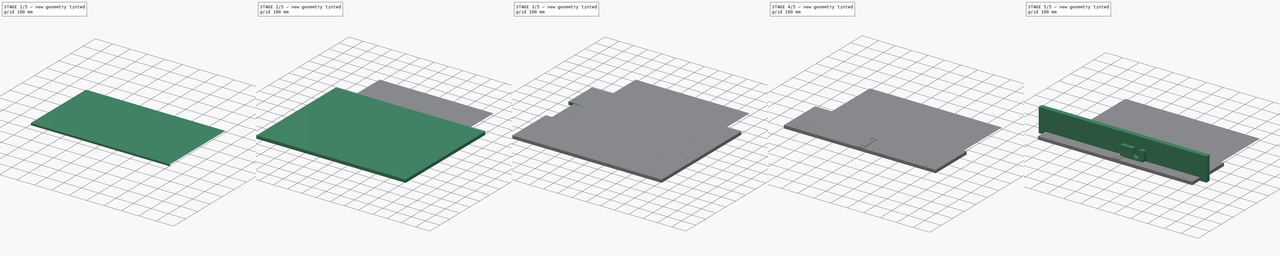
[diagram: build sequence overview — one tinted view per stage of 5, left to right]
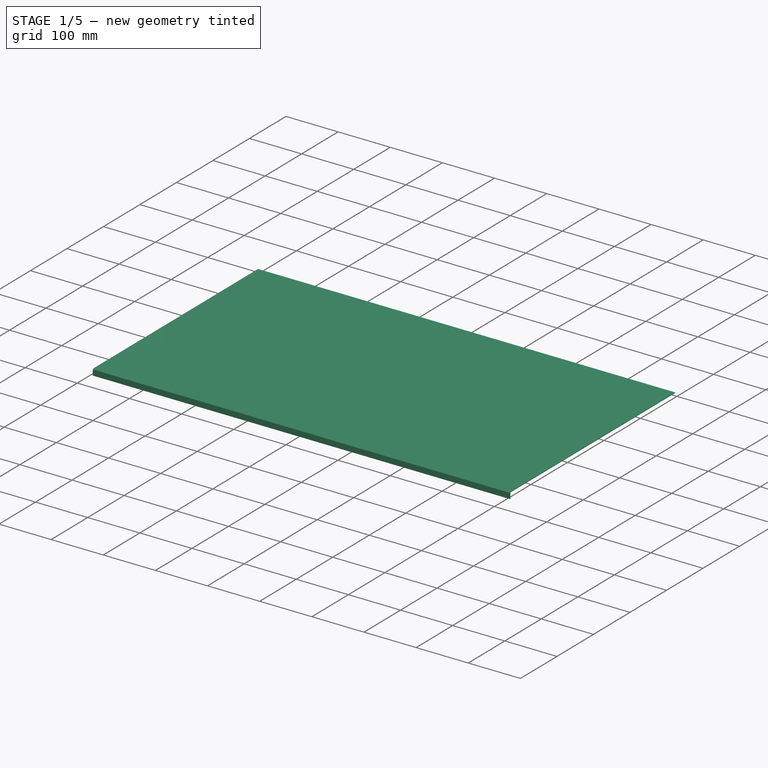
[diagram: stage 1 of 5 — iso view after this stage's code; geometry added in this stage tinted green]
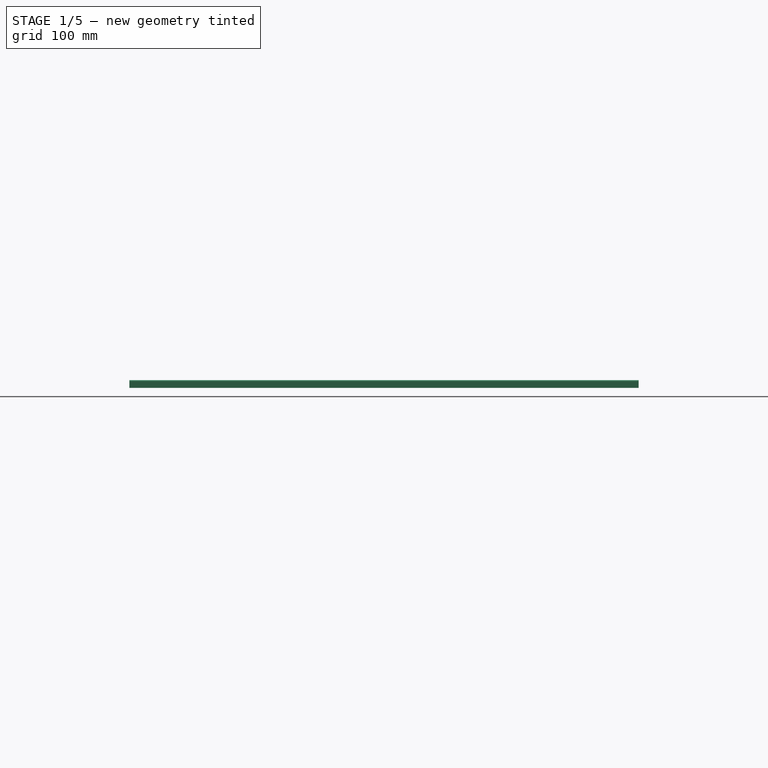
[diagram: stage 1 of 5 — front view after this stage's code; geometry added in this stage tinted green]
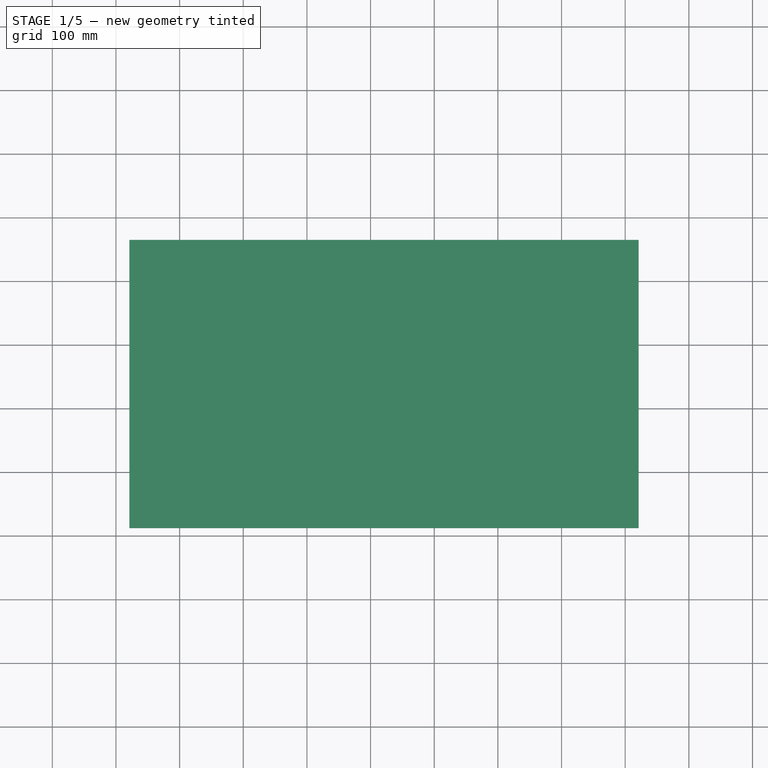
[diagram: stage 1 of 5 — top view after this stage's code; geometry added in this stage tinted green]
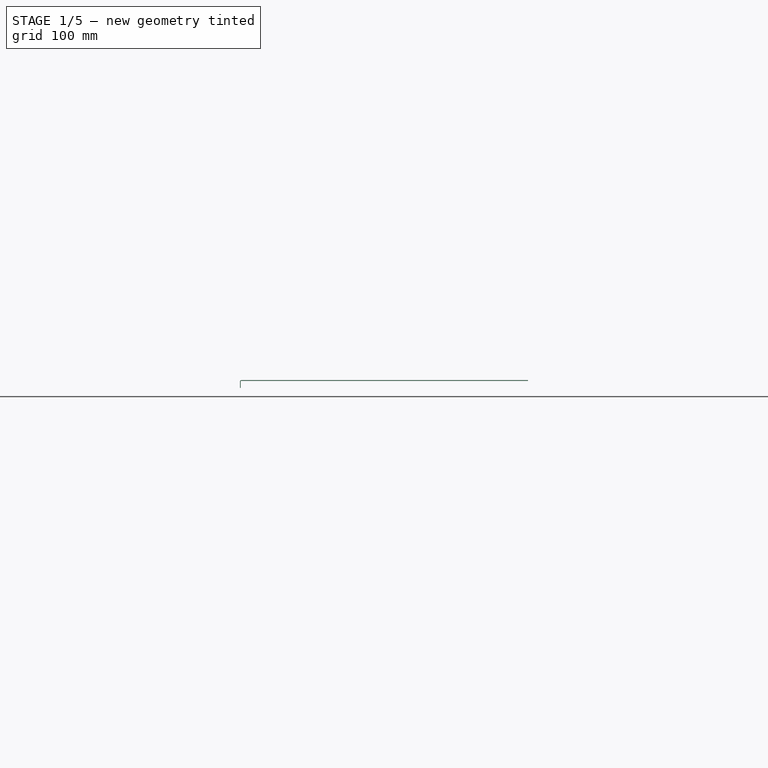
[diagram: stage 1 of 5 — right view after this stage's code; geometry added in this stage tinted green]
FCSTD DOCUMENT  (FreeCAD 0.22R37100 (Git))
Label: cutting3
License: All rights reserved
LicenseURL: http://en.wikipedia.org/wiki/All_rights_reserved
objects: App::Link×29, Sketcher::SketchObject×17, PartDesign::Body×11, PartDesign::CoordinateSystem×9, PartDesign::Pad×9, PartDesign::Mirrored×5, PartDesign::SubShapeBinder×4, PartDesign::FeaturePython×4, App::DocumentObjectGroup×3, PartDesign::Pocket×3, PartDesign::MultiTransform×2, App::FeaturePython×1, App::Part×1, Part::Part2DObjectPython×1, Part::FeaturePython×1, Part::Feature×1
note: 79 computed .brp shape members not serialized (recipe doc carries the construction recipe); baked Part::Feature solids carry a one-line shape summary decoded from their .brp
EXTERNAL_REF file=roll_75x710mm.FCStd obj=LCS_0
EXTERNAL_REF file=roll_75x710mm.FCStd obj=roll_75_sketch
EXTERNAL_REF file=roll_75x710mm.FCStd obj=roll_75
EXTERNAL_REF file=AL-Laser1030.FCStd obj=left_skew
EXTERNAL_REF file=AL-Laser1030.FCStd obj=Body
EXTERNAL_REF file=plywood_cutting_shield.FCStd obj=Local_CS
EXTERNAL_REF file=plywood_cutting_shield.FCStd obj=Body
EXTERNAL_REF file=cutting_roll.FCStd obj=Sketch001
EXTERNAL_REF file=cutting_roll.FCStd obj=center
EXTERNAL_REF file=cutting_roll.FCStd obj=Model
EXTERNAL_REF file=RS-100_R.FCStd obj=Local_CS
EXTERNAL_REF file=RS-100_R.FCStd obj=Sketch
EXTERNAL_REF file=RS-100_R.FCStd obj=Body
EXTERNAL_REF file=P204_Bearing.FCStd obj=Local_CS002
EXTERNAL_REF file=cutting_roll.FCStd obj=left_20mm
EXTERNAL_REF file=P204_Bearing.FCStd obj=Body
EXTERNAL_REF file=P204_Bearing.FCStd obj=Local_CS001
EXTERNAL_REF file=cutting_roll.FCStd obj=right_20mm
EXTERNAL_REF file=P201_Bearing.FCStd obj=Local_CS001
EXTERNAL_REF file=roll_75x710mm.FCStd obj=Local_CS001
EXTERNAL_REF file=P201_Bearing.FCStd obj=Body
EXTERNAL_REF file=roll_75x710mm.FCStd obj=Local_CS
EXTERNAL_REF file=P201_Bearing.FCStd obj=Local_CS
EXTERNAL_REF file=крепление оси станка резки подложки.FCStd obj=Sketch006
EXTERNAL_REF file=крепление оси станка резки подложки.FCStd obj=front
EXTERNAL_REF file=крепление оси станка резки подложки.FCStd obj=Body
EXTERNAL_REF file=RS-100_R.FCStd obj=Local_CS001
EXTERNAL_REF file=57BLY-0730NBB.FCStd obj=LCS_1
EXTERNAL_REF file=57BLY-0730NBB.FCStd obj=Model
EXTERNAL_REF file=AL-Laser1030.FCStd obj=begin
EXTERNAL_REF file=../../Downloads/probnik_krepezha_zazhima.FCStd obj=Local_CS
EXTERNAL_REF file=../../Downloads/probnik_krepezha_zazhima.FCStd obj=Body002
EXTERNAL_REF file=AL-Laser1030.FCStd obj=end
EXTERNAL_REF file=../../Downloads/probnik_krepezha_zazhima.FCStd obj=Local_CS005
EXTERNAL_REF file=../../Downloads/probnik_krepezha_zazhima.FCStd obj=Body001
EXTERNAL_REF file=plywood_cutting_shield.FCStd obj=Pad
EXTERNAL_REF file=P201_Bearing.FCStd obj=Sketch
EXTERNAL_REF file=GHR20.FCStd obj=Local_CS002
EXTERNAL_REF file=../../Downloads/крепление рельсы слева 1.FCStd obj=Local_CS001
EXTERNAL_REF file=../../Downloads/крепление рельсы слева 1.FCStd obj=Body
EXTERNAL_REF file=Stepper_fix2.FCStd obj=Local_CS
EXTERNAL_REF file=57BLY-0730NBB.FCStd obj=fixture_plane001
EXTERNAL_REF file=Stepper_fix2.FCStd obj=Body
EXTERNAL_REF file=HGH20CA.FCStd obj=Local_CS001
EXTERNAL_REF file=Stepper_fix2.FCStd obj=Local_CS001
EXTERNAL_REF file=HGH20CA.FCStd obj=Body
EXTERNAL_REF file=GHR20.FCStd obj=Local_CS001
EXTERNAL_REF file=HGH20CA.FCStd obj=Local_CS002
EXTERNAL_REF file=GHR20.FCStd obj=Body
EXTERNAL_REF file=GHR20.FCStd obj=Local_CS003
EXTERNAL_REF file=../../Downloads/крепление рельсы справа 1.FCStd obj=LCS_1
EXTERNAL_REF file=../../Downloads/крепление рельсы справа 1.FCStd obj=Body
EXTERNAL_REF file=../../../../mnt/share/Public/Documents/3д модели/Отрезной станок/Стол 1 нержавка.FCStd obj=Body
EXTERNAL_REF file=../../../../mnt/share/Public/Documents/3д модели/Отрезной станок/Стол 1.FCStd obj=Body

FEATURE [PartDesign::FeaturePython] Bend  # WARN: FeaturePython — macro-defined, semantics opaque (R4)
  AutoMiter = true
  BaseFeature = -> BaseBend
  BendType = 2
  LengthList = [10]
  LengthSpec = 1
  ReliefFactor = 0.7
  Suppressed = false
  UseReliefFactor = false
  angle = 90
  baseObject = -> BaseBend [Edge10]
  bendAList = [90]
  extend1 = 0
  extend2 = 0
  gap1 = 0
  gap2 = 0
  invert = false
  kfactor = 0.5
  length = 10
  maxExtendDist = 5
  minGap = 0.1
  minReliefGap = 1
  miterangle1 = 0
  miterangle2 = 0
  offset = 0
  radius = 1
  reliefType = 0
  reliefd = 1
  reliefw = 0.8
  sketchflip = false
  sketchinvert = false
  unfold = false
  expr: radius = BaseBend.radius
FEATURE [PartDesign::Body] Body011  label="table2_ss"
  Group = -> [Sketch015,BaseBend,Bend,Binder001]
  Origin = -> Origin012
  Tip = -> Bend
FEATURE [PartDesign::SubShapeBinder] Binder002
  BindCopyOnChange = 0
  BindMode = 0
  ClaimChildren = false
  Context = -> Body009 [Binder002.]
  Fuse = false
  MakeFace = true
  OffsetFill = false
  OffsetIntersection = false
  OffsetJoinType = 0
  OffsetOpenResult = false
  PartialLoad = false
  Relative = true
  Support = -> [Body010[Sketch016.]]
  _Version = 2
FEATURE [Sketcher::SketchObject] Sketch010
  AttachmentSupport = -> [XY_Plane010]
  ExternalGeometry = -> [Binder002]
  FullyConstrained = false
  MapMode = 5
  sketch-geometry (4):
    g0: LineSegment StartX=-378.908 StartY=113.432 StartZ=0 EndX=-378.908 EndY=565.012 EndZ=0
    g1: LineSegment StartX=-378.908 StartY=565.012 StartZ=0 EndX=421.092 EndY=565.012 EndZ=0
    g2: LineSegment StartX=421.092 StartY=565.012 StartZ=0 EndX=421.092 EndY=113.432 EndZ=0
    g3: LineSegment StartX=421.092 StartY=113.432 StartZ=0 EndX=-378.908 EndY=113.432 EndZ=0
  constraints (10):
    c: Coincident(g0,g1)
    c: Coincident(g1,g2)
    c: Horizontal(g1)
    c: Vertical(g0)
    c: Vertical(g2)
    c: Coincident(g3,g2)
    c: PointOnObject(g2,g-3)
    c: Coincident(g3,g0)
    c: PointOnObject(g0,g-3)
    c: DistanceX(g3,g3) = 800
FEATURE [PartDesign::FeaturePython] BaseBend001  # WARN: FeaturePython — macro-defined, semantics opaque (R4)
  BendSide = 0
  BendSketch = -> Sketch010
  MidPlane = false
  Reverse = false
  Suppressed = false
  length = 100
  radius = 1
  thickness = 1
FEATURE [PartDesign::FeaturePython] Bend001  # WARN: FeaturePython — macro-defined, semantics opaque (R4)
  AutoMiter = true
  BaseFeature = -> BaseBend001
  BendType = 2
  LengthList = [10]
  LengthSpec = 0
  ReliefFactor = 0.7
  Suppressed = false
  UseReliefFactor = false
  angle = 90
  baseObject = -> BaseBend001 [Edge12]
  bendAList = [90]
  extend1 = 0
  extend2 = 0
  gap1 = 0
  gap2 = 0
  invert = false
  kfactor = 0.5
  length = 10
  maxExtendDist = 5
  minGap = 0.1
  minReliefGap = 1
  miterangle1 = 0
  miterangle2 = 0
  offset = 0
  radius = 1
  reliefType = 0
  reliefd = 1
  reliefw = 0.8
  sketchflip = false
  sketchinvert = false
  unfold = false
  expr: radius = BaseBend001.radius
FEATURE [PartDesign::Pad] Pad009
  Direction = (0,0,1)
  Length = 18
  Length2 = 10
  Profile = -> Sketch012
  ReferenceAxis = -> Sketch012 [N_Axis]
  Suppressed = false
  Type = 0
FEATURE [PartDesign::SubShapeBinder] Binder003
  BindCopyOnChange = 0
  BindMode = 0
  ClaimChildren = true
  Context = -> Body010 [Binder003.]
  Fuse = false
  MakeFace = true
  OffsetFill = false
  OffsetIntersection = false
  OffsetJoinType = 0
  OffsetOpenResult = false
  PartialLoad = false
  Relative = true
  Support = -> [Sketch014,Sketch013,Sketch016]
  _Version = 2
FEATURE [PartDesign::Pocket] Pocket002
  BaseFeature = -> Pad009
  Direction = (0,0,-1)
  Length = 5
  Length2 = 5
  Midplane = true
  Profile = -> Binder003
  Suppressed = false
  Type = 1
FEATURE [PartDesign::Body] Body010  label="table_plywood"
  Group = -> [Sketch012,Sketch013,Sketch014,Sketch016,Pad009,Binder003,Pocket002]
  Origin = -> Origin011
  Tip = -> Pocket002
FEATURE [PartDesign::SubShapeBinder] Binder
  BindCopyOnChange = 0
  BindMode = 0
  ClaimChildren = true
  Context = -> Body009 [Binder.]
  Fuse = false
  MakeFace = true
  OffsetFill = false
  OffsetIntersection = false
  OffsetJoinType = 0
  OffsetOpenResult = false
  PartialLoad = false
  Placement = pos=(-337,460,0) rot=(0,0,1;0rad)
  Relative = true
  Support = -> [Populate]
  _Version = 2
FEATURE [PartDesign::Body] Body009  label="table1_ss"
  Group = -> [Sketch010,Binder,BaseBend001,Binder002,Bend001]
  Origin = -> Origin010
  Tip = -> Bend001
FEATURE [Part::Feature] plywood_shield001
  Placement = pos=(7e-15,-39,-3) rot=(0,0,1;3.14159rad)
  shape: bbox 800 x 203.1 x 43.1 mm, 74 faces (baked)

RESOLVED EXTERNAL PARTS (link-assembly join: the EXTERNAL_REF files above that resolve inside this repo's crawl, each included once):
---- part 57BLY-0730NBB.FCStd = doc fcstd_45d8179db589 ----
FCSTD DOCUMENT  (FreeCAD 0.20R29410 (Git))
Label: 57BLY-0730NBB
License: All rights reserved
LicenseURL: http://en.wikipedia.org/wiki/All_rights_reserved
objects: TechDraw::DrawViewDimension×11, PartDesign::CoordinateSystem×10, Sketcher::SketchObject×9, TechDraw::DrawProjGroupItem×4, PartDesign::Mirrored×3, PartDesign::Body×3, App::DocumentObjectGroup×3, PartDesign::Pad×2, PartDesign::Revolution×2, App::Link×2, App::Part×2, PartDesign::MultiTransform×1, PartDesign::Groove×1, PartDesign::Hole×1, Part::Feature×1, TechDraw::DrawSVGTemplate×1, App::FeaturePython×1, PartDesign::Pocket×1, TechDraw::DrawProjGroup×1, TechDraw::DrawViewSection×1, +1 more types
note: 41 computed .brp shape members not serialized (recipe doc carries the construction recipe); baked Part::Feature solids carry a one-line shape summary decoded from their .brp

FEATURE [Sketcher::SketchObject] Sketch
  FullyConstrained = true
  MapMode = 5
  Support = -> [XY_Plane]
  sketch-geometry (9):
    g0: LineSegment StartX=0 StartY=0 StartZ=0 EndX=28.25 EndY=0 EndZ=0
    g1: LineSegment StartX=28.25 StartY=0 StartZ=0 EndX=28.25 EndY=23.5386 EndZ=0
    g2: LineSegment StartX=23.5386 StartY=28.25 StartZ=0 EndX=0 EndY=28.25 EndZ=0
    g3: LineSegment StartX=0 StartY=28.25 StartZ=0 EndX=0 EndY=0 EndZ=0
    g4: ArcOfCircle CenterX=23.5386 CenterY=23.5386 CenterZ=0 NormalX=0 NormalY=0 NormalZ=1 AngleXU=0 Radius=4.71142 StartAngle=0 EndAngle=1.5708
    g5: GeomPoint X=28.25 Y=28.25 Z=0
    g6: Circle CenterX=23.5 CenterY=23.5 CenterZ=0 NormalX=0 NormalY=0 NormalZ=1 AngleXU=0 Radius=2.5
    g7: LineSegment StartX=0 StartY=0 StartZ=0 EndX=28.25 EndY=28.25 EndZ=0
    g8: GeomPoint X=26.8701 Y=26.8701 Z=0
  constraints (22):
    c: Coincident(g0,g1)
    c: Coincident(g2,g3)
    c: Coincident(g3,g0)
    c: Horizontal(g0)
    c: Horizontal(g2)
    c: Vertical(g1)
    c: Vertical(g3)
    c: Coincident(g0,g-1)
    c: Equal(g0,g3)
    c: PointOnObject(g5,g2)
    c: PointOnObject(g5,g1)
    c: Tangent(g2,g4) = -1.5708
    c: Tangent(g1,g4) = -1.5708
    c: Coincident(g7,g0)
    c: Coincident(g7,g5)
    c: PointOnObject(g6,g7)
    c: DistanceX(g6) = 23.5
    c: PointOnObject(g8,g4)
    c: PointOnObject(g8,g7)
    c: Distance(g0,g8) = 38
    c: DistanceX(g0) = 28.25  'width'
    c: Diameter(g6) = 5
FEATURE [PartDesign::Pad] Pad
  Direction = (0,0,1)
  Length = 4.7
  Length2 = 10
  Profile = -> Sketch
  ReferenceAxis = -> Sketch [N_Axis]
  Type = 0
FEATURE [PartDesign::Mirrored] Mirrored
  MirrorPlane = -> Sketch [V_Axis]
FEATURE [PartDesign::Mirrored] Mirrored001
  MirrorPlane = -> Sketch [H_Axis]
FEATURE [PartDesign::MultiTransform] MultiTransform
  BaseFeature = -> Pad
  Originals = -> [Pad]
  Transformations = -> [Mirrored,Mirrored001]
FEATURE [Sketcher::SketchObject] Sketch001
  FullyConstrained = true
  MapMode = 5
  Placement = pos=(0,0,0) rot=(1,0,0;1.5708rad)
  Support = -> [XZ_Plane]
  sketch-geometry (10):
    g0: LineSegment StartX=19 StartY=0 StartZ=0 EndX=28.25 EndY=0 EndZ=0
    g1: LineSegment StartX=28.25 StartY=0 StartZ=0 EndX=28.25 EndY=14.5 EndZ=0
    g2: LineSegment StartX=28.25 StartY=14.5 StartZ=0 EndX=27.5 EndY=14.5 EndZ=0
    g3: LineSegment StartX=27.5 StartY=14.5 StartZ=0 EndX=27.5 EndY=51 EndZ=0
    g4: LineSegment StartX=27.5 StartY=51 StartZ=0 EndX=28.25 EndY=51 EndZ=0
    g5: LineSegment StartX=28.25 StartY=51 StartZ=0 EndX=28.25 EndY=67 EndZ=0
    g6: LineSegment StartX=28.25 StartY=67 StartZ=0 EndX=0 EndY=67 EndZ=0
    g7: LineSegment StartX=0 StartY=67 StartZ=0 EndX=0 EndY=-1.5 EndZ=0
    g8: LineSegment StartX=19 StartY=0 StartZ=0 EndX=19 EndY=-1.5 EndZ=0
    g9: LineSegment StartX=19 StartY=-1.5 StartZ=0 EndX=0 EndY=-1.5 EndZ=0
  constraints (31):
    c: PointOnObject(g0,g-1)
    c: Coincident(g0,g1)
    c: Vertical(g1)
    c: Coincident(g1,g2)
    c: Horizontal(g2)
    c: Coincident(g2,g3)
    c: Vertical(g3)
    c: Coincident(g3,g4)
    c: Horizontal(g4)
    c: Coincident(g4,g5)
    c: Vertical(g5)
    c: Coincident(g5,g6)
    c: PointOnObject(g6,g-2)
    c: Horizontal(g6)
    c: Coincident(g6,g7)
    c: Distance(g1) = 14.5
    c: DistanceX(g2) = 27.5
    c: Distance(g3) = 36.5
    c: Vertical(g4,g1)
    c: Distance(g5) = 16
    c: Distance(g7) = 68.5  'total_height'
    c: Vertical(g8)
    c: Coincident(g9,g8)
    c: Horizontal(g9)
    c: DistanceX(g0) = 28.25
    c: Coincident(g0,g8)
    c: Distance(g9) = 19
    c: PointOnObject(g9,g-2)
    c: Coincident(g7,g9)
    c: DistanceY(g7,g-1) = 1.5  'bearing_height'
    c: Horizontal(g0)
FEATURE [PartDesign::Revolution] Revolution
  Angle = 360
  Axis = (0,-2e-16,1)
  Base = (0,0,0)
  BaseFeature = -> MultiTransform
  Profile = -> Sketch001
  ReferenceAxis = -> Sketch001 [V_Axis]
  Reversed = true
FEATURE [PartDesign::Body] Body
  Group = -> [Sketch,Pad,MultiTransform,Mirrored,Mirrored001,Sketch001,Revolution]
  Origin = -> Origin
  Tip = -> Revolution
FEATURE [Sketcher::SketchObject] Sketch002
  FullyConstrained = true
  MapMode = 5
  Support = -> [XY_Plane002]
  expr: .AttachmentOffset.Base.z = 0
  sketch-geometry (3):
    g0: LineSegment StartX=0 StartY=3.5 StartZ=0 EndX=1.93649 EndY=3.5 EndZ=0
    g1: ArcOfCircle CenterX=0 CenterY=0 CenterZ=0 NormalX=0 NormalY=0 NormalZ=1 AngleXU=0 Radius=4 StartAngle=4.71239 EndAngle=7.34862
    g2: LineSegment StartX=-7e-16 StartY=-4 StartZ=0 EndX=0 EndY=3.5 EndZ=0
  constraints (9):
    c: PointOnObject(g0,g-2)
    c: Horizontal(g0)
    c: Coincident(g1,g-1)
    c: PointOnObject(g1,g-2)
    c: Coincident(g1,g0)
    c: Coincident(g2,g1)
    c: Coincident(g2,g0)
    c: Distance(g2) = 7.5
    c: Diameter(g1) = 8
FEATURE [PartDesign::Pad] Pad001
  Direction = (0,0,1)
  Length = 21
  Length2 = 10
  Profile = -> Sketch002
  ReferenceAxis = -> Sketch002 [N_Axis]
  Reversed = true
  Type = 0
FEATURE [PartDesign::Mirrored] Mirrored002
  BaseFeature = -> Pad001
  MirrorPlane = -> Sketch002 [V_Axis]
  Originals = -> [Pad001]
FEATURE [Sketcher::SketchObject] Sketch003
  FullyConstrained = true
  MapMode = 5
  Placement = pos=(0,0,0) rot=(0.57735,0.57735,0.57735;2.0944rad)
  Support = -> [YZ_Plane002]
  expr: Constraints[8] = -Pad001.Length
  sketch-geometry (3):
    g0: LineSegment StartX=3.5 StartY=-21 StartZ=0 EndX=4 EndY=-20.5 EndZ=0
    g1: LineSegment StartX=4 StartY=-20.5 StartZ=0 EndX=4 EndY=-21 EndZ=0
    g2: LineSegment StartX=4 StartY=-21 StartZ=0 EndX=3.5 EndY=-21 EndZ=0
  constraints (9):
    c: Coincident(g0,g1)
    c: Vertical(g1)
    c: Coincident(g1,g2)
    c: Coincident(g2,g0)
    c: Horizontal(g2)
    c: DistanceX(g0) = 3.5
    c: DistanceX(g0) = 4
    c: Equal(g2,g1)
    c: DistanceY(g1) = -21
FEATURE [PartDesign::Groove] Groove
  Angle = 360
  Axis = (-2e-16,3e-16,1)
  Base = (0,0,0)
  BaseFeature = -> Mirrored002
  Profile = -> Sketch003
  ReferenceAxis = -> Sketch003 [V_Axis]
FEATURE [PartDesign::Body] Body001  label="axis"
  Group = -> [Sketch002,Pad001,Mirrored002,Sketch003,Groove]
  Origin = -> Origin002
  Placement = pos=(0,0,-1.5) rot=(0,0,1;0rad)
  Tip = -> Groove
  expr: .Placement.Base.z = -Sketch001.Constraints.bearing_height
FEATURE [PartDesign::CoordinateSystem] fix_center
  AttacherType = Attacher::AttachEngine3D
  MapMode = 2
  Support = -> [XY_Plane001]
FEATURE [PartDesign::CoordinateSystem] LCS_0  label="end"
  AttacherType = Attacher::AttachEngine3D
  AttachmentOffset = pos=(0,0,-13) rot=(0.707107,-0.707107,0;3.14159rad)
  MapMode = 5
  Placement = pos=(0,0,-13) rot=(0.707107,-0.707107,0;3.14159rad)
  Support = -> [XY_Plane003]
  expr: .AttachmentOffset.Base.z = -Sketch005.Constraints.axis_fuxture_cyl_length
FEATURE [Sketcher::SketchObject] Sketch005
  FullyConstrained = true
  MapMode = 5
  Placement = pos=(0,0,0) rot=(1,0,0;1.5708rad)
  Support = -> [XZ_Plane003]
  sketch-geometry (12):
    g0: LineSegment StartX=0 StartY=22.5 StartZ=0 EndX=6 EndY=22.5 EndZ=0
    g1: LineSegment StartX=6 StartY=22.5 StartZ=0 EndX=6 EndY=5 EndZ=0
    g2: LineSegment StartX=6 StartY=5 StartZ=0 EndX=10.5 EndY=5 EndZ=0
    g3: LineSegment StartX=10.5 StartY=5 StartZ=0 EndX=10.5 EndY=3 EndZ=0
    g4: LineSegment StartX=10.5 StartY=3 StartZ=0 EndX=16 EndY=3 EndZ=0
    g5: LineSegment StartX=16 StartY=3 StartZ=0 EndX=16 EndY=0 EndZ=0
    g6: LineSegment StartX=16 StartY=0 StartZ=0 EndX=10.5 EndY=0 EndZ=0
    g7: LineSegment StartX=10.5 StartY=0 StartZ=0 EndX=10.5 EndY=-13 EndZ=0
    g8: LineSegment StartX=10.5 StartY=-13 StartZ=0 EndX=4 EndY=-13 EndZ=0
    g9: LineSegment StartX=4 StartY=-13 StartZ=0 EndX=4 EndY=3 EndZ=0
    g10: LineSegment StartX=4 StartY=3 StartZ=0 EndX=0 EndY=3 EndZ=0
    g11: LineSegment StartX=0 StartY=3 StartZ=0 EndX=0 EndY=22.5 EndZ=0
  constraints (37):
    c: Horizontal(g0)
    c: Coincident(g0,g1)
    c: Vertical(g1)
    c: Coincident(g1,g2)
    c: Horizontal(g2)
    c: Coincident(g2,g3)
    c: Vertical(g3)
    c: Coincident(g3,g4)
    c: Coincident(g4,g5)
    c: Vertical(g5)
    c: Coincident(g5,g6)
    c: Horizontal(g6)
    c: Coincident(g6,g7)
    c: Vertical(g7)
    c: Coincident(g7,g8)
    c: Horizontal(g8)
    c: Coincident(g8,g9)
    c: Vertical(g9)
    c: Horizontal(g4)
    c: DistanceX(g0) = 6
    c: DistanceX(g2) = 10.5
    c: DistanceX(g4) = 16
    c: DistanceX(g7) = 10.5
    c: DistanceX(g8) = 4
    c: DistanceY(g3,g3) = 2
    c: DistanceY(g3,g0) = 19.5
    c: DistanceY(g5,g5) = 3  'shield_length'
    c: Distance(g7,g6) = 13  'axis_fuxture_cyl_length'
    c: Horizontal(g-1,g6)
    c: DistanceY(g0) = 22.5  'shield_to_end'
    c: PointOnObject(g10,g-2)
    c: Horizontal(g10)
    c: Coincident(g11,g10)
    c: Vertical(g11)
    c: DistanceY(g8,g10) = 16  'axis_length'
    c: Coincident(g9,g10)
    c: Coincident(g11,g0)
FEATURE [PartDesign::Revolution] Revolution001
  Angle = 360
  Axis = (0,-2e-16,1)
  Base = (0,0,0)
  Placement = pos=(0,0,0) rot=(1,0,0;1.5708rad)
  Profile = -> Sketch005
  ReferenceAxis = -> Sketch005 [V_Axis]
  Reversed = true
FEATURE [Sketcher::SketchObject] Sketch006
  AttachmentOffset = pos=(0,-6,20) rot=(0,0,1;0rad)
  FullyConstrained = true
  MapMode = 5
  Placement = pos=(0,-20,-6) rot=(1,0,0;1.5708rad)
  Support = -> [XZ_Plane003]
  expr: .AttachmentOffset.Base.y = -Sketch005.Constraints.axis_fuxture_cyl_length + 7mm
  sketch-geometry (1):
    g0: Circle CenterX=0 CenterY=0 CenterZ=0 NormalX=0 NormalY=0 NormalZ=1 AngleXU=0 Radius=2
  constraints (2):
    c: Coincident(g0,g-1)
    c: Diameter(g0) = 4
FEATURE [PartDesign::Hole] Hole
  BaseFeature = -> Revolution001
  CustomThreadClearance = 0
  Depth = 117.943
  DepthType = 1
  Diameter = 4.2
  DrillForDepth = false
  DrillPoint = 1
  DrillPointAngle = 117
  HoleCutCountersinkAngle = 90
  HoleCutCustomValues = false
  HoleCutDepth = 0
  HoleCutDiameter = 6.1
  HoleCutType = 0
  ModelThread = false
  Placement = pos=(0,0,0) rot=(1,0,0;1.5708rad)
  Profile = -> Sketch006
  Tapered = true
  TaperedAngle = 90
  ThreadClass = 0
  ThreadDepth = 117.943
  ThreadDepthType = 0
  ThreadDirection = 0
  ThreadFit = 0
  ThreadSize = 13
  ThreadType = 1
  Threaded = true
  UseCustomThreadClearance = false
FEATURE [Part::Feature] Part__Feature  label="57HS56-2804A08-D21"
  Placement = pos=(0,0,-17) rot=(0,-1,0;1.5708rad)
  shape: bbox 57 x 56 x 78.5 mm, 1908 faces, 69 solids (baked)
FEATURE [Sketcher::SketchObject] Sketch010
  FullyConstrained = false
  MapMode = 5
  Placement = pos=(0,0,0) rot=(1,0,0;1.5708rad)
  Support = -> [XZ_Plane003]
  sketch-geometry (6):
    g0: LineSegment StartX=9.5 StartY=-0.0613249 StartZ=0 EndX=9.5 EndY=0 EndZ=0
    g1: LineSegment StartX=9.5 StartY=0 StartZ=0 EndX=9.5 EndY=0.0613249 EndZ=0
    g2: LineSegment StartX=9.5 StartY=0.0613249 StartZ=0 EndX=10 EndY=0.35 EndZ=0
    g3: LineSegment StartX=10 StartY=0.35 StartZ=0 EndX=10 EndY=0 EndZ=0
    g4: LineSegment StartX=10 StartY=0 StartZ=0 EndX=10 EndY=-0.35 EndZ=0
    g5: LineSegment StartX=10 StartY=-0.35 StartZ=0 EndX=9.5 EndY=-0.0613249 EndZ=0
  constraints (17):
    c: PointOnObject(g0,g-1)
    c: Vertical(g0)
    c: Coincident(g0,g1)
    c: Vertical(g1)
    c: Coincident(g1,g2)
    c: Coincident(g2,g3)
    c: PointOnObject(g3,g-1)
    c: Vertical(g3)
    c: Coincident(g3,g4)
    c: Vertical(g4)
    c: Coincident(g4,g5)
    c: Coincident(g5,g0)
    c: Equal(g0,g1)
    c: Equal(g4,g3)
    c: DistanceX(g3) = 10
    c: DistanceX(g0,g3) = 0.5
    c: Angle(g-1,g5) = 2.61799
FEATURE [Sketcher::SketchObject] Sketch011
  FullyConstrained = true
  MapMode = 5
  Support = -> [XY_Plane003]
  sketch-geometry (1):
    g0: Circle CenterX=0 CenterY=0 CenterZ=0 NormalX=0 NormalY=0 NormalZ=1 AngleXU=0 Radius=10
  constraints (2):
    c: Coincident(g0,g-1)
    c: Diameter(g0) = 20
FEATURE [TechDraw::DrawSVGTemplate] Template
  EditableTexts = Designed_by_Name=Designed by Name; Drawing_number=Drawing number; FC-Date=Date; FC-SC=Scale; FC-SH=Sheet; FC-Title=Title; Subtitle=Subtitle; Weight=Weight
  Height = 210
  Orientation = 1
  Width = 297
FEATURE [PartDesign::CoordinateSystem] LCS_Origin
  AttacherType = Attacher::AttachEngine3D
  MapMode = 2
  Support = -> [X_Axis005]
FEATURE [App::DocumentObjectGroup] Constraints
FEATURE [App::FeaturePython] Variables  # WARN: FeaturePython — macro-defined, semantics opaque (R4)
  Type = App::PropertyContainer
FEATURE [App::DocumentObjectGroup] Configurations
FEATURE [App::Link] _7BLY_0730NBB  label="57BLY-0730NBB001"
  AssemblyType = Part::Link
  AttachedBy = #fix_center
  AttachedTo = Parent Assembly#LCS_Origin
  LinkedObject = -> Part
  SolverId = Asm4EE
  expr: Placement = LCS_Origin.Placement * AttachmentOffset * fix_center.Placement ^ -1
FEATURE [PartDesign::CoordinateSystem] fixture_plane
  AttacherType = Attacher::AttachEngine3D
  AttachmentOffset = pos=(0,0,0) rot=(1,0,0;3.14159rad)
  MapMode = 5
  Placement = pos=(0,0,0) rot=(1,0,0;3.14159rad)
  Support = -> [XY_Plane001]
FEATURE [PartDesign::CoordinateSystem] axis_root
  AttacherType = Attacher::AttachEngine3D
  AttachmentOffset = pos=(0,0,-1.5) rot=(1,0,0;3.14159rad)
  MapMode = 5
  Placement = pos=(0,0,-1.5) rot=(1,0,0;3.14159rad)
  Support = -> [XY_Plane001]
  expr: .AttachmentOffset.Base.z = -Sketch001.Constraints.bearing_height
FEATURE [PartDesign::CoordinateSystem] axis_end
  AttacherType = Attacher::AttachEngine3D
  AttachmentOffset = pos=(0,0,21) rot=(0,0,1;0rad)
  MapMode = 2
  Placement = pos=(0,-2.6e-15,-22.5) rot=(1,0,0;3.14159rad)
  Support = -> [axis_root]
  expr: .AttachmentOffset.Base.z = Pad001.Length
FEATURE [App::Part] Part  label="57BLY-0730NBB"
  Group = -> [Body,Body001,fix_center,fixture_plane,axis_root,axis_end]
  Origin = -> Origin001
FEATURE [PartDesign::CoordinateSystem] Local_CS
  AttacherType = Attacher::AttachEngine3D
  AttachmentOffset = pos=(0,0,3) rot=(0,0,1;0rad)
  MapMode = 5
  Placement = pos=(0,0,3) rot=(0,0,1;0rad)
  Support = -> [XY_Plane003]
  expr: .AttachmentOffset.Base.z = Sketch005.Constraints.axis_length - Sketch005.Constraints.axis_fuxture_cyl_length
FEATURE [App::Link] cap001
  AssemblyType = Part::Link
  AttachedBy = #Local_CS
  AttachedTo = _7BLY_0730NBB#axis_end
  LinkPlacement = pos=(0,-2.2e-15,-19.5) rot=(1,0,0;3.14159rad)
  LinkedObject = -> cap
  Placement = pos=(0,-2.2e-15,-19.5) rot=(1,0,0;3.14159rad)
  SolverId = Asm4EE
  expr: Placement = _7BLY_0730NBB.Placement * axis_end.Placement * AttachmentOffset * Local_CS.Placement ^ -1
FEATURE [PartDesign::CoordinateSystem] fixture_plane001
  AttacherType = Attacher::AttachEngine3D
  MapMode = 5
  Placement = pos=(0,0,0) rot=(1,0,0;3.14159rad)
  Support = -> [fixture_plane]
FEATURE [PartDesign::CoordinateSystem] disk_fixture
  AttacherType = Attacher::AttachEngine3D
  AttachmentOffset = pos=(0,0,3) rot=(0,0,1;0rad)
  MapMode = 5
  Placement = pos=(0,0,3) rot=(0,0,1;0rad)
  Support = -> [XY_Plane003]
  expr: .AttachmentOffset.Base.z = Sketch005.Constraints.shield_length
FEATURE [PartDesign::CoordinateSystem] LCS_1
  AttacherType = Attacher::AttachEngine3D
  AttachmentOffset = pos=(0,-2.9e-15,-25.5) rot=(1,0,0;3.14159rad)
  MapMode = 5
  Placement = pos=(0,-2.9e-15,-22.5) rot=(1,0,0;3.14159rad)
  Support = -> [disk_fixture]
  expr: AttachmentOffset = cap001.Placement * disk_fixture.Placement * disk_fixture.Placement
FEATURE [App::Part] Model
  AssemblyType = Part::Link
  Group = -> [LCS_Origin,Constraints,Variables,Configurations,_7BLY_0730NBB,cap001,fixture_plane001,LCS_1]
  Origin = -> Origin005
  Type = Assembly
FEATURE [Sketcher::SketchObject] Sketch012
  FullyConstrained = true
  MapMode = 5
  Placement = pos=(0,0,0) rot=(1,0,0;1.5708rad)
  Support = -> [XZ_Plane003]
  expr: .Constraints.axis_fuxture_cyl_length = Sketch005.Constraints.axis_fuxture_cyl_length
  expr: .Constraints.shield_length = Sketch005.Constraints.shield_length
  expr: Constraints[22] = Sketch005.Constraints[19]
  expr: Constraints[23] = Sketch005.Constraints[20]
  expr: Constraints[24] = Sketch005.Constraints[21]
  expr: Constraints[25] = Sketch005.Constraints[22]
  expr: Constraints[26] = Sketch005.Constraints[23]
  expr: Constraints[27] = Sketch005.Constraints[24]
  expr: Constraints[28] = Sketch005.Constraints[25]
  sketch-geometry (12):
    g0: Circle CenterX=0 CenterY=18 CenterZ=0 NormalX=0 NormalY=0 NormalZ=1 AngleXU=0 Radius=2
    g1: LineSegment StartX=4 StartY=22.5 StartZ=0 EndX=6 EndY=22.5 EndZ=0
    g2: LineSegment StartX=6 StartY=22.5 StartZ=0 EndX=6 EndY=5 EndZ=0
    g3: LineSegment StartX=6 StartY=5 StartZ=0 EndX=10.5 EndY=5 EndZ=0
    g4: LineSegment StartX=10.5 StartY=5 StartZ=0 EndX=10.5 EndY=3 EndZ=0
    g5: LineSegment StartX=10.5 StartY=3 StartZ=0 EndX=16 EndY=3 EndZ=0
    g6: LineSegment StartX=16 StartY=3 StartZ=0 EndX=16 EndY=0 EndZ=0
    g7: LineSegment StartX=16 StartY=0 StartZ=0 EndX=10.5 EndY=0 EndZ=0
    g8: LineSegment StartX=10.5 StartY=0 StartZ=0 EndX=10.5 EndY=-13 EndZ=0
    g9: LineSegment StartX=10.5 StartY=-13 StartZ=0 EndX=4 EndY=-13 EndZ=0
    g10: LineSegment StartX=4 StartY=-13 StartZ=0 EndX=4 EndY=22.5 EndZ=0
    g11: GeomPoint X=0 Y=16 Z=0
  constraints (36):
    c: PointOnObject(g0,g-2)
    c: Diameter(g0) = 4
    c: Horizontal(g1)
    c: Coincident(g1,g2)
    c: Vertical(g2)
    c: Coincident(g2,g3)
    c: Horizontal(g3)
    c: Coincident(g3,g4)
    c: Vertical(g4)
    c: Coincident(g4,g5)
    c: Coincident(g5,g6)
    c: Vertical(g6)
    c: Coincident(g6,g7)
    c: Horizontal(g7)
    c: Coincident(g7,g8)
    c: Vertical(g8)
    c: Coincident(g8,g9)
    c: Horizontal(g9)
    c: Coincident(g9,g10)
    c: Vertical(g10)
    c: Coincident(g1,g10)
    c: Horizontal(g5)
    c: DistanceX(g1) = 6
    c: DistanceX(g3) = 10.5
    c: DistanceX(g5) = 16
    c: DistanceX(g8) = 10.5
    c: DistanceX(g9) = 4
    c: DistanceY(g4,g4) = 2
    c: DistanceY(g4,g1) = 19.5
    c: DistanceY(g6,g6) = 3  'shield_length'
    c: Distance(g8,g7) = 13  'axis_fuxture_cyl_length'
    c: Horizontal(g-1,g7)
    c: DistanceY(g1) = 22.5  'shield_to_end'
    c: PointOnObject(g11,g-2)
    c: PointOnObject(g11,g0)
    c: DistanceY(g2,g11) = 11
FEATURE [PartDesign::Pocket] Pocket
  BaseFeature = -> Hole
  Direction = (0,1,2e-16)
  Length = 5
  Length2 = 5
  Midplane = true
  Placement = pos=(0,0,0) rot=(1,0,0;1.5708rad)
  Profile = -> Sketch012
  ReferenceAxis = -> Sketch012 [N_Axis]
  Type = 1
FEATURE [PartDesign::Body] cap
  Group = -> [LCS_0,Sketch005,Revolution001,Sketch006,Hole,Sketch010,Sketch011,Local_CS,disk_fixture,Sketch012,Pocket]
  Origin = -> Origin003
  Tip = -> Pocket
FEATURE [TechDraw::DrawProjGroupItem] ProjItem  label="Front"
  CoarseView = false
  Direction = (0,-1,0)
  Focus = 100
  HardHidden = false
  IsoCount = 0
  IsoHidden = false
  IsoVisible = false
  LockPosition = true
  Perspective = false
  Rotation = 0
  RotationVector = (1,0,0)
  ScaleType = 2
  SeamHidden = false
  SeamVisible = true
  SmoothHidden = false
  SmoothVisible = true
  Source = -> [cap]
  Type = 0
  X = 0
  XDirection = (1,0,0)
  Y = 0
FEATURE [TechDraw::DrawProjGroupItem] ProjItem001  label="Bottom"
  CoarseView = false
  Direction = (0,0,-1)
  Focus = 100
  HardHidden = false
  IsoCount = 0
  IsoHidden = false
  IsoVisible = false
  LockPosition = false
  Perspective = false
  Rotation = 0
  RotationVector = (1,0,0)
  ScaleType = 2
  SeamHidden = false
  SeamVisible = true
  SmoothHidden = false
  SmoothVisible = true
  Source = -> [cap]
  Type = 5
  X = 0
  XDirection = (1,0,0)
  Y = 50.5
FEATURE [TechDraw::DrawProjGroupItem] ProjItem002  label="Top"
  CoarseView = false
  Direction = (0,0,1)
  Focus = 100
  HardHidden = false
  IsoCount = 0
  IsoHidden = false
  IsoVisible = false
  LockPosition = false
  Perspective = false
  Rotation = 0
  RotationVector = (1,0,0)
  ScaleType = 2
  SeamHidden = false
  SeamVisible = true
  SmoothHidden = false
  SmoothVisible = true
  Source = -> [cap]
  Type = 4
  X = 0
  XDirection = (1,0,0)
  Y = -50.5
FEATURE [TechDraw::DrawProjGroupItem] ProjItem003  label="Left"
  CoarseView = false
  Direction = (-1,-1e-16,0)
  Focus = 100
  HardHidden = false
  IsoCount = 0
  IsoHidden = false
  IsoVisible = false
  LockPosition = false
  Perspective = false
  Rotation = 0
  RotationVector = (1,0,0)
  ScaleType = 2
  SeamHidden = false
  SeamVisible = true
  SmoothHidden = false
  SmoothVisible = true
  Source = -> [cap]
  Type = 1
  X = 47
  XDirection = (1e-16,-1,0)
  Y = 0
FEATURE [TechDraw::DrawProjGroup] ProjGroup
  Anchor = -> ProjItem
  AutoDistribute = true
  LockPosition = false
  ProjectionType = 0
  Rotation = 0
  ScaleType = 0
  Source = -> [cap]
  Views = -> [ProjItem,ProjItem001,ProjItem002,ProjItem003]
  X = 80
  Y = 130
  spacingX = 15
  spacingY = 15
FEATURE [App::DocumentObjectGroup] Parts
  Group = -> [Part,cap]
FEATURE [TechDraw::DrawViewDimension] Dimension
  AngleOverride = false
  Arbitrary = false
  ArbitraryTolerances = false
  EqualTolerance = true
  ExtensionAngle = 0
  FormatSpec = %.2w
  FormatSpecOverTolerance = %+.2w
  FormatSpecUnderTolerance = %+.2w
  Inverted = false
  LineAngle = 0
  LockPosition = false
  MeasureType = 1
  OverTolerance = 0
  References2D = -> [ProjItem003]
  Rotation = 0
  ScaleType = 0
  TheoreticalExact = false
  Type = 2
  UnderTolerance = 0
  X = 28.2563
  Y = 16.3611
FEATURE [TechDraw::DrawViewDimension] Dimension001
  AngleOverride = false
  Arbitrary = false
  ArbitraryTolerances = false
  EqualTolerance = true
  ExtensionAngle = 0
  FormatSpec = %.2w
  FormatSpecOverTolerance = %+.2w
  FormatSpecUnderTolerance = %+.2w
  Inverted = false
  LineAngle = 0
  LockPosition = false
  MeasureType = 1
  OverTolerance = 0
  References2D = -> [ProjItem003]
  Rotation = 0
  ScaleType = 0
  TheoreticalExact = false
  Type = 2
  UnderTolerance = 0
  X = -15.6179
  Y = 10.5677
FEATURE [TechDraw::DrawViewDimension] Dimension002
  AngleOverride = false
  Arbitrary = false
  ArbitraryTolerances = false
  EqualTolerance = true
  ExtensionAngle = 0
  FormatSpec = %.2w
  FormatSpecOverTolerance = %+.2w
  FormatSpecUnderTolerance = %+.2w
  Inverted = false
  LineAngle = 0
  LockPosition = false
  MeasureType = 1
  OverTolerance = 0
  References2D = -> [ProjItem003]
  Rotation = 0
  ScaleType = 0
  TheoreticalExact = false
  Type = 2
  UnderTolerance = 0
  X = -25.1076
  Y = -4.04958
FEATURE [TechDraw::DrawViewDimension] Dimension003
  AngleOverride = false
  Arbitrary = false
  ArbitraryTolerances = false
  EqualTolerance = true
  ExtensionAngle = 0
  FormatSpec = %.2w
  FormatSpecOverTolerance = %+.2w
  FormatSpecUnderTolerance = %+.2w
  Inverted = false
  LineAngle = 0
  LockPosition = false
  MeasureType = 1
  OverTolerance = 0
  References2D = -> [ProjItem003]
  Rotation = 0
  ScaleType = 0
  TheoreticalExact = false
  Type = 2
  UnderTolerance = 0
  X = 26.4789
  Y = -10.5468
FEATURE [TechDraw::DrawViewDimension] Dimension004
  AngleOverride = false
  Arbitrary = false
  ArbitraryTolerances = false
  EqualTolerance = true
  ExtensionAngle = 0
  FormatSpec = %.2w
  FormatSpecOverTolerance = %+.2w
  FormatSpecUnderTolerance = %+.2w
  Inverted = false
  LineAngle = 0
  LockPosition = false
  MeasureType = 1
  OverTolerance = 0
  References2D = -> [ProjItem]
  Rotation = 0
  ScaleType = 0
  TheoreticalExact = false
  Type = 5
  UnderTolerance = 0
  X = 23.5054
  Y = 18.0041
FEATURE [TechDraw::DrawViewDimension] Dimension005
  AngleOverride = false
  Arbitrary = true
  ArbitraryTolerances = false
  EqualTolerance = true
  ExtensionAngle = 0
  FormatSpec = M5
  FormatSpecOverTolerance = %+.2w
  FormatSpecUnderTolerance = %+.2w
  Inverted = false
  LineAngle = 0
  LockPosition = false
  MeasureType = 1
  OverTolerance = 0
  References2D = -> [ProjItem]
  Rotation = 0
  ScaleType = 0
  TheoreticalExact = false
  Type = 5
  UnderTolerance = 0
  X = 14.9531
  Y = -5.91701
FEATURE [TechDraw::DrawViewDimension] Dimension006
  AngleOverride = false
  Arbitrary = false
  ArbitraryTolerances = false
  EqualTolerance = true
  ExtensionAngle = 0
  FormatSpec = %.2w
  FormatSpecOverTolerance = %+.2w
  FormatSpecUnderTolerance = %+.2w
  Inverted = false
  LineAngle = 0
  LockPosition = false
  MeasureType = 1
  OverTolerance = 0
  References2D = -> [ProjItem]
  Rotation = 0
  ScaleType = 0
  TheoreticalExact = false
  Type = 2
  UnderTolerance = 0
  X = -25.4044
  Y = 10.1322
FEATURE [TechDraw::DrawViewDimension] Dimension007
  AngleOverride = false
  Arbitrary = false
  ArbitraryTolerances = false
  EqualTolerance = true
  ExtensionAngle = 0
  FormatSpec = %.2w
  FormatSpecOverTolerance = %+.2w
  FormatSpecUnderTolerance = %+.2w
  Inverted = false
  LineAngle = 0
  LockPosition = false
  MeasureType = 1
  OverTolerance = 0
  References2D = -> [ProjItem]
  Rotation = 0
  ScaleType = 0
  TheoreticalExact = false
  Type = 2
  UnderTolerance = 0
  X = -28.0992
  Y = -10.4709
FEATURE [TechDraw::DrawViewDimension] Dimension008
  AngleOverride = false
  Arbitrary = true
  ArbitraryTolerances = false
  EqualTolerance = true
  ExtensionAngle = 0
  FormatSpec = M12
  FormatSpecOverTolerance = %+.2w
  FormatSpecUnderTolerance = %+.2w
  Inverted = false
  LineAngle = 0
  LockPosition = false
  MeasureType = 1
  OverTolerance = 0
  References2D = -> [ProjItem]
  Rotation = 0
  ScaleType = 0
  TheoreticalExact = false
  Type = 1
  UnderTolerance = 0
  X = -0.041045
  Y = 25.8866
FEATURE [TechDraw::DrawViewSection] SectionView  label="Section  - "
  BaseView = -> ProjItem001
  CoarseView = false
  CutSurfaceDisplay = 2
  Direction = (0,-1,0)
  FileGeomPattern = <path>
  FileHatchPattern = <path>
  Focus = 100
  FuseBeforeCut = false
  HardHidden = false
  HatchScale = 1
  IsoCount = 0
  IsoHidden = false
  IsoVisible = false
  LockPosition = false
  NameGeomPattern = Diamond
  Perspective = false
  Rotation = 0
  ScaleType = 2
  SeamHidden = false
  SeamVisible = true
  SectionDirection = 3
  SectionNormal = (0,-1,0)
  SectionOrigin = (0.04,0,4.74)
  SmoothHidden = false
  SmoothVisible = true
  Source = -> [cap]
  X = 184
  XDirection = (1,0,0)
  Y = 130
FEATURE [TechDraw::DrawViewDimension] Dimension009
  AngleOverride = false
  Arbitrary = false
  ArbitraryTolerances = false
  EqualTolerance = true
  ExtensionAngle = 0
  FormatSpec = %.2w
  FormatSpecOverTolerance = %+.2w
  FormatSpecUnderTolerance = %+.2w
  Inverted = false
  LineAngle = 0
  LockPosition = false
  MeasureType = 1
  OverTolerance = 0
  References2D = -> [SectionView]
  Rotation = 0
  ScaleType = 0
  TheoreticalExact = false
  Type = 2
  UnderTolerance = 0
  X = 38.487
  Y = -5
FEATURE [TechDraw::DrawViewDimension] Dimension010
  AngleOverride = false
  Arbitrary = false
  ArbitraryTolerances = false
  EqualTolerance = true
  ExtensionAngle = 0
  FormatSpec = %.2w
  FormatSpecOverTolerance = %+.2w
  FormatSpecUnderTolerance = %+.2w
  Inverted = false
  LineAngle = 0
  LockPosition = false
  MeasureType = 1
  OverTolerance = 0
  References2D = -> [SectionView]
  Rotation = 0
  ScaleType = 0
  TheoreticalExact = false
  Type = 1
  UnderTolerance = 0
  X = 8.96038
  Y = -30
FEATURE [TechDraw::DrawPage] Page
  KeepUpdated = false
  NextBalloonIndex = 3
  ProjectionType = 0
  Template = -> Template
  Views = -> [ProjGroup,Dimension,Dimension001,Dimension002,Dimension003,Dimension004,Dimension005,Dimension006,Dimension007,Dimension008,SectionView,Dimension009,Dimension010]
note: 2 file-system paths scrubbed to <path> (originals preserved in the JSON sidecar)
---- part AL-Laser1030.FCStd = doc fcstd_245c15d2edbe ----
FCSTD DOCUMENT  (FreeCAD 0.21R32532 (Git))
Label: AL-Laser1030
License: All rights reserved
LicenseURL: http://en.wikipedia.org/wiki/All_rights_reserved
objects: PartDesign::CoordinateSystem×6, Sketcher::SketchObject×1, PartDesign::Pad×1, PartDesign::Mirrored×1, PartDesign::Body×1
note: 11 computed .brp shape members not serialized (recipe doc carries the construction recipe); baked Part::Feature solids carry a one-line shape summary decoded from their .brp

FEATURE [Sketcher::SketchObject] Sketch
  FullyConstrained = true
  MapMode = 5
  Placement = pos=(0,0,0) rot=(1,0,0;1.5708rad)
  Support = -> [XZ_Plane]
  sketch-geometry (10):
    g0: LineSegment StartX=0 StartY=0 StartZ=0 EndX=5 EndY=0 EndZ=0
    g1: LineSegment StartX=5 StartY=0 StartZ=0 EndX=5 EndY=13 EndZ=0
    g2: LineSegment StartX=5 StartY=13 StartZ=0 EndX=0.288833 EndY=29.7811 EndZ=0
    g3: LineSegment StartX=0.481389 StartY=21.9712 StartZ=0 EndX=3 EndY=13 EndZ=0
    g4: LineSegment StartX=3 StartY=13 StartZ=0 EndX=3 EndY=2 EndZ=0
    g5: LineSegment StartX=3 StartY=2 StartZ=0 EndX=0 EndY=2 EndZ=0
    g6: LineSegment StartX=0 StartY=2 StartZ=0 EndX=0 EndY=0 EndZ=0
    g7: LineSegment StartX=0 StartY=22.3361 StartZ=0 EndX=0 EndY=30 EndZ=0
    g8: ArcOfCircle CenterX=0 CenterY=21.8361 CenterZ=0 NormalX=0 NormalY=0 NormalZ=1 AngleXU=0 Radius=0.5 StartAngle=0.273697 EndAngle=1.5708
    g9: ArcOfCircle CenterX=0 CenterY=29.7 CenterZ=0 NormalX=0 NormalY=0 NormalZ=1 AngleXU=0 Radius=0.3 StartAngle=0.273697 EndAngle=1.5708
  constraints (29):
    c: Coincident(g-1,g0)
    c: PointOnObject(g0,g-1)
    c: Coincident(g0,g1)
    c: Vertical(g1)
    c: Coincident(g1,g2)
    c: Coincident(g3,g4)
    c: Vertical(g4)
    c: Coincident(g4,g5)
    c: PointOnObject(g5,g-2)
    c: Horizontal(g5)
    c: Coincident(g5,g6)
    c: Coincident(g6,g0)
    c: PointOnObject(g7,g-2)
    c: PointOnObject(g7,g-2)
    c: PointOnObject(g8,g-2)
    c: Coincident(g8,g7)
    c: PointOnObject(g9,g-2)
    c: Coincident(g9,g7)
    c: Tangent(g9,g2) = -1.5708
    c: Tangent(g8,g3) = 1.5708
    c: Diameter(g9) = 0.6
    c: Diameter(g8) = 1
    c: Distance(g0) = 5
    c: Distance(g5) = 3
    c: DistanceY(g5) = 2
    c: DistanceY(g9) = 29.7
    c: DistanceY(g1,g1) = 13
    c: DistanceY(g4,g4) = 11
    c: Parallel(g3,g2)
FEATURE [PartDesign::Pad] Pad
  Direction = (0,-1,-2e-16)
  Length = 1000
  Length2 = 10
  Placement = pos=(0,0,0) rot=(1,0,0;1.5708rad)
  Profile = -> Sketch
  ReferenceAxis = -> Sketch [N_Axis]
  Reversed = true
  Type = 0
FEATURE [PartDesign::Mirrored] Mirrored
  BaseFeature = -> Pad
  MirrorPlane = -> Sketch [V_Axis]
  Originals = -> [Pad]
  Placement = pos=(0,0,0) rot=(1,0,0;1.5708rad)
FEATURE [PartDesign::CoordinateSystem] begin
  AttacherType = Attacher::AttachEngine3D
  AttachmentOffset = pos=(0,0,0) rot=(1,0,0;1.5708rad)
  MapMode = 5
  Placement = pos=(0,0,0) rot=(1,0,0;1.5708rad)
  Support = -> [XY_Plane]
FEATURE [PartDesign::CoordinateSystem] middle
  AttacherType = Attacher::AttachEngine3D
  AttachmentOffset = pos=(0,500,0) rot=(0,0,1;0rad)
  MapMode = 5
  Placement = pos=(0,500,0) rot=(0,0,1;0rad)
  Support = -> [XY_Plane]
  expr: .AttachmentOffset.Base.y = Pad.Length / 2
FEATURE [PartDesign::CoordinateSystem] end
  AttacherType = Attacher::AttachEngine3D
  AttachmentOffset = pos=(0,1000,0) rot=(0,0.707107,0.707107;3.14159rad)
  MapMode = 5
  Placement = pos=(0,1000,0) rot=(0,0.707107,0.707107;3.14159rad)
  Support = -> [XY_Plane]
  expr: .AttachmentOffset.Base.y = Pad.Length
FEATURE [PartDesign::CoordinateSystem] ridht_skew
  AttacherType = Attacher::AttachEngine3D
  AttachmentOffset = pos=(0,0,0) rot=(0,0,-1;1.5708rad)
  MapMode = 45
  Placement = pos=(2.64442,500,21.3905) rot=(0.517031,0.517031,0.682172;1.94427rad)
  Support = -> [Mirrored]
FEATURE [PartDesign::CoordinateSystem] left_skew
  AttacherType = Attacher::AttachEngine3D
  AttachmentOffset = pos=(0,0,0) rot=(0.707107,0.707107,0;3.14159rad)
  MapMode = 45
  Placement = pos=(-2.64442,500,21.3905) rot=(-0.517031,0.517031,0.682172;4.33891rad)
  Support = -> [Mirrored]
FEATURE [PartDesign::CoordinateSystem] Local_CS  label="edge"
  AttacherType = Attacher::AttachEngine3D
  AttachmentOffset = pos=(0,0,0) rot=(-0.57735,-0.57735,-0.57735;2.0944rad)
  MapMode = 45
  Placement = pos=(0,500,30) rot=(0,0,1;1.5708rad)
  Support = -> [Mirrored]
FEATURE [PartDesign::Body] Body  label="profile1030"
  Group = -> [Sketch,Pad,Mirrored,begin,middle,end,ridht_skew,left_skew,Local_CS]
  Origin = -> Origin
  Tip = -> Mirrored
---- part GHR20.FCStd = doc fcstd_99dc350a8db1 ----
FCSTD DOCUMENT  (FreeCAD 0.20R29410 (Git))
Label: GHR20
License: All rights reserved
LicenseURL: http://en.wikipedia.org/wiki/All_rights_reserved
objects: Part::FeaturePython×9, App::AnnotationLabel×6, PartDesign::CoordinateSystem×4, Sketcher::SketchObject×2, PartDesign::Pad×1, App::DocumentObjectGroup×1, PartDesign::Mirrored×1, PartDesign::Groove×1, PartDesign::LinearPattern×1, Spreadsheet::Sheet×1, PartDesign::Body×1
note: 22 computed .brp shape members not serialized (recipe doc carries the construction recipe); baked Part::Feature solids carry a one-line shape summary decoded from their .brp

FEATURE [Sketcher::SketchObject] Sketch
  FullyConstrained = true
  MapMode = 5
  Placement = pos=(0,0,0) rot=(1,0,0;1.5708rad)
  Support = -> [XZ_Plane]
  expr: .Constraints.height = Spreadsheet.height
  expr: .Constraints.width = Spreadsheet.width / 2
  sketch-geometry (18):
    g0: LineSegment StartX=0 StartY=0 StartZ=0 EndX=10 EndY=0 EndZ=0
    g1: LineSegment StartX=10 StartY=0 StartZ=0 EndX=10 EndY=4.6 EndZ=0
    g2: LineSegment StartX=10 StartY=4.6 StartZ=0 EndX=6.49988 EndY=7.42828 EndZ=0
    g3: LineSegment StartX=6.49988 StartY=7.42828 StartZ=0 EndX=6.49988 EndY=9.92828 EndZ=0
    g4: LineSegment StartX=6.49988 StartY=9.92828 StartZ=0 EndX=7.44473 EndY=10.7619 EndZ=0
    g5: ArcOfCircle CenterX=6.12158 CenterY=12.2616 CenterZ=0 NormalX=0 NormalY=0 NormalZ=1 AngleXU=0 Radius=2 StartAngle=5.4353 EndAngle=6.02898
    g6: ArcOfCircle CenterX=9.79947 CenterY=11.306 CenterZ=0 NormalX=0 NormalY=0 NormalZ=1 AngleXU=0 Radius=1.8 StartAngle=2.51864 EndAngle=2.88739
    g7: ArcOfCircle CenterX=8.74366 CenterY=12.0645 CenterZ=0 NormalX=0 NormalY=0 NormalZ=1 AngleXU=0 Radius=0.5 StartAngle=1.69561 EndAngle=2.51864
    g8: ArcOfCircle CenterX=8.49469 CenterY=14.0489 CenterZ=0 NormalX=0 NormalY=0 NormalZ=1 AngleXU=0 Radius=1.5 StartAngle=4.8372 EndAngle=7.59446
    g9: ArcOfCircle CenterX=9.00793 CenterY=15.982 CenterZ=0 NormalX=0 NormalY=0 NormalZ=1 AngleXU=0 Radius=0.5 StartAngle=4.20325 EndAngle=4.45287
    g10: ArcOfCircle CenterX=9.49535 CenterY=16.8551 CenterZ=0 NormalX=0 NormalY=0 NormalZ=1 AngleXU=0 Radius=1.5 StartAngle=3.73378 EndAngle=4.20325
    g11: LineSegment StartX=8.25077 StartY=16.0179 StartZ=0 EndX=8.02 EndY=17.5 EndZ=0
    g12: LineSegment StartX=8.02 StartY=17.5 StartZ=0 EndX=0 EndY=17.5 EndZ=0
    g13: LineSegment StartX=0 StartY=17.5 StartZ=0 EndX=0 EndY=0 EndZ=0
    g14: LineSegment StartX=8.25077 StartY=16.0179 StartZ=0 EndX=9.49535 EndY=16.8551 EndZ=0
    g15: LineSegment StartX=7.44473 StartY=10.7619 StartZ=0 EndX=8.05731 EndY=11.7587 EndZ=0
    g16: LineSegment StartX=8.05731 StartY=11.7587 StartZ=0 EndX=8.33758 EndY=12.3562 EndZ=0
    g17: LineSegment StartX=8.33758 StartY=12.3562 StartZ=0 EndX=8.68142 EndY=12.5606 EndZ=0
  constraints (49):
    c: Horizontal(g0)
    c: Coincident(g0,g1)
    c: Coincident(g1,g2)
    c: Coincident(g2,g3)
    c: Coincident(g3,g4)
    c: Coincident(g11,g10)
    c: Coincident(g12,g11)
    c: PointOnObject(g12,g-2)
    c: Horizontal(g12)
    c: Coincident(g13,g12)
    c: Coincident(g13,g0)
    c: Distance(g13) = 17.5  'height'
    c: Distance(g0) = 10  'width'
    c: Distance(g1) = 4.6
    c: Distance(g2) = 4.5
    c: Distance(g3) = 2.5
    c: Distance(g4) = 1.26
    c: Distance(g12) = 8.02
    c: Distance(g11) = 1.5
    c: Diameter(g10) = 3
    c: Diameter(g9) = 1
    c: Diameter(g8) = 3
    c: Diameter(g7) = 1
    c: Diameter(g6) = 3.6
    c: Diameter(g5) = 4
    c: Tangent(g10,g9) = -1.5708
    c: Tangent(g9,g8) = 1.5708
    c: Tangent(g8,g7) = 1.5708
    c: Tangent(g7,g6) = -1.5708
    c: Tangent(g6,g5) = 1.5708
    c: Tangent(g5,g4) = -1.5708
    c: Vertical(g1)
    c: Vertical(g3)
    c: Angle(g2,g1) = 2.25043
    c: Angle(g3,g4) = 2.29371
    c: Angle(g12,g11) = 1.72526
    c: Coincident(g14,g10)
    c: Coincident(g14,g10)
    c: Angle(g14,g11) = 1.13307
    c: Coincident(g15,g4)
    c: Coincident(g15,g5)
    c: Distance(g15) = 1.17
    c: Coincident(g16,g5)
    c: Coincident(g16,g6)
    c: Distance(g16) = 0.66
    c: Coincident(g17,g6)
    c: Coincident(g17,g7)
    c: Distance(g17) = 0.4
    c: Coincident(g0,g-1)
FEATURE [PartDesign::Pad] Pad
  Direction = (0,-1,2e-16)
  Length = 1000
  Length2 = 10
  Placement = pos=(0,0,0) rot=(1,0,0;1.5708rad)
  Profile = -> Sketch
  ReferenceAxis = -> Sketch [N_Axis]
  Type = 0
  expr: Length = Spreadsheet.length
FEATURE [Part::FeaturePython] aCircle  # WARN: FeaturePython — macro-defined, semantics opaque (R4)
FEATURE [Part::FeaturePython] Radius  # WARN: FeaturePython — macro-defined, semantics opaque (R4)
FEATURE [App::AnnotationLabel] MeasureLbl
  BasePosition = (4.8,-20,12.9)
  LabelText = R = 4,80 mm
  TextPosition = (0,0,0)
FEATURE [Part::FeaturePython] aCircle001  # WARN: FeaturePython — macro-defined, semantics opaque (R4)
FEATURE [Part::FeaturePython] Radius001  # WARN: FeaturePython — macro-defined, semantics opaque (R4)
FEATURE [App::AnnotationLabel] MeasureLbl001
  BasePosition = (3,-20,4.4)
  LabelText = R = 3,00 mm
  TextPosition = (0,0,0)
FEATURE [Part::FeaturePython] aCircle002  # WARN: FeaturePython — macro-defined, semantics opaque (R4)
FEATURE [Part::FeaturePython] Radius002  # WARN: FeaturePython — macro-defined, semantics opaque (R4)
FEATURE [App::AnnotationLabel] MeasureLbl002
  BasePosition = (4.5,-20,12.6)
  LabelText = R = 4,50 mm
  TextPosition = (0,0,0)
FEATURE [Part::FeaturePython] DistPoints  # WARN: FeaturePython — macro-defined, semantics opaque (R4)
FEATURE [App::AnnotationLabel] MeasureLbl003
  BasePosition = (4.5,-20,8.5)
  LabelText = D = 8,20 mm
  TextPosition = (0,0,0)
FEATURE [Part::FeaturePython] DistPoints001  # WARN: FeaturePython — macro-defined, semantics opaque (R4)
FEATURE [App::AnnotationLabel] MeasureLbl004
  BasePosition = (3,-20,0.05)
  LabelText = D = 8,70 mm
  TextPosition = (0,0,0)
FEATURE [Part::FeaturePython] DistPoints002  # WARN: FeaturePython — macro-defined, semantics opaque (R4)
FEATURE [App::AnnotationLabel] MeasureLbl005
  BasePosition = (4.65,-20,12.75)
  LabelText = D = 0,42 mm
  TextPosition = (0,0,0)
FEATURE [App::DocumentObjectGroup] Measures
  Group = -> [aCircle,Radius,MeasureLbl,aCircle001,Radius001,MeasureLbl001,aCircle002,Radius002,MeasureLbl002,DistPoints,MeasureLbl003,DistPoints001,MeasureLbl004,DistPoints002,MeasureLbl005]
FEATURE [Sketcher::SketchObject] Sketch001
  AttachmentOffset = pos=(0,0,20) rot=(0,0,1;0rad)
  FullyConstrained = true
  MapMode = 5
  Placement = pos=(0,-20,-4.4e-15) rot=(1,0,0;1.5708rad)
  Support = -> [XZ_Plane]
  sketch-geometry (8):
    g0: LineSegment StartX=0 StartY=0 StartZ=0 EndX=3.3 EndY=0 EndZ=0
    g1: LineSegment StartX=3.3 StartY=0 StartZ=0 EndX=3 EndY=0.3 EndZ=0
    g2: LineSegment StartX=3 StartY=0.3 StartZ=0 EndX=3 EndY=9 EndZ=0
    g3: LineSegment StartX=3 StartY=9 StartZ=0 EndX=4.5 EndY=9 EndZ=0
    g4: LineSegment StartX=4.5 StartY=9 StartZ=0 EndX=4.5 EndY=17.2 EndZ=0
    g5: LineSegment StartX=4.5 StartY=17.2 StartZ=0 EndX=4.8 EndY=17.5 EndZ=0
    g6: LineSegment StartX=4.8 StartY=17.5 StartZ=0 EndX=0 EndY=17.5 EndZ=0
    g7: LineSegment StartX=0 StartY=17.5 StartZ=0 EndX=0 EndY=0 EndZ=0
  constraints (23):
    c: Coincident(g-1,g0)
    c: PointOnObject(g0,g-1)
    c: Coincident(g0,g1)
    c: Coincident(g1,g2)
    c: Vertical(g2)
    c: Coincident(g2,g3)
    c: Horizontal(g3)
    c: Coincident(g3,g4)
    c: Vertical(g4)
    c: Coincident(g4,g5)
    c: Coincident(g5,g6)
    c: PointOnObject(g6,g-2)
    c: Horizontal(g6)
    c: Coincident(g6,g7)
    c: Coincident(g7,g0)
    c: DistanceX(g1,g0) = 0.3
    c: DistanceY(g0,g1) = 0.3
    c: DistanceY(g2,g2) = 8.7
    c: DistanceX(g2) = 3
    c: DistanceY(g4,g4) = 8.2
    c: DistanceY(g4,g5) = 0.3
    c: DistanceX(g4,g5) = 0.3
    c: DistanceX(g4) = 4.5
FEATURE [PartDesign::Mirrored] Mirrored
  BaseFeature = -> Pad
  MirrorPlane = -> Sketch [V_Axis]
  Originals = -> [Pad]
  Placement = pos=(0,0,0) rot=(1,0,0;1.5708rad)
FEATURE [PartDesign::Groove] Groove
  Angle = 360
  Axis = (0,2e-16,1)
  Base = (0,-20,4.4e-15)
  BaseFeature = -> Mirrored
  Placement = pos=(0,0,0) rot=(1,0,0;1.5708rad)
  Profile = -> Sketch001
  ReferenceAxis = -> Sketch001 [V_Axis]
FEATURE [PartDesign::LinearPattern] LinearPattern
  BaseFeature = -> Groove
  Direction = -> Sketch001 [N_Axis]
  Length = 960
  Occurrences = 17
  Originals = -> [Groove]
  Placement = pos=(0,0,0) rot=(1,0,0;1.5708rad)
  expr: Length = Spreadsheet.hole_distance * (Occurrences - 1)
  expr: Occurrences = round(Pad.Length / Spreadsheet.hole_distance)
FEATURE [PartDesign::CoordinateSystem] Local_CS  label="bottom"
  AttacherType = Attacher::AttachEngine3D
  AttachmentOffset = pos=(0,-500,0) rot=(0,0,1;0rad)
  MapMode = 5
  Placement = pos=(0,-500,0) rot=(0,0,1;0rad)
  Support = -> [XY_Plane]
  expr: .AttachmentOffset.Base.y = -Spreadsheet.length / 2
FEATURE [Spreadsheet::Sheet] Spreadsheet
  cells = B2(height)==17.5mm; B3(width)==20mm; B4(length)==1000mm; B5(hole_offset)==20mm; B6(hole_distance)==60mm
FEATURE [PartDesign::CoordinateSystem] Local_CS001  label="top"
  AttacherType = Attacher::AttachEngine3D
  AttachmentOffset = pos=(0,-500,17.5) rot=(0,0,1;0rad)
  MapMode = 5
  Placement = pos=(0,-500,17.5) rot=(0,0,1;0rad)
  Support = -> [XY_Plane]
  expr: .AttachmentOffset.Base.y = -Spreadsheet.length / 2
  expr: .AttachmentOffset.Base.z = Spreadsheet.height
FEATURE [PartDesign::CoordinateSystem] Local_CS002
  AttacherType = Attacher::AttachEngine3D
  MapMode = 11
  Placement = pos=(0,-980,6.525e-13) rot=(0,0,1;3.14159rad)
  Support = -> [LinearPattern]
FEATURE [PartDesign::CoordinateSystem] Local_CS003
  AttacherType = Attacher::AttachEngine3D
  MapMode = 11
  Placement = pos=(0,-20,1.33e-14) rot=(0,0,1;3.14159rad)
  Support = -> [LinearPattern]
FEATURE [PartDesign::Body] Body  label="GHR20"
  Group = -> [Sketch,Pad,Sketch001,Mirrored,Groove,LinearPattern,Local_CS,Local_CS001,Local_CS002,Local_CS003]
  Origin = -> Origin
  Tip = -> LinearPattern
---- part HGH20CA.FCStd = doc fcstd_d3349b186d5d ----
FCSTD DOCUMENT  (FreeCAD 0.22R37100 (Git))
Label: HGH20CA
License: All rights reserved
LicenseURL: http://en.wikipedia.org/wiki/All_rights_reserved
objects: PartDesign::CoordinateSystem×3, Part::Feature×1, PartDesign::FeatureBase×1, PartDesign::Body×1, Sketcher::SketchObject×1
note: 7 computed .brp shape members not serialized (recipe doc carries the construction recipe); baked Part::Feature solids carry a one-line shape summary decoded from their .brp

FEATURE [Part::Feature] Part__Feature004  label="HGH20CA"
  shape: bbox 44.01 x 25.41 x 78.01 mm, 462 faces (baked)
FEATURE [PartDesign::FeatureBase] BaseFeature
  BaseFeature = -> Part__Feature004
  Suppressed = false
FEATURE [PartDesign::CoordinateSystem] Local_CS
  AttacherType = Attacher::AttachEngine3D
  AttachmentSupport = -> [XY_Plane]
  MapMode = 5
FEATURE [PartDesign::CoordinateSystem] Local_CS001
  AttacherType = Attacher::AttachEngine3D
  AttachmentOffset = pos=(0,25.4,0) rot=(1,0,0;-1.5708rad)
  AttachmentSupport = -> [XY_Plane]
  MapMode = 5
  Placement = pos=(0,25.4,0) rot=(1,0,0;4.71239rad)
FEATURE [PartDesign::CoordinateSystem] Local_CS002
  AttacherType = Attacher::AttachEngine3D
  AttachmentSupport = -> [BaseFeature]
  MapMode = 5
  Placement = pos=(0,12.9,0) rot=(1,0,0;1.5708rad)
FEATURE [PartDesign::Body] Body
  BaseFeature = -> Part__Feature004
  Group = -> [BaseFeature,Local_CS,Local_CS001,Local_CS002]
  Origin = -> Origin
  Tip = -> BaseFeature
FEATURE [Sketcher::SketchObject] Sketch  label="fix"
  FullyConstrained = true
  sketch-geometry (4):
    g0: Circle CenterX=16 CenterY=18 CenterZ=0 NormalX=0 NormalY=0 NormalZ=1 AngleXU=0 Radius=2.25
    g1: Circle CenterX=16 CenterY=-18 CenterZ=0 NormalX=0 NormalY=0 NormalZ=1 AngleXU=0 Radius=2.25
    g2: Circle CenterX=-16 CenterY=-18 CenterZ=0 NormalX=0 NormalY=0 NormalZ=1 AngleXU=0 Radius=2.25
    g3: Circle CenterX=-16 CenterY=18 CenterZ=0 NormalX=0 NormalY=0 NormalZ=1 AngleXU=0 Radius=2.25
  constraints (9):
    c: Equal(g0,g1)
    c: Equal(g0,g2)
    c: Equal(g0,g3)
    c: Diameter(g0) = 4.5
    c: DistanceX(g0) = 16
    c: DistanceY(g0) = 18
    c: Symmetric(g0,g1,g-1)
    c: Symmetric(g0,g3,g-2)
    c: Symmetric(g0,g2,g-1)
---- part P201_Bearing.FCStd = doc fcstd_911414d16780 ----
FCSTD DOCUMENT  (FreeCAD 0.21R32532 (Git))
Label: P201_Bearing
License: All rights reserved
LicenseURL: http://en.wikipedia.org/wiki/All_rights_reserved
objects: Sketcher::SketchObject×4, PartDesign::CoordinateSystem×3, PartDesign::Mirrored×2, PartDesign::Pad×2, PartDesign::Pocket×2, PartDesign::MultiTransform×1, PartDesign::Body×1
note: 19 computed .brp shape members not serialized (recipe doc carries the construction recipe); baked Part::Feature solids carry a one-line shape summary decoded from their .brp

FEATURE [PartDesign::CoordinateSystem] Local_CS  label="bottom"
  AttacherType = Attacher::AttachEngine3D
  MapMode = 5
  Support = -> [XY_Plane]
FEATURE [PartDesign::CoordinateSystem] Local_CS001  label="bearing_front"
  AttacherType = Attacher::AttachEngine3D
  AttachmentOffset = pos=(0,30.2,-18.3) rot=(0,0,1;0rad)
  MapMode = 5
  Placement = pos=(0,-18.3,30.2) rot=(0,0.707107,0.707107;3.14159rad)
  Support = -> [XZ_Plane]
  expr: .AttachmentOffset.Base.y = Sketch.Constraints.hole_height
  expr: .AttachmentOffset.Base.z = -<<bearing>>.Length
FEATURE [PartDesign::CoordinateSystem] Local_CS002  label="bearing_bask"
  AttacherType = Attacher::AttachEngine3D
  AttachmentOffset = pos=(0,30.2,-12.7) rot=(0,0,1;0rad)
  MapMode = 5
  Placement = pos=(0,12.7,30.2) rot=(1,0,0;1.5708rad)
  Support = -> [XZ_Plane]
  expr: .AttachmentOffset.Base.y = Sketch.Constraints.hole_height
  expr: .AttachmentOffset.Base.z = -<<bearing>>.Length2
FEATURE [PartDesign::Mirrored] Mirrored001
  MirrorPlane = -> XZ_Plane
  Placement = pos=(0,0,0) rot=(1,0,0;1.5708rad)
FEATURE [Sketcher::SketchObject] Sketch
  FullyConstrained = true
  MapMode = 5
  Placement = pos=(0,0,0) rot=(1,0,0;1.5708rad)
  Support = -> [XZ_Plane]
  sketch-geometry (16):
    g0: ArcOfCircle CenterX=0 CenterY=30.2 CenterZ=0 NormalX=0 NormalY=0 NormalZ=1 AngleXU=0 Radius=31.8 StartAngle=0 EndAngle=1.5708
    g1: LineSegment StartX=31.8 StartY=30.2 StartZ=0 EndX=31.8 EndY=15 EndZ=0
    g2: LineSegment StartX=31.8 StartY=15 StartZ=0 EndX=63.5 EndY=15 EndZ=0
    g3: LineSegment StartX=63.5 StartY=15 StartZ=0 EndX=63.5 EndY=0 EndZ=0
    g4: LineSegment StartX=38 StartY=7.5 StartZ=0 EndX=47.5 EndY=7.5 EndZ=0
    g5: LineSegment StartX=47.5 StartY=7.5 StartZ=0 EndX=57 EndY=7.5 EndZ=0
    g6: LineSegment StartX=47.5 StartY=0 StartZ=0 EndX=47.5 EndY=7.5 EndZ=0
    g7: LineSegment StartX=47.5 StartY=7.5 StartZ=0 EndX=47.5 EndY=15 EndZ=0
    g8: LineSegment StartX=38 StartY=7.5 StartZ=0 EndX=31.8 EndY=15 EndZ=0
    g9: LineSegment StartX=57 StartY=7.5 StartZ=0 EndX=63.5 EndY=15 EndZ=0
    g10: LineSegment StartX=0 StartY=0 StartZ=0 EndX=63.5 EndY=0 EndZ=0
    g11: LineSegment StartX=0 StartY=0 StartZ=0 EndX=-2.196e-13 EndY=24.2 EndZ=0
    g12: LineSegment StartX=1.191e-13 StartY=36.2 StartZ=0 EndX=1.9e-15 EndY=62 EndZ=0
    g13: ArcOfCircle CenterX=0 CenterY=30.2 CenterZ=0 NormalX=0 NormalY=0 NormalZ=1 AngleXU=0 Radius=6 StartAngle=4.71239 EndAngle=7.85398
    g14: GeomPoint X=-47.5 Y=0 Z=0
    g15: GeomPoint X=-63.5 Y=0 Z=0
  constraints (44):
    c: PointOnObject(g0,g-2)
    c: PointOnObject(g0,g-2)
    c: Coincident(g2,g1)
    c: Horizontal(g2)
    c: Coincident(g3,g2)
    c: PointOnObject(g3,g-1)
    c: Vertical(g3)
    c: Coincident(g4,g5)
    c: Horizontal(g4)
    c: Horizontal(g5)
    c: Coincident(g6,g7)
    c: Vertical(g6)
    c: Vertical(g7)
    c: Coincident(g4,g6)
    c: Equal(g4,g5)
    c: Equal(g7,g6)
    c: PointOnObject(g7,g2)
    c: PointOnObject(g6,g-1)
    c: DistanceX(g4,g5) = 19
    c: DistanceX(g6) = 47.5
    c: DistanceX(g3) = 63.5
    c: DistanceY(g6,g7) = 15  'fixture_height'
    c: DistanceY(g0) = 30.2  'hole_height'
    c: DistanceY(g0) = 62  'height'
    c: Tangent(g1,g0) = 1.5708
    c: Coincident(g8,g4)
    c: Coincident(g8,g1)
    c: Coincident(g9,g5)
    c: Coincident(g9,g2)
    c: Vertical(g1)
    c: Coincident(g10,g-1)
    c: Coincident(g10,g3)
    c: Coincident(g11,g10)
    c: PointOnObject(g11,g-2)
    c: PointOnObject(g12,g-2)
    c: Coincident(g12,g0)
    c: Coincident(g13,g0)
    c: Coincident(g13,g11)
    c: Coincident(g13,g12)
    c: Diameter(g13) = 12  'hole_d'
    c: Symmetric(g14,g6,g10)
    c: Symmetric(g15,g3,g10)
    c: DistanceX(g14,g6) = 95  'slot_d'
    c: DistanceX(g15,g3) = 127  'total_width'
FEATURE [PartDesign::Mirrored] Mirrored
  MirrorPlane = -> Sketch [V_Axis]
  Placement = pos=(0,0,0) rot=(1,0,0;1.5708rad)
FEATURE [PartDesign::Pad] Pad  label="housing"
  Direction = (0,-1,-2e-16)
  Length = 19
  Length2 = 10
  Placement = pos=(0,0,0) rot=(1,0,0;1.5708rad)
  Profile = -> Sketch
  ReferenceAxis = -> Sketch [N_Axis]
  Reversed = true
  Type = 0
FEATURE [Sketcher::SketchObject] Sketch001
  AttachmentOffset = pos=(47.5,0,0) rot=(0,0,1;0rad)
  FullyConstrained = true
  MapMode = 5
  Placement = pos=(47.5,0,0) rot=(0,0,1;0rad)
  Support = -> [XY_Plane]
  expr: .AttachmentOffset.Base.x = Sketch.Constraints.slot_d / 2
  sketch-geometry (6):
    g0: ArcOfCircle CenterX=-3 CenterY=0 CenterZ=0 NormalX=0 NormalY=0 NormalZ=1 AngleXU=0 Radius=6.5 StartAngle=1.5708 EndAngle=4.71239
    g1: ArcOfCircle CenterX=3 CenterY=0 CenterZ=0 NormalX=0 NormalY=0 NormalZ=1 AngleXU=0 Radius=6.5 StartAngle=4.71239 EndAngle=7.85398
    g2: LineSegment StartX=-3 StartY=-6.5 StartZ=0 EndX=3 EndY=-6.5 EndZ=0
    g3: LineSegment StartX=3 StartY=6.5 StartZ=0 EndX=-3 EndY=6.5 EndZ=0
    g4: GeomPoint X=-9.5 Y=0 Z=0
    g5: GeomPoint X=9.5 Y=0 Z=0
  constraints (13):
    c: Tangent(g0,g2) = -1.5708
    c: Tangent(g2,g1) = -1.5708
    c: Tangent(g1,g3) = -1.5708
    c: Tangent(g3,g0) = -1.5708
    c: Equal(g0,g1)
    c: PointOnObject(g0,g-1)
    c: Symmetric(g0,g1,g-1)
    c: Diameter(g1) = 13
    c: PointOnObject(g4,g-1)
    c: PointOnObject(g5,g-1)
    c: PointOnObject(g5,g1)
    c: PointOnObject(g4,g0)
    c: DistanceX(g4,g5) = 19
FEATURE [Sketcher::SketchObject] Sketch002
  FullyConstrained = true
  MapMode = 5
  Placement = pos=(0,0,0) rot=(0.57735,0.57735,0.57735;2.0944rad)
  Support = -> [YZ_Plane]
  expr: Constraints[11] = Sketch.Constraints.fixture_height
  expr: Constraints[7] = Pad.Length
  expr: Constraints[8] = Sketch.Constraints.height
  expr: Constraints[9] = Sketch.Constraints.hole_height
  sketch-geometry (4):
    g0: LineSegment StartX=12.7 StartY=30.2 StartZ=0 EndX=12.7 EndY=62 EndZ=0
    g1: LineSegment StartX=12.7 StartY=62 StartZ=0 EndX=19 EndY=62 EndZ=0
    g2: LineSegment StartX=19 StartY=62 StartZ=0 EndX=19 EndY=15 EndZ=0
    g3: LineSegment StartX=19 StartY=15 StartZ=0 EndX=12.7 EndY=30.2 EndZ=0
  constraints (12):
    c: Vertical(g0)
    c: Coincident(g0,g1)
    c: Horizontal(g1)
    c: Coincident(g1,g2)
    c: Vertical(g2)
    c: Coincident(g2,g3)
    c: Coincident(g3,g0)
    c: DistanceX(g2) = 19
    c: DistanceY(g1) = 62
    c: DistanceY(g0) = 30.2
    c: DistanceX(g0) = 12.7
    c: DistanceY(g2) = 15
FEATURE [PartDesign::Pocket] Pocket
  BaseFeature = -> Pad
  Direction = (-1,2e-16,-3e-16)
  Length = 5
  Length2 = 5
  Placement = pos=(0,0,0) rot=(1,0,0;1.5708rad)
  Profile = -> Sketch002
  ReferenceAxis = -> Sketch002 [N_Axis]
  Reversed = true
  Type = 1
FEATURE [PartDesign::Pocket] Pocket001
  BaseFeature = -> Pocket
  Direction = (0,0,-1)
  Length = 5
  Length2 = 5
  Placement = pos=(0,0,0) rot=(1,0,0;1.5708rad)
  Profile = -> Sketch001
  ReferenceAxis = -> Sketch001 [N_Axis]
  Reversed = true
  Type = 1
FEATURE [PartDesign::MultiTransform] MultiTransform
  BaseFeature = -> Pocket001
  Originals = -> [Pad,Pocket,Pocket001]
  Placement = pos=(0,0,0) rot=(1,0,0;1.5708rad)
  Transformations = -> [Mirrored,Mirrored001]
FEATURE [Sketcher::SketchObject] Sketch003
  FullyConstrained = true
  MapMode = 5
  Placement = pos=(0,0,0) rot=(1,0,0;1.5708rad)
  Support = -> [XZ_Plane]
  expr: Constraints[2] = Sketch.Constraints.hole_d
  expr: Constraints[3] = Sketch.Constraints.hole_height
  expr: Constraints[4] = Sketch.Constraints.hole_d + 8 mm
  sketch-geometry (2):
    g0: Circle CenterX=0 CenterY=30.2 CenterZ=0 NormalX=0 NormalY=0 NormalZ=1 AngleXU=0 Radius=6
    g1: Circle CenterX=0 CenterY=30.2 CenterZ=0 NormalX=0 NormalY=0 NormalZ=1 AngleXU=0 Radius=10
  constraints (5):
    c: PointOnObject(g0,g-2)
    c: Coincident(g1,g0)
    c: Diameter(g0) = 12
    c: DistanceY(g0) = 30.2
    c: Diameter(g1) = 20
FEATURE [PartDesign::Pad] Pad001  label="bearing"
  BaseFeature = -> MultiTransform
  Direction = (0,-1,-2e-16)
  Length = 18.3
  Length2 = 12.7
  Placement = pos=(0,0,0) rot=(1,0,0;1.5708rad)
  Profile = -> Sketch003
  ReferenceAxis = -> Sketch003 [N_Axis]
  Type = 4
  expr: Length = 31 mm - Length2
  expr: Length2 = 12.7
FEATURE [PartDesign::Body] Body  label="P201"
  Group = -> [Sketch,Pad,Sketch001,Sketch002,Pocket,Pocket001,MultiTransform,Mirrored,Mirrored001,Sketch003,Pad001,Local_CS,Local_CS001,Local_CS002]
  Origin = -> Origin
  Tip = -> Pad001
---- part P204_Bearing.FCStd = doc fcstd_235488af0a9c ----
FCSTD DOCUMENT  (FreeCAD 0.21R32532 (Git))
Label: P204_Bearing
License: All rights reserved
LicenseURL: http://en.wikipedia.org/wiki/All_rights_reserved
objects: Sketcher::SketchObject×4, PartDesign::CoordinateSystem×3, PartDesign::Pad×2, PartDesign::Pocket×2, PartDesign::Mirrored×2, PartDesign::MultiTransform×1, PartDesign::Body×1
note: 19 computed .brp shape members not serialized (recipe doc carries the construction recipe); baked Part::Feature solids carry a one-line shape summary decoded from their .brp

FEATURE [Sketcher::SketchObject] Sketch
  FullyConstrained = true
  MapMode = 5
  Placement = pos=(0,0,0) rot=(1,0,0;1.5708rad)
  Support = -> [XZ_Plane]
  sketch-geometry (16):
    g0: ArcOfCircle CenterX=0 CenterY=33.3 CenterZ=0 NormalX=0 NormalY=0 NormalZ=1 AngleXU=0 Radius=31.7 StartAngle=0 EndAngle=1.5708
    g1: LineSegment StartX=31.7 StartY=33.3 StartZ=0 EndX=31.7 EndY=15 EndZ=0
    g2: LineSegment StartX=31.7 StartY=15 StartZ=0 EndX=63.5 EndY=15 EndZ=0
    g3: LineSegment StartX=63.5 StartY=15 StartZ=0 EndX=63.5 EndY=0 EndZ=0
    g4: LineSegment StartX=38 StartY=7.5 StartZ=0 EndX=47.5 EndY=7.5 EndZ=0
    g5: LineSegment StartX=47.5 StartY=7.5 StartZ=0 EndX=57 EndY=7.5 EndZ=0
    g6: LineSegment StartX=47.5 StartY=0 StartZ=0 EndX=47.5 EndY=7.5 EndZ=0
    g7: LineSegment StartX=47.5 StartY=7.5 StartZ=0 EndX=47.5 EndY=15 EndZ=0
    g8: LineSegment StartX=38 StartY=7.5 StartZ=0 EndX=31.7 EndY=15 EndZ=0
    g9: LineSegment StartX=57 StartY=7.5 StartZ=0 EndX=63.5 EndY=15 EndZ=0
    g10: LineSegment StartX=0 StartY=0 StartZ=0 EndX=63.5 EndY=0 EndZ=0
    g11: LineSegment StartX=0 StartY=0 StartZ=0 EndX=-1.8e-15 EndY=23.3 EndZ=0
    g12: LineSegment StartX=3.1e-15 StartY=43.3 StartZ=0 EndX=1.9e-15 EndY=65 EndZ=0
    g13: ArcOfCircle CenterX=0 CenterY=33.3 CenterZ=0 NormalX=0 NormalY=0 NormalZ=1 AngleXU=0 Radius=10 StartAngle=4.71239 EndAngle=7.85398
    g14: GeomPoint X=-47.5 Y=0 Z=0
    g15: GeomPoint X=-63.5 Y=1.5e-15 Z=0
  constraints (44):
    c: PointOnObject(g0,g-2)
    c: PointOnObject(g0,g-2)
    c: Coincident(g2,g1)
    c: Horizontal(g2)
    c: Coincident(g3,g2)
    c: PointOnObject(g3,g-1)
    c: Vertical(g3)
    c: Coincident(g4,g5)
    c: Horizontal(g4)
    c: Horizontal(g5)
    c: Coincident(g6,g7)
    c: Vertical(g6)
    c: Vertical(g7)
    c: Coincident(g4,g6)
    c: Equal(g4,g5)
    c: Equal(g7,g6)
    c: PointOnObject(g7,g2)
    c: PointOnObject(g6,g-1)
    c: DistanceX(g4,g5) = 19
    c: DistanceX(g6) = 47.5
    c: DistanceX(g3) = 63.5
    c: DistanceY(g6,g7) = 15  'fixture_height'
    c: DistanceY(g0) = 33.3  'hole_height'
    c: DistanceY(g0) = 65  'height'
    c: Tangent(g1,g0) = 1.5708
    c: Coincident(g8,g4)
    c: Coincident(g8,g1)
    c: Coincident(g9,g5)
    c: Coincident(g9,g2)
    c: Vertical(g1)
    c: Coincident(g10,g-1)
    c: Coincident(g10,g3)
    c: Coincident(g11,g10)
    c: PointOnObject(g11,g-2)
    c: PointOnObject(g12,g-2)
    c: Coincident(g12,g0)
    c: Coincident(g13,g0)
    c: Coincident(g13,g11)
    c: Coincident(g13,g12)
    c: Diameter(g13) = 20  'hole_d'
    c: Symmetric(g14,g6,g10)
    c: Symmetric(g15,g3,g10)
    c: DistanceX(g14,g6) = 95  'slot_d'
    c: DistanceX(g15,g3) = 127  'total_width'
FEATURE [PartDesign::Pad] Pad  label="housing"
  Direction = (0,-1,2e-16)
  Length = 19
  Length2 = 10
  Placement = pos=(0,0,0) rot=(1,0,0;1.5708rad)
  Profile = -> Sketch
  ReferenceAxis = -> Sketch [N_Axis]
  Reversed = true
  Type = 0
FEATURE [Sketcher::SketchObject] Sketch001
  AttachmentOffset = pos=(47.5,0,0) rot=(0,0,1;0rad)
  FullyConstrained = true
  MapMode = 5
  Placement = pos=(47.5,0,0) rot=(0,0,1;0rad)
  Support = -> [XY_Plane]
  expr: .AttachmentOffset.Base.x = Sketch.Constraints.slot_d / 2
  sketch-geometry (6):
    g0: ArcOfCircle CenterX=-3 CenterY=0 CenterZ=0 NormalX=0 NormalY=0 NormalZ=1 AngleXU=0 Radius=6.5 StartAngle=1.5708 EndAngle=4.71239
    g1: ArcOfCircle CenterX=3 CenterY=0 CenterZ=0 NormalX=0 NormalY=0 NormalZ=1 AngleXU=0 Radius=6.5 StartAngle=4.71239 EndAngle=7.85398
    g2: LineSegment StartX=-3 StartY=-6.5 StartZ=0 EndX=3 EndY=-6.5 EndZ=0
    g3: LineSegment StartX=3 StartY=6.5 StartZ=0 EndX=-3 EndY=6.5 EndZ=0
    g4: GeomPoint X=-9.5 Y=0 Z=0
    g5: GeomPoint X=9.5 Y=0 Z=0
  constraints (13):
    c: Tangent(g0,g2) = -1.5708
    c: Tangent(g2,g1) = -1.5708
    c: Tangent(g1,g3) = -1.5708
    c: Tangent(g3,g0) = -1.5708
    c: Equal(g0,g1)
    c: PointOnObject(g0,g-1)
    c: Symmetric(g0,g1,g-1)
    c: Diameter(g1) = 13
    c: PointOnObject(g4,g-1)
    c: PointOnObject(g5,g-1)
    c: PointOnObject(g5,g1)
    c: PointOnObject(g4,g0)
    c: DistanceX(g4,g5) = 19
FEATURE [Sketcher::SketchObject] Sketch002
  FullyConstrained = true
  MapMode = 5
  Placement = pos=(0,0,0) rot=(0.57735,0.57735,0.57735;2.0944rad)
  Support = -> [YZ_Plane]
  expr: Constraints[11] = Sketch.Constraints.fixture_height
  expr: Constraints[7] = Pad.Length
  expr: Constraints[8] = Sketch.Constraints.height
  expr: Constraints[9] = Sketch.Constraints.hole_height
  sketch-geometry (4):
    g0: LineSegment StartX=12.7 StartY=33.3 StartZ=0 EndX=12.7 EndY=65 EndZ=0
    g1: LineSegment StartX=12.7 StartY=65 StartZ=0 EndX=19 EndY=65 EndZ=0
    g2: LineSegment StartX=19 StartY=65 StartZ=0 EndX=19 EndY=15 EndZ=0
    g3: LineSegment StartX=19 StartY=15 StartZ=0 EndX=12.7 EndY=33.3 EndZ=0
  constraints (12):
    c: Vertical(g0)
    c: Coincident(g0,g1)
    c: Horizontal(g1)
    c: Coincident(g1,g2)
    c: Vertical(g2)
    c: Coincident(g2,g3)
    c: Coincident(g3,g0)
    c: DistanceX(g2) = 19
    c: DistanceY(g1) = 65
    c: DistanceY(g0) = 33.3
    c: DistanceX(g0) = 12.7
    c: DistanceY(g2) = 15
FEATURE [PartDesign::Pocket] Pocket
  BaseFeature = -> Pad
  Direction = (-1,2e-16,-3e-16)
  Length = 5
  Length2 = 5
  Placement = pos=(0,0,0) rot=(1,0,0;1.5708rad)
  Profile = -> Sketch002
  ReferenceAxis = -> Sketch002 [N_Axis]
  Reversed = true
  Type = 1
FEATURE [PartDesign::Pocket] Pocket001
  BaseFeature = -> Pocket
  Direction = (0,0,-1)
  Length = 5
  Length2 = 5
  Placement = pos=(0,0,0) rot=(1,0,0;1.5708rad)
  Profile = -> Sketch001
  ReferenceAxis = -> Sketch001 [N_Axis]
  Reversed = true
  Type = 1
FEATURE [PartDesign::Mirrored] Mirrored
  MirrorPlane = -> Sketch [V_Axis]
  Placement = pos=(0,0,0) rot=(1,0,0;1.5708rad)
FEATURE [PartDesign::Mirrored] Mirrored001
  MirrorPlane = -> XZ_Plane
  Placement = pos=(0,0,0) rot=(1,0,0;1.5708rad)
FEATURE [PartDesign::MultiTransform] MultiTransform
  BaseFeature = -> Pocket001
  Originals = -> [Pad,Pocket,Pocket001]
  Placement = pos=(0,0,0) rot=(1,0,0;1.5708rad)
  Transformations = -> [Mirrored,Mirrored001]
FEATURE [Sketcher::SketchObject] Sketch003
  FullyConstrained = true
  MapMode = 5
  Placement = pos=(0,0,0) rot=(1,0,0;1.5708rad)
  Support = -> [XZ_Plane]
  expr: Constraints[2] = Sketch.Constraints.hole_d
  expr: Constraints[3] = Sketch.Constraints.hole_height
  expr: Constraints[4] = Sketch.Constraints.hole_d + 8 mm
  sketch-geometry (2):
    g0: Circle CenterX=0 CenterY=33.3 CenterZ=0 NormalX=0 NormalY=0 NormalZ=1 AngleXU=0 Radius=10
    g1: Circle CenterX=0 CenterY=33.3 CenterZ=0 NormalX=0 NormalY=0 NormalZ=1 AngleXU=0 Radius=14
  constraints (5):
    c: PointOnObject(g0,g-2)
    c: Coincident(g1,g0)
    c: Diameter(g0) = 20
    c: DistanceY(g0) = 33.3
    c: Diameter(g1) = 28
FEATURE [PartDesign::Pad] Pad001  label="bearing"
  BaseFeature = -> MultiTransform
  Direction = (0,-1,2e-16)
  Length = 18.3
  Length2 = 12.7
  Placement = pos=(0,0,0) rot=(1,0,0;1.5708rad)
  Profile = -> Sketch003
  ReferenceAxis = -> Sketch003 [N_Axis]
  Type = 4
  expr: Length = 31 mm - Length2
  expr: Length2 = 12.7
FEATURE [PartDesign::CoordinateSystem] Local_CS  label="bottom"
  AttacherType = Attacher::AttachEngine3D
  MapMode = 5
  Support = -> [XY_Plane]
FEATURE [PartDesign::CoordinateSystem] Local_CS001  label="bearing_front"
  AttacherType = Attacher::AttachEngine3D
  AttachmentOffset = pos=(0,33.3,-18.3) rot=(0,0,1;0rad)
  MapMode = 5
  Placement = pos=(0,-18.3,33.3) rot=(0,0.707107,0.707107;3.14159rad)
  Support = -> [XZ_Plane]
  expr: .AttachmentOffset.Base.y = Sketch.Constraints.hole_height
  expr: .AttachmentOffset.Base.z = -<<bearing>>.Length
FEATURE [PartDesign::CoordinateSystem] Local_CS002  label="bearing_bask"
  AttacherType = Attacher::AttachEngine3D
  AttachmentOffset = pos=(0,33.3,-12.7) rot=(0,0,1;0rad)
  MapMode = 5
  Placement = pos=(0,12.7,33.3) rot=(1,0,0;1.5708rad)
  Support = -> [XZ_Plane]
  expr: .AttachmentOffset.Base.y = Sketch.Constraints.hole_height
  expr: .AttachmentOffset.Base.z = -<<bearing>>.Length2
FEATURE [PartDesign::Body] Body  label="P204"
  Group = -> [Sketch,Pad,Sketch001,Sketch002,Pocket,Pocket001,MultiTransform,Mirrored,Mirrored001,Sketch003,Pad001,Local_CS,Local_CS001,Local_CS002]
  Origin = -> Origin
  Tip = -> Pad001
---- part RS-100_R.FCStd = doc fcstd_1c1df2aca658 ----
FCSTD DOCUMENT  (FreeCAD 0.21R32532 (Git))
Label: RS-100_R
License: All rights reserved
LicenseURL: http://en.wikipedia.org/wiki/All_rights_reserved
objects: PartDesign::CoordinateSystem×2, Sketcher::SketchObject×1, PartDesign::Revolution×1, PartDesign::Body×1
note: 6 computed .brp shape members not serialized (recipe doc carries the construction recipe); baked Part::Feature solids carry a one-line shape summary decoded from their .brp

FEATURE [Sketcher::SketchObject] Sketch
  FullyConstrained = true
  MapMode = 5
  Placement = pos=(0,0,0) rot=(0.57735,0.57735,0.57735;2.0944rad)
  Support = -> [YZ_Plane]
  sketch-geometry (4):
    g0: LineSegment StartX=0 StartY=0 StartZ=0 EndX=1.2 EndY=0 EndZ=0
    g1: LineSegment StartX=1.2 StartY=0 StartZ=0 EndX=1.2 EndY=47.5 EndZ=0
    g2: LineSegment StartX=1.2 StartY=47.5 StartZ=0 EndX=0 EndY=50 EndZ=0
    g3: LineSegment StartX=0 StartY=50 StartZ=0 EndX=0 EndY=0 EndZ=0
  constraints (11):
    c: Coincident(g-1,g0)
    c: PointOnObject(g0,g-1)
    c: Coincident(g0,g1)
    c: Vertical(g1)
    c: Coincident(g1,g2)
    c: PointOnObject(g2,g-2)
    c: Coincident(g2,g3)
    c: Coincident(g3,g0)
    c: DistanceX(g0) = 1.2  'width'
    c: DistanceY(g2) = 50  'r'
    c: DistanceY(g1,g2) = 2.5
FEATURE [PartDesign::Revolution] Revolution
  Angle = 360
  Axis = (3e-16,1,-2e-16)
  Base = (0,0,0)
  Placement = pos=(0,0,0) rot=(0.57735,0.57735,0.57735;2.0944rad)
  Profile = -> Sketch
  ReferenceAxis = -> Sketch [H_Axis]
FEATURE [PartDesign::CoordinateSystem] Local_CS  label="front"
  AttacherType = Attacher::AttachEngine3D
  MapMode = 5
  Placement = pos=(0,0,0) rot=(1,0,0;1.5708rad)
  Support = -> [XZ_Plane]
FEATURE [PartDesign::CoordinateSystem] Local_CS001  label="back"
  AttacherType = Attacher::AttachEngine3D
  AttachmentOffset = pos=(0,0,1.2) rot=(0,0,1;0rad)
  MapMode = 5
  Placement = pos=(0,1.2,3e-16) rot=(0,0.707107,0.707107;3.14159rad)
  Support = -> [XZ_Plane]
  expr: .AttachmentOffset.Base.z = Sketch.Constraints.width
FEATURE [PartDesign::Body] Body  label="rs_100_r"
  Group = -> [Sketch,Revolution,Local_CS,Local_CS001]
  Origin = -> Origin
  Tip = -> Revolution
---- part Stepper_fix2.FCStd = doc fcstd_18396d7f53a2 ----
FCSTD DOCUMENT  (FreeCAD 0.20R29410 (Git))
Label: Stepper_fix2
License: All rights reserved
LicenseURL: http://en.wikipedia.org/wiki/All_rights_reserved
objects: Sketcher::SketchObject×6, PartDesign::Pocket×5, Path::FeaturePython×4, Part::FeaturePython×3, App::DocumentObjectGroup×3, PartDesign::CoordinateSystem×2, PartDesign::Pad×1, PartDesign::Mirrored×1, App::FeaturePython×1, PartDesign::Body×1
note: 27 computed .brp shape members not serialized (recipe doc carries the construction recipe); baked Part::Feature solids carry a one-line shape summary decoded from their .brp

FEATURE [Sketcher::SketchObject] Sketch
  AttachmentOffset = pos=(18,0,0) rot=(0,0,1;0rad)
  FullyConstrained = true
  MapMode = 5
  Placement = pos=(18,0,0) rot=(0,0,1;0rad)
  Support = -> [XY_Plane]
  sketch-geometry (2):
    g0: Circle CenterX=0 CenterY=0 CenterZ=0 NormalX=0 NormalY=0 NormalZ=1 AngleXU=0 Radius=2.6
    g1: Circle CenterX=0 CenterY=32 CenterZ=0 NormalX=0 NormalY=0 NormalZ=1 AngleXU=0 Radius=2.6
  constraints (5):
    c: Coincident(g0,g-1)
    c: PointOnObject(g1,g-2)
    c: Equal(g0,g1)
    c: Diameter(g0) = 5.2
    c: DistanceY(g1) = 32
FEATURE [Sketcher::SketchObject] Sketch001
  AttachmentOffset = pos=(15,55,0) rot=(0,0,1;0rad)
  FullyConstrained = true
  MapMode = 5
  Placement = pos=(15,55,0) rot=(0,0,1;0rad)
  Support = -> [XY_Plane]
  sketch-geometry (2):
    g0: Circle CenterX=0 CenterY=0 CenterZ=0 NormalX=0 NormalY=0 NormalZ=1 AngleXU=0 Radius=2.6
    g1: Circle CenterX=0 CenterY=30 CenterZ=0 NormalX=0 NormalY=0 NormalZ=1 AngleXU=0 Radius=2.6
  constraints (5):
    c: Coincident(g0,g-1)
    c: Diameter(g0) = 5.2
    c: PointOnObject(g1,g-2)
    c: Equal(g1,g0)
    c: DistanceY(g1) = 30
FEATURE [Sketcher::SketchObject] Sketch002
  AttachmentOffset = pos=(0,-39.5,0) rot=(0,0,1;0rad)
  FullyConstrained = true
  MapMode = 5
  Placement = pos=(0,-39.5,0) rot=(0,0,1;0rad)
  Support = -> [XY_Plane]
  sketch-geometry (1):
    g0: Circle CenterX=0 CenterY=0 CenterZ=0 NormalX=0 NormalY=0 NormalZ=1 AngleXU=0 Radius=20
  constraints (2):
    c: Coincident(g0,g-1)
    c: Diameter(g0) = 40
FEATURE [Sketcher::SketchObject] Sketch003
  FullyConstrained = true
  MapMode = 5
  Support = -> [XY_Plane]
  sketch-geometry (5):
    g0: LineSegment StartX=0 StartY=92.25 StartZ=0 EndX=53 EndY=92.25 EndZ=0
    g1: LineSegment StartX=53 StartY=92.25 StartZ=0 EndX=53 EndY=-67.75 EndZ=0
    g2: LineSegment StartX=53 StartY=-67.75 StartZ=0 EndX=0 EndY=-67.75 EndZ=0
    g3: LineSegment StartX=0 StartY=-67.75 StartZ=0 EndX=0 EndY=0 EndZ=0
    g4: LineSegment StartX=0 StartY=0 StartZ=0 EndX=0 EndY=92.25 EndZ=0
  constraints (14):
    c: Coincident(g0,g1)
    c: Coincident(g1,g2)
    c: Coincident(g2,g3)
    c: Coincident(g4,g0)
    c: Horizontal(g0)
    c: Horizontal(g2)
    c: Vertical(g1)
    c: PointOnObject(g0,g-2)
    c: Coincident(g3,g4)
    c: Vertical(g3)
    c: Coincident(g3,g-1)
    c: DistanceX(g0) = 53
    c: DistanceY(g1,g1) = 160
    c: DistanceY(g1) = -67.75
FEATURE [Sketcher::SketchObject] Sketch004
  AttachmentOffset = pos=(23.5,-39.5,0) rot=(0,0,1;0rad)
  FullyConstrained = true
  MapMode = 5
  Placement = pos=(23.5,-39.5,0) rot=(0,0,1;0rad)
  Support = -> [XY_Plane]
  expr: .AttachmentOffset.Base.y = Sketch002.AttachmentOffset.Base.y
  sketch-geometry (2):
    g0: Circle CenterX=0 CenterY=23.5 CenterZ=0 NormalX=0 NormalY=0 NormalZ=1 AngleXU=0 Radius=2.7
    g1: Circle CenterX=0 CenterY=-23.5 CenterZ=0 NormalX=0 NormalY=0 NormalZ=1 AngleXU=0 Radius=2.7
  constraints (5):
    c: PointOnObject(g0,g-2)
    c: Equal(g1,g0)
    c: Symmetric(g0,g1,g-1)
    c: DistanceY(g1,g0) = 47
    c: Diameter(g0) = 5.4
FEATURE [Sketcher::SketchObject] Sketch005
  AttachmentOffset = pos=(30,43,0) rot=(0,0,1;0rad)
  FullyConstrained = true
  MapMode = 5
  Placement = pos=(30,43,0) rot=(0,0,1;0rad)
  Support = -> [XY_Plane]
  sketch-geometry (1):
    g0: Circle CenterX=0 CenterY=0 CenterZ=0 NormalX=0 NormalY=0 NormalZ=1 AngleXU=0 Radius=2.7
  constraints (2):
    c: Coincident(g0,g-1)
    c: Diameter(g0) = 5.4
FEATURE [PartDesign::Pad] Pad
  Direction = (0,0,1)
  Length = 18
  Length2 = 10
  Profile = -> Sketch003
  ReferenceAxis = -> Sketch003 [N_Axis]
  Type = 0
FEATURE [PartDesign::Pocket] Pocket
  BaseFeature = -> Pad
  Direction = (0,0,-1)
  Length = 5
  Length2 = 5
  Midplane = true
  Profile = -> Sketch
  ReferenceAxis = -> Sketch [N_Axis]
  Type = 1
FEATURE [PartDesign::Pocket] Pocket001
  BaseFeature = -> Pocket
  Direction = (0,0,-1)
  Length = 5
  Length2 = 5
  Midplane = true
  Profile = -> Sketch001
  ReferenceAxis = -> Sketch001 [N_Axis]
  Type = 1
FEATURE [PartDesign::Pocket] Pocket002
  BaseFeature = -> Pocket001
  Direction = (0,0,-1)
  Length = 5
  Length2 = 5
  Midplane = true
  Profile = -> Sketch002
  ReferenceAxis = -> Sketch002 [N_Axis]
  Type = 1
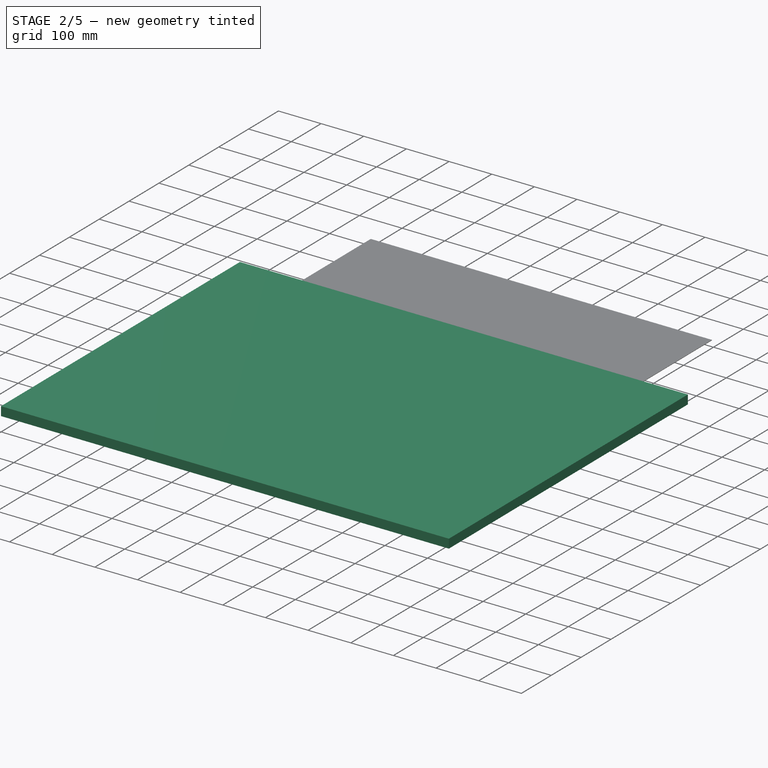
[diagram: stage 2 of 5 — iso view after this stage's code; geometry added in this stage tinted green]
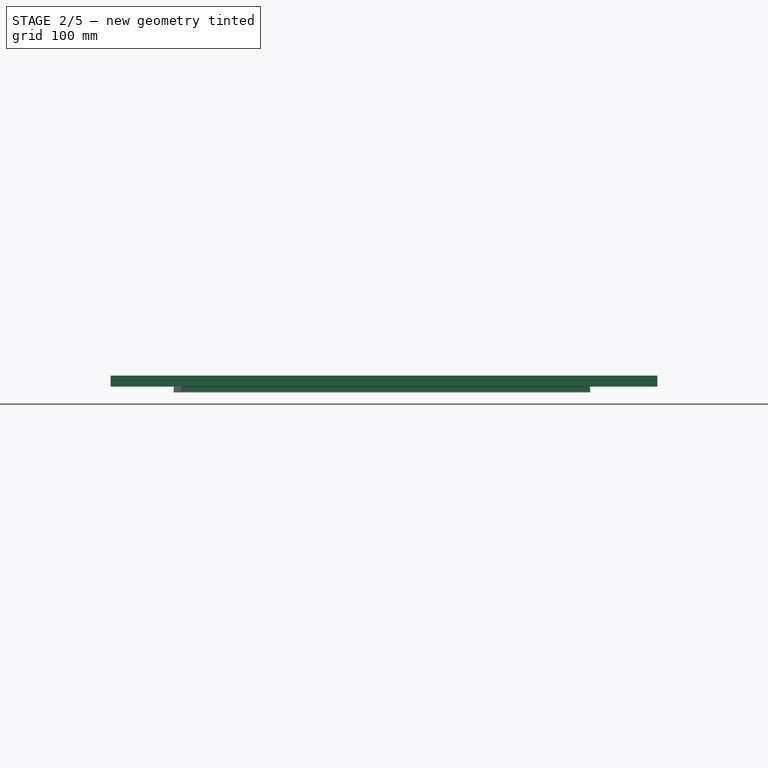
[diagram: stage 2 of 5 — front view after this stage's code; geometry added in this stage tinted green]
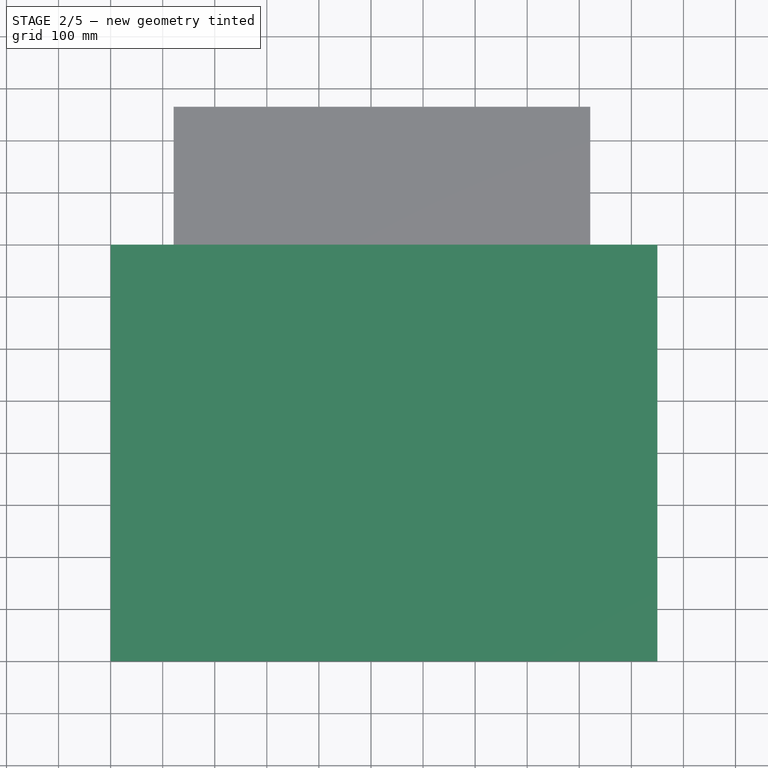
[diagram: stage 2 of 5 — top view after this stage's code; geometry added in this stage tinted green]
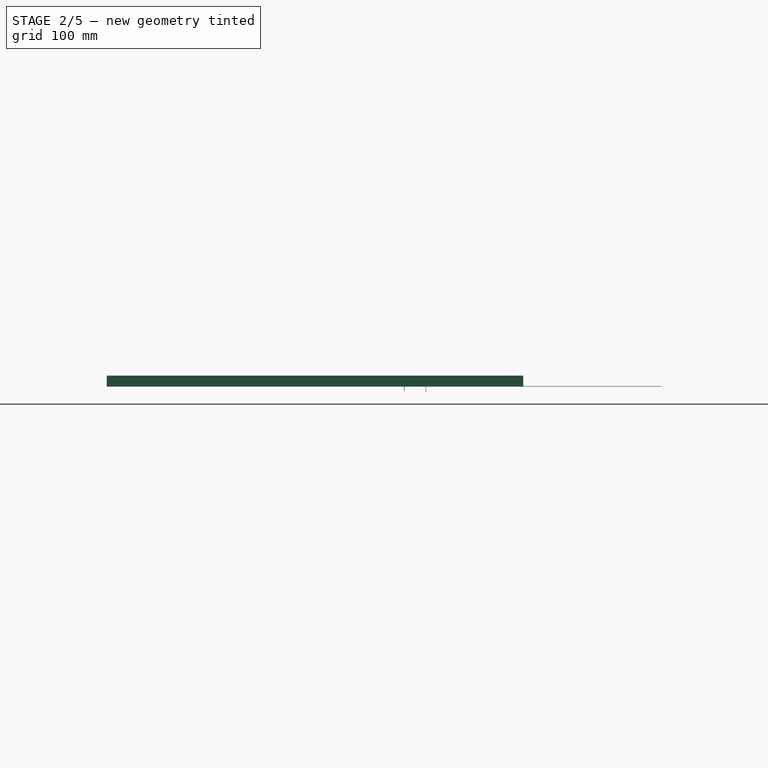
[diagram: stage 2 of 5 — right view after this stage's code; geometry added in this stage tinted green]
FEATURE [PartDesign::MultiTransform] MultiTransform001
  BaseFeature = -> Pad007
  Originals = -> [Pad007]
  Suppressed = false
  Transformations = -> [Mirrored004,Mirrored005]
FEATURE [PartDesign::Body] Body004  label="filler_14.6"
  Group = -> [Sketch007,Pad007,MultiTransform001,Mirrored004,Mirrored005]
  Origin = -> Origin008
  Tip = -> MultiTransform001
FEATURE [Sketcher::SketchObject] Sketch008
  AttachmentSupport = -> [XY_Plane002]
  FullyConstrained = false
  MapMode = 5
  expr: Constraints[13] = <<P201_Bearing>>#Sketch.Constraints.total_width / 2
  expr: Constraints[14] = <<P201_Bearing>>#Sketch.Constraints.total_width
  sketch-geometry (6):
    g0: LineSegment StartX=-417.3 StartY=63.5 StartZ=0 EndX=-417.3 EndY=-36.4807 EndZ=0
    g1: LineSegment StartX=-417.3 StartY=-36.4807 StartZ=0 EndX=-456.873 EndY=-36.4807 EndZ=0
    g2: LineSegment StartX=-456.873 StartY=-36.4807 StartZ=0 EndX=-456.873 EndY=-163.481 EndZ=0
    g3: LineSegment StartX=-456.873 StartY=-163.481 StartZ=0 EndX=-754.283 EndY=-163.481 EndZ=0
    g4: LineSegment StartX=-754.283 StartY=-163.481 StartZ=0 EndX=-754.283 EndY=63.5 EndZ=0
    g5: LineSegment StartX=-754.283 StartY=63.5 StartZ=0 EndX=-417.3 EndY=63.5 EndZ=0
  constraints (15):
    c: Vertical(g0)
    c: Coincident(g0,g1)
    c: Horizontal(g1)
    c: Coincident(g1,g2)
    c: Vertical(g2)
    c: Coincident(g2,g3)
    c: Horizontal(g3)
    c: Coincident(g3,g4)
    c: Vertical(g4)
    c: Coincident(g4,g5)
    c: Coincident(g5,g0)
    c: Horizontal(g5)
    c: DistanceX(g0) = -417.3
    c: DistanceY(g0) = 63.5
    c: DistanceY(g2,g2) = 127
FEATURE [PartDesign::Pocket] Pocket001
  BaseFeature = -> Pocket
  Direction = (0,0,-1)
  Length = 5
  Length2 = 5
  Midplane = true
  Profile = -> Sketch008
  ReferenceAxis = -> Sketch008 [N_Axis]
  Suppressed = false
  Type = 1
FEATURE [PartDesign::Body] plywood_cutting_roll_support
  AssemblyType = Part::Link
  AttachedBy = #top
  AttachedTo = Parent Assembly#LCS_Origin
  AttachmentOffset = pos=(0,0,-82.3) rot=(0,0,1;0rad)
  Group = -> [LCS_0,Sketch_1,Pad001,top,Sketch003,Pocket,Local_CS,Sketch008,Pocket001]
  Origin = -> Origin002
  Placement = pos=(0,65,0) rot=(0,0,1;3.14159rad)
  SolverId = Asm4EE
  Tip = -> Pocket001
  expr: .AttachmentOffset.Base.z = -(<<roll_75x710mm>>#roll_75_sketch.Constraints.r * 2 + 7.3 mm + 21 mm - 14.3 mm)
FEATURE [PartDesign::CoordinateSystem] LCS_0004
  AttacherType = Attacher::AttachEngine3D
  AttachmentSupport = -> [X_Axis010]
  MapMode = 2
FEATURE [Sketcher::SketchObject] Sketch009
  AttachmentSupport = -> [XY_Plane009]
  FullyConstrained = true
  MapMode = 5
  expr: Constraints[13] = <<P201003>>.Placement.Base.x
  expr: Constraints[15] = <<P201004>>.Placement.Base.x
  expr: Constraints[21] = P201_Bearing#Sketch.Constraints.total_width / 2
  expr: Constraints[3] = P201_Bearing#Sketch.Constraints.slot_d
  sketch-geometry (10):
    g0: Circle CenterX=393.3 CenterY=47.5 CenterZ=0 NormalX=0 NormalY=0 NormalZ=1 AngleXU=0 Radius=4.25
    g1: LineSegment StartX=460 StartY=-63.5 StartZ=0 EndX=460 EndY=206.5 EndZ=0
    g2: Circle CenterX=393.3 CenterY=-47.5 CenterZ=0 NormalX=0 NormalY=0 NormalZ=1 AngleXU=0 Radius=4.25
    g3: LineSegment StartX=-460 StartY=206.5 StartZ=0 EndX=-460 EndY=-63.5 EndZ=0
    g4: LineSegment StartX=-460 StartY=-63.5 StartZ=0 EndX=460 EndY=-63.5 EndZ=0
    g5: Circle CenterX=-393.3 CenterY=-47.5 CenterZ=0 NormalX=0 NormalY=0 NormalZ=1 AngleXU=0 Radius=4.25
    g6: Circle CenterX=-393.3 CenterY=47.5 CenterZ=0 NormalX=0 NormalY=0 NormalZ=1 AngleXU=0 Radius=4.25
    g7: GeomPoint X=393.3 Y=0 Z=0
    g8: LineSegment StartX=460 StartY=206.5 StartZ=0 EndX=0 EndY=206.5 EndZ=0
    g9: LineSegment StartX=0 StartY=206.5 StartZ=0 EndX=-460 EndY=206.5 EndZ=0
  constraints (28):
    c: Vertical(g1)
    c: Equal(g2,g0)
    c: Vertical(g2,g0)
    c: DistanceY(g2,g0) = 95
    c: Diameter(g2) = 8.5
    c: Coincident(g1,g8)
    c: Coincident(g9,g3)
    c: Vertical(g3)
    c: Coincident(g3,g4)
    c: Coincident(g4,g1)
    c: Horizontal(g4)
    c: Distance(g4) = 920
    c: Distance(g1) = 270
    c: DistanceX(g0) = 393.3
    c: Vertical(g6,g5)
    c: DistanceX(g6) = -393.3
    c: Equal(g2,g5)
    c: Equal(g5,g6)
    c: Horizontal(g6,g0)
    c: Horizontal(g2,g5)
    c: Symmetric(g2,g0,g7)
    c: DistanceY(g1,g7) = 63.5
    c: Horizontal(g7,g-1)
    c: Coincident(g8,g9)
    c: Horizontal(g8)
    c: Horizontal(g9)
    c: PointOnObject(g8,g-2)
    c: Equal(g9,g8)
FEATURE [PartDesign::Pad] Pad008
  Direction = (0,0,1)
  Length = 18
  Length2 = 10
  Profile = -> Sketch009
  ReferenceAxis = -> Sketch009 [N_Axis]
  Suppressed = false
  Type = 0
FEATURE [PartDesign::Body] Body_2
  Group = -> [LCS_0004,Sketch009,Pad008]
  Origin = -> Origin009
  Tip = -> Pad008
FEATURE [App::DocumentObjectGroup] Parts
  Group = -> [plywood_cutting_roll_support,shield_fixture,shield_fixture_lengthwise,plywood_top,Body002,Body004,Body_2]
FEATURE [App::Link] Body005
  AssemblyType = Part::Link
  AttachedBy = #Local_CS001
  AttachedTo = GHR20#Local_CS002
  AttachmentOffset = pos=(0,0,0) rot=(0,0,1;3.14159rad)
  LinkPlacement = pos=(467,151.3,0.5) rot=(-1,0,0;4.71239rad)
  LinkedObject = -> <external ../../Downloads/крепление рельсы слева 1.FCStd>#Body
  Placement = pos=(467,151.3,0.5) rot=(-1,0,0;4.71239rad)
  SolverId = Asm4EE
  expr: Placement = GHR20.Placement * GHR20#Local_CS002.Placement * AttachmentOffset * ___________________________________________1#Local_CS001.Placement ^ -1
FEATURE [App::Link] Body006
  AssemblyType = Part::Link
  AttachedBy = #Local_CS
  AttachedTo = _7BLY_0730NBB#fixture_plane001
  AttachmentOffset = pos=(0,0,0) rot=(0,0,1;3.14159rad)
  LinkPlacement = pos=(8.3e-15,121.3,79.5) rot=(-1,0,0;4.71239rad)
  LinkedObject = -> <external Stepper_fix2.FCStd>#Body
  Placement = pos=(8.3e-15,121.3,79.5) rot=(-1,0,0;4.71239rad)
  SolverId = Asm4EE
  expr: Placement = _7BLY_0730NBB.Placement * _7BLY_0730NBB#fixture_plane001.Placement * AttachmentOffset * Stepper_fix2#Local_CS.Placement ^ -1
FEATURE [App::Link] Body007
  AssemblyType = Part::Link
  AttachedBy = #Local_CS001
  AttachedTo = Body006#Local_CS001
  AttachmentOffset = pos=(0,0,0) rot=(0,0,1;1.5708rad)
  LinkPlacement = pos=(6e-16,146.7,95.5) rot=(-0.707107,0,-0.707107;3.14159rad)
  LinkedObject = -> <external HGH20CA.FCStd>#Body
  Placement = pos=(6e-16,146.7,95.5) rot=(-0.707107,0,-0.707107;3.14159rad)
  SolverId = Asm4EE
  expr: Placement = Body006.Placement * Stepper_fix2#Local_CS001.Placement * AttachmentOffset * HGH20CA#Local_CS001.Placement ^ -1
FEATURE [App::Link] GHR20
  AssemblyType = Part::Link
  AttachedBy = #Local_CS001
  AttachedTo = Body007#Local_CS002
  AttachmentOffset = pos=(0,0,0) rot=(1,0,0;3.14159rad)
  LinkPlacement = pos=(-500,151.3,95.5) rot=(0.57735,-0.57735,0.57735;2.0944rad)
  LinkedObject = -> <external GHR20.FCStd>#Body
  Placement = pos=(-500,151.3,95.5) rot=(0.57735,-0.57735,0.57735;2.0944rad)
  SolverId = Asm4EE
  expr: Placement = Body007.Placement * HGH20CA#Local_CS002.Placement * AttachmentOffset * GHR20#Local_CS001.Placement ^ -1
FEATURE [App::Link] Body008
  AssemblyType = Part::Link
  AttachedBy = #LCS_1
  AttachedTo = GHR20#Local_CS003
  AttachmentOffset = pos=(0,0,0) rot=(0,0,1;3.14159rad)
  LinkPlacement = pos=(-490,151.3,0.5) rot=(-1,0,0;4.71239rad)
  LinkedObject = -> <external ../../Downloads/крепление рельсы справа 1.FCStd>#Body
  Placement = pos=(-490,151.3,0.5) rot=(-1,0,0;4.71239rad)
  SolverId = Asm4EE
  expr: Placement = GHR20.Placement * GHR20#Local_CS003.Placement * AttachmentOffset * _____________________________________________1#LCS_1.Placement ^ -1
FEATURE [App::Link] Body_2001
  AssemblyType = Part::Link
  AttachedBy = #LCS_0004
  AttachedTo = Parent Assembly#LCS_Origin
  AttachmentOffset = pos=(0,110,-18) rot=(0,0,1;0rad)
  LinkPlacement = pos=(0,110,-18) rot=(0,0,1;0rad)
  LinkedObject = -> Body_2
  Placement = pos=(0,110,-18) rot=(0,0,1;0rad)
  SolverId = Asm4EE
  expr: Placement = LCS_Origin.Placement * AttachmentOffset * LCS_0004.Placement ^ -1
FEATURE [App::Part] Model
  AssemblyType = Part::Link
  Group = -> [LCS_Origin,Constraints,Variables,Configurations,roll_75x710,profile1030,plywood_shield,cutting_roll,roll_75x710001,rs_100_r,Body,P204,P204001,P201,P201001,plywood_cutting_roll_support001,shield_fixture001,shield_fixture_lengthwise001,P201002,P201003,P201004,plywood_top001,Body001,_7BLY_0730NBB,profile_to_bearing,profile_to_step_motor,Body005,Body006,Body007,GHR20,Body008,Body_2001]
  Origin = -> Origin
  Type = Assembly
FEATURE [App::Link] Link  label="Body009"
  LinkedObject = -> <external ../../../../mnt/share/Public/Documents/3д модели/Отрезной станок/Стол 1 нержавка.FCStd>#Body
FEATURE [App::Link] Link001  label="Body010"
  LinkPlacement = pos=(530,588,-5) rot=(0,0,1;3.14159rad)
  LinkedObject = -> <external ../../../../mnt/share/Public/Documents/3д модели/Отрезной станок/Стол 1.FCStd>#Body
  Placement = pos=(530,588,-5) rot=(0,0,1;3.14159rad)
FEATURE [Sketcher::SketchObject] Sketch011
  FullyConstrained = true
  sketch-geometry (5):
    g0: LineSegment StartX=-20 StartY=-72.5 StartZ=0 EndX=-20 EndY=72.5 EndZ=0
    g1: LineSegment StartX=-20 StartY=72.5 StartZ=0 EndX=20 EndY=72.5 EndZ=0
    g2: LineSegment StartX=20 StartY=72.5 StartZ=0 EndX=20 EndY=-72.5 EndZ=0
    g3: LineSegment StartX=20 StartY=-72.5 StartZ=0 EndX=-20 EndY=-72.5 EndZ=0
    g4: GeomPoint X=0 Y=0 Z=0
  constraints (12):
    c: Coincident(g0,g1)
    c: Coincident(g1,g2)
    c: Coincident(g2,g3)
    c: Coincident(g3,g0)
    c: Horizontal(g1)
    c: Horizontal(g3)
    c: Vertical(g0)
    c: Vertical(g2)
    c: Symmetric(g1,g0,g4)
    c: Coincident(g4,g-1)
    c: DistanceY(g2,g2) = 145  'length'
    c: DistanceX(g1,g1) = 40  'width'
FEATURE [Part::Part2DObjectPython] LinearArray  # Draft 2D object (typed FeaturePython)
  Alignment = 0
  AttacherType = Attacher::AttachEngine3D
  CellStart = A1
  Count = 15
  Dir = (1,0,0)
  DirIsDriven = true
  DistributionLaw = 0
  DrivenProperty = 1
  EndInclusive = true
  ExposePlacement = false
  GeneratorMode = 1
  MarkerShape = 1
  MarkerSize = 0
  NumElements = 15
  OrientMode = 1
  Point = (0,0,0)
  PointIsDriven = true
  Reverse = false
  SpanEnd = 699.3
  SpanStart = 0
  Step = 49.95
  Type = lattice2LinearArray.LinearArray
  VSGVersion = 1
  Values = 0.0 | 49.95 | 99.9 | 149.85000000000002 | 199.8 | 249.75 | 299.70000000000005 | 349.65000000000003 | 399.6 | 449.55 | 499.5 | 549.45 | 599.4000000000001 | 649.35 | 699.3000000000001
  ValuesSource = 2
  isLattice = 1
  expr: SpanEnd = Step * (Count - 1)
FEATURE [Part::FeaturePython] Populate  label="Populate LinearArray with Sketch011"  # WARN: FeaturePython — macro-defined, semantics opaque (R4)
  Copying = 0
  ExposePlacement = false
  MarkerShape = 1
  MarkerSize = 0
  NumElements = 0
  Object = -> Sketch011
  OutputCompounding = 1
  PlacementsTo = -> LinearArray
  Referencing = 0
  Type = lattice2PopulateCopies.LatticePopulateCopies
  isLattice = 0
FEATURE [Sketcher::SketchObject] Sketch012
  AttachmentSupport = -> [XY_Plane011]
  FullyConstrained = false
  MapMode = 5
  sketch-geometry (4):
    g0: LineSegment StartX=-479.883 StartY=590 StartZ=0 EndX=530.117 EndY=590 EndZ=0
    g1: LineSegment StartX=530.117 StartY=590 StartZ=0 EndX=530.117 EndY=18.4008 EndZ=0
    g2: LineSegment StartX=530.117 StartY=18.4008 StartZ=0 EndX=-479.883 EndY=18.4008 EndZ=0
    g3: LineSegment StartX=-479.883 StartY=18.4008 StartZ=0 EndX=-479.883 EndY=590 EndZ=0
  constraints (10):
    c: Coincident(g0,g1)
    c: Coincident(g1,g2)
    c: Coincident(g2,g3)
    c: Coincident(g3,g0)
    c: Horizontal(g0)
    c: Horizontal(g2)
    c: Vertical(g1)
    c: Vertical(g3)
    c: DistanceX(g2,g2) = 1010
    c: DistanceY(g0) = 590
FEATURE [Sketcher::SketchObject] Sketch013
  AttachmentSupport = -> [XY_Plane011]
  FullyConstrained = false
  MapMode = 5
  expr: Constraints[8] = Sketch011.Constraints.width + LinearArray.SpanEnd
  expr: Constraints[9] = Sketch011.Constraints.length
  sketch-geometry (4):
    g0: LineSegment StartX=-375.316 StartY=386.848 StartZ=0 EndX=363.984 EndY=386.848 EndZ=0
    g1: LineSegment StartX=363.984 StartY=386.848 StartZ=0 EndX=363.984 EndY=531.848 EndZ=0
    g2: LineSegment StartX=363.984 StartY=531.848 StartZ=0 EndX=-375.316 EndY=531.848 EndZ=0
    g3: LineSegment StartX=-375.316 StartY=531.848 StartZ=0 EndX=-375.316 EndY=386.848 EndZ=0
  constraints (10):
    c: Coincident(g0,g1)
    c: Coincident(g1,g2)
    c: Coincident(g2,g3)
    c: Coincident(g3,g0)
    c: Horizontal(g0)
    c: Horizontal(g2)
    c: Vertical(g1)
    c: Vertical(g3)
    c: DistanceX(g2,g2) = 739.3
    c: DistanceY(g1,g1) = 145
FEATURE [Sketcher::SketchObject] Sketch014
  AttachmentSupport = -> [XY_Plane011]
  FullyConstrained = false
  MapMode = 5
  sketch-geometry (4):
    g0: LineSegment StartX=334.976 StartY=265.179 StartZ=0 EndX=364.976 EndY=265.179 EndZ=0
    g1: LineSegment StartX=364.976 StartY=265.179 StartZ=0 EndX=364.976 EndY=385.179 EndZ=0
    g2: LineSegment StartX=364.976 StartY=385.179 StartZ=0 EndX=334.976 EndY=385.179 EndZ=0
    g3: LineSegment StartX=334.976 StartY=385.179 StartZ=0 EndX=334.976 EndY=265.179 EndZ=0
  constraints (10):
    c: Coincident(g0,g1)
    c: Coincident(g1,g2)
    c: Coincident(g2,g3)
    c: Coincident(g3,g0)
    c: Horizontal(g0)
    c: Horizontal(g2)
    c: Vertical(g1)
    c: Vertical(g3)
    c: DistanceY(g3,g3) = 120
    c: DistanceX(g0,g0) = 30
FEATURE [Sketcher::SketchObject] Sketch016
  AttachmentSupport = -> [XY_Plane011]
  FullyConstrained = false
  MapMode = 5
  sketch-geometry (4):
    g0: LineSegment StartX=-364.484 StartY=70.9815 StartZ=0 EndX=419.215 EndY=70.9815 EndZ=0
    g1: LineSegment StartX=419.215 StartY=70.9815 StartZ=0 EndX=419.215 EndY=113.432 EndZ=0
    g2: LineSegment StartX=419.215 StartY=113.432 StartZ=0 EndX=-364.484 EndY=113.432 EndZ=0
    g3: LineSegment StartX=-364.484 StartY=113.432 StartZ=0 EndX=-364.484 EndY=70.9815 EndZ=0
  constraints (8):
    c: Coincident(g0,g1)
    c: Coincident(g1,g2)
    c: Coincident(g2,g3)
    c: Coincident(g3,g0)
    c: Horizontal(g0)
    c: Horizontal(g2)
    c: Vertical(g1)
    c: Vertical(g3)
FEATURE [PartDesign::SubShapeBinder] Binder001
  BindCopyOnChange = 0
  BindMode = 0
  ClaimChildren = false
  Context = -> Body011 [Binder001.]
  Fuse = false
  MakeFace = true
  OffsetFill = false
  OffsetIntersection = false
  OffsetJoinType = 0
  OffsetOpenResult = false
  PartialLoad = false
  Relative = false
  Support = -> [Body010[Sketch016.]]
  _Version = 2
FEATURE [Sketcher::SketchObject] Sketch015
  AttachmentSupport = -> [XY_Plane012]
  ExternalGeometry = -> [Binder001]
  FullyConstrained = false
  MapMode = 5
  sketch-geometry (5):
    g0: LineSegment StartX=-364.484 StartY=11.9803 StartZ=0 EndX=419.215 EndY=11.9803 EndZ=0
    g1: LineSegment StartX=419.215 StartY=11.9803 StartZ=0 EndX=419.215 EndY=70.9815 EndZ=0
    g2: LineSegment StartX=419.215 StartY=70.9815 StartZ=0 EndX=-364.484 EndY=70.9815 EndZ=0
    g3: LineSegment StartX=-364.484 StartY=70.9815 StartZ=0 EndX=-364.484 EndY=11.9803 EndZ=0
    g4: GeomPoint X=27.3655 Y=41.4809 Z=0
  constraints (10):
    c: Coincident(g0,g1)
    c: Coincident(g1,g2)
    c: Coincident(g2,g3)
    c: Coincident(g3,g0)
    c: Horizontal(g0)
    c: Vertical(g1)
    c: Vertical(g3)
    c: Symmetric(g0,g1,g4)
    c: Coincident(g1,g-3)
    c: Coincident(g2,g-3)
FEATURE [PartDesign::FeaturePython] BaseBend  # WARN: FeaturePython — macro-defined, semantics opaque (R4)
  BendSide = 0
  BendSketch = -> Sketch015
  MidPlane = false
  Reverse = false
  Suppressed = false
  length = 100
  radius = 1
  thickness = 1
FEATURE [Sketcher::SketchObject] Sketch002
  FullyConstrained = true
  MapMode = 5
  Support = -> [XY_Plane001]
  sketch-geometry (5):
    g0: LineSegment StartX=-400 StartY=200 StartZ=0 EndX=-400 EndY=0 EndZ=0
    g1: LineSegment StartX=-400 StartY=0 StartZ=0 EndX=400 EndY=0 EndZ=0
    g2: LineSegment StartX=400 StartY=0 StartZ=0 EndX=400 EndY=200 EndZ=0
    g3: LineSegment StartX=400 StartY=200 StartZ=0 EndX=-400 EndY=200 EndZ=0
    g4: GeomPoint X=0 Y=100 Z=0
  constraints (13):
    c: Coincident(g0,g1)
    c: Coincident(g1,g2)
    c: Coincident(g2,g3)
    c: Coincident(g3,g0)
    c: Horizontal(g1)
    c: Horizontal(g3)
    c: Vertical(g0)
    c: Vertical(g2)
    c: Symmetric(g1,g0,g4)
    c: PointOnObject(g4,g-2)
    c: PointOnObject(g1,g-1)
    c: DistanceY(g2) = 200
    c: DistanceX(g1,g1) = 800
FEATURE [Sketcher::SketchObject] Sketch003
  AttachmentOffset = pos=(0,20,0) rot=(0,0,1;0rad)
  FullyConstrained = true
  MapMode = 5
  Placement = pos=(0,20,0) rot=(0,0,1;0rad)
  Support = -> [XY_Plane001]
  expr: .AttachmentOffset.Base.y = Sketch001.AttachmentOffset.Base.y
  expr: Constraints[11] = Sketch001.Constraints.length
  sketch-geometry (5):
    g0: LineSegment StartX=-7.5 StartY=82 StartZ=0 EndX=-7.5 EndY=0 EndZ=0
    g1: LineSegment StartX=-7.5 StartY=0 StartZ=0 EndX=7.5 EndY=0 EndZ=0
    g2: LineSegment StartX=7.5 StartY=0 StartZ=0 EndX=7.5 EndY=82 EndZ=0
    g3: LineSegment StartX=7.5 StartY=82 StartZ=0 EndX=-7.5 EndY=82 EndZ=0
    g4: GeomPoint X=2e-16 Y=41 Z=0
  constraints (13):
    c: Coincident(g0,g1)
    c: Coincident(g1,g2)
    c: Coincident(g2,g3)
    c: Coincident(g3,g0)
    c: Horizontal(g1)
    c: Horizontal(g3)
    c: Vertical(g0)
    c: Vertical(g2)
    c: Symmetric(g1,g0,g4)
    c: PointOnObject(g4,g-2)
    c: PointOnObject(g1,g-1)
    c: DistanceY(g2,g2) = 82
    c: DistanceX(g1,g1) = 15
FEATURE [PartDesign::Pad] Pad001
  Direction = (0,0,1)
  Length = 10
  Length2 = 10
  Profile = -> Sketch002
  ReferenceAxis = -> Sketch002 [N_Axis]
  Type = 0
FEATURE [PartDesign::Body] Body001  label="plywood_shield_top"
  Group = -> [Sketch002,Sketch003,Pad001,Pocket001,MultiTransform001,LinearPattern002,LinearPattern003]
  Origin = -> Origin001
  Tip = -> MultiTransform001
FEATURE [App::FeaturePython] SetupSheet001  # Path/CAM operation (typed FeaturePython)
  ClearanceHeightExpression = OpStockZMax+SetupSheet001.ClearanceHeightOffset
  ClearanceHeightOffset = 5
  CoolantMode = 0
  CoolantModes = None | Flood | Mist
  FinalDepthExpression = OpFinalDepth
  HorizRapid = 0
  SafeHeightExpression = OpStockZMax+SetupSheet001.SafeHeightOffset
  SafeHeightOffset = 3
  StartDepthExpression = OpStartDepth
  StepDownExpression = OpToolDiameter
  VertRapid = 0
FEATURE [Part::FeaturePython] Clone001  label="Model-plywood_shield_top"  # Draft clone (typed FeaturePython)
  AttacherType = Attacher::AttachEngine3D
  Fuse = false
  Objects = -> [Body001]
  PathResource = Model
  Scale = (1,1,1)
FEATURE [App::DocumentObjectGroup] Model001
  Group = -> [Clone001]
FEATURE [Part::FeaturePython] Stock001  # WARN: FeaturePython — macro-defined, semantics opaque (R4)
  Base = -> Model001
  ExtXneg = 1
  ExtXpos = 1
  ExtYneg = 1
  ExtYpos = 1
  ExtZneg = 0.1
  ExtZpos = 1
  Placement = pos=(-400,0,0) rot=(0,0,1;0rad)
  StockType = FromBase
FEATURE [Part::FeaturePython] ToolBit002  label="3.175mm Endmill"  # Path/CAM toolbit (typed FeaturePython)
  BitPropertyNames = Chipload | CuttingEdgeHeight | Diameter | Flutes | Length | Material | ShankDiameter | SpindleDirection
  BitShape = <path>
  Chipload = 0
  CuttingEdgeHeight = 30
  Diameter = 3.17
  File = <userpath>/.local/share/FreeCAD/Macro/Bit/3.175mm_Endmill.fctb
  Flutes = 0
  Length = 10
  Material = 0
  ShankDiameter = 3
  ShapeName = endmill
  SpindleDirection = 0
FEATURE [Path::FeaturePython] __175mm_Endmill  label="3.175mm Endmill009"  # Path/CAM operation (typed FeaturePython)
  HorizFeed = 51.6667
  HorizRapid = 0
  SpindleDir = 0
  SpindleSpeed = 21000
  Tool = -> ToolBit002
  ToolNumber = 2
  VertFeed = 16.6667
  VertRapid = 0
  expr: HorizRapid = SetupSheet001.HorizRapid
  expr: VertRapid = SetupSheet001.VertRapid
FEATURE [App::DocumentObjectGroup] Tools001
  Group = -> [__175mm_Endmill]
FEATURE [Path::FeaturePython] Profile  # Path/CAM operation (typed FeaturePython)
  Active = true
  AreaParams:
    Tolerance = 1e-07
    FitArcs = True
    Simplify = False
    CleanDistance = 0.0
    Accuracy = 0.01
    Unit = 1.0
    MinArcPoints = 4
    MaxArcPoints = 100
    ClipperScale = 10000000.0
    Fill = 0
    Coplanar = 0
    Reorient = True
    Outline = False
    Explode = False
    OpenMode = 0
    Deflection = 0.01
    SubjectFill = 0
    ClipFill = 0
    Offset = -1.585
    ExtraPass = 0
    Stepover = 0.0
    LastStepover = 0.0
    JoinType = 0
    EndType = 0
    MiterLimit = 2.0
    RoundPrecision = 0.0
    PocketMode = 0
    ToolRadius = 1.0
    PocketExtraOffset = 0.0
    PocketStepover = 0.0
    PocketLastStepover = 0.0
    FromCenter = False
    Angle = 45.0
    AngleShift = 0.0
    Shift = 0.0
    Thicken = False
    SectionCount = -1
    Stepdown = 1.0
    SectionOffset = 0.0
    SectionTolerance = 1e-06
    SectionMode = 2
    Project = False
  Base = -> [Clone001]
  ClearanceHeight = 16
  CoolantMode = 0
  CycleTime = 00:00:23
  Direction = 0
  FinalDepth = 0
  HandleMultipleFeatures = 0
  JoinType = 0
  MiterLimit = 0.1
  OffsetExtra = 0
  OpFinalDepth = 0
  OpStartDepth = 11
  OpStockZMax = 11
  OpStockZMin = -0.1
  OpToolDiameter = 3.17
  PathParams = {'orientation': 1, 'feedrate': 51.666666666666664, 'feedrate_v': 16.666666666666668, 'verbose': True, 'resume_height': 14.0, 'retraction': 16.0, 'return_end': True, 'preamble': False}
  SafeHeight = 14
  Side = 1
  SplitArcs = false
  StartDepth = 11
  StartPoint = (0,0,0)
  StepDown = 3.17
  ToolController = -> __175mm_Endmill
  UseComp = true
  UseStartPoint = false
  processCircles = false
  processHoles = false
  processPerimeter = true
  expr: ClearanceHeight = OpStockZMax + SetupSheet001.ClearanceHeightOffset
  expr: FinalDepth = OpFinalDepth
  expr: SafeHeight = OpStockZMax + SetupSheet001.SafeHeightOffset
  expr: StartDepth = OpStartDepth
  expr: StepDown = OpToolDiameter
FEATURE [Path::FeaturePython] Array001  # Path/CAM operation (typed FeaturePython)
  Active = true
  Angle = 0
  Base = -> [Profile]
  Centre = (0,0,0)
  Copies = 14
  CopiesX = 0
  CopiesY = 0
  JitterMagnitude = (0,0,0)
  JitterPercent = 0
  JitterSeed = 0
  Offset = (49.95,0,0)
  SwapDirection = false
  ToolController = -> __175mm_Endmill
  Type = 0
  expr: .Offset.x = LinearPattern002.Length / (LinearPattern002.Occurrences - 1)
FEATURE [App::DocumentObjectGroup] Operations001
  Group = -> [Profile,Array001]
FEATURE [Path::FeaturePython] Job001  # Path/CAM operation (typed FeaturePython)
  CycleTime = 00:00:23
  Fixtures = G54
  GeometryTolerance = 0.01
  JobType = 0
  LastPostProcessDate = 2022-12-22 13:36:54.214218
  LastPostProcessOutput = <userpath>/B653-DC8A/plywood_cutting_shield.Job001.tap
  Model = -> Model001
  Operations = -> Operations001
  OrderOutputBy = 0
  PostProcessor = 11
  PostProcessorOutputFile = %d.%j.tap
  SetupSheet = -> SetupSheet001
  SplitOutput = false
  Stock = -> Stock001
  Tools = -> Tools001
FEATURE [PartDesign::FeaturePython] Bend  # WARN: FeaturePython — macro-defined, semantics opaque (R4)
  AutoMiter = true
  BaseFeature = -> MultiTransform
  BendType = 0
  LengthList = [40]
  LengthSpec = 0
  Placement = pos=(400,0,0) rot=(0,0,1;0rad)
  ReliefFactor = 0.7
  UseReliefFactor = false
  angle = 90
  baseObject = -> MultiTransform [Edge176]
  bendAList = [90]
  extend1 = 0
  extend2 = 0
  gap1 = 0
  gap2 = 0
  invert = false
  kfactor = 0.5
  length = 40
  maxExtendDist = 5
  minGap = 0.1
  minReliefGap = 1
  miterangle1 = 0
  miterangle2 = 0
  offset = 0
  radius = 0.1
  reliefType = 0
  reliefd = 1
  reliefw = 0.8
  sketchflip = false
  sketchinvert = false
  unfold = false
FEATURE [PartDesign::Body] Body  label="plywood_shield"
  Group = -> [Sketch,Pad,Sketch001,Pocket,Mirrored,MultiTransform,LinearPattern,Local_CS,LinearPattern001,Bend]
  Origin = -> Origin
  Tip = -> Bend
FEATURE [Part::FeaturePython] Clone  label="Model-plywood_shield"  # Draft clone (typed FeaturePython)
  AttacherType = Attacher::AttachEngine3D
  Fuse = false
  Objects = -> [Body]
  PathResource = Model
  Placement = pos=(400,0,0) rot=(0,0,1;0rad)
  Scale = (1,1,1)
FEATURE [App::DocumentObjectGroup] Model
  Group = -> [Clone]
FEATURE [Part::FeaturePython] Stock  # WARN: FeaturePython — macro-defined, semantics opaque (R4)
  Base = -> Model
  ExtXneg = 0
  ExtXpos = 1
  ExtYneg = 0
  ExtYpos = 1
  ExtZneg = 0.1
  ExtZpos = 0
  StockType = FromBase
FEATURE [Path::FeaturePython] Job  # Path/CAM operation (typed FeaturePython)
  CycleTime = 00:03:06
  Fixtures = G54
  GeometryTolerance = 0.01
  JobType = 0
  LastPostProcessDate = 2022-12-21 19:00:36.126258
  LastPostProcessOutput = <userpath>/B653-DC8A/plywood_cutting_shield.Job.tap
  Model = -> Model
  Operations = -> Operations
  OrderOutputBy = 0
  PostProcessor = 11
  PostProcessorOutputFile = %d.%j.tap
  SetupSheet = -> SetupSheet
  SplitOutput = false
  Stock = -> Stock
  Tools = -> Tools
FEATURE [App::FeaturePython] SetupSheet002  # Path/CAM operation (typed FeaturePython)
  ClearanceHeightExpression = OpStockZMax+SetupSheet002.ClearanceHeightOffset
  ClearanceHeightOffset = 5
  CoolantMode = 0
  CoolantModes = None | Flood | Mist
  FinalDepthExpression = OpFinalDepth
  HorizRapid = 0
  SafeHeightExpression = OpStockZMax+SetupSheet002.SafeHeightOffset
  SafeHeightOffset = 3
  StartDepthExpression = OpStartDepth
  StepDownExpression = OpToolDiameter
  VertRapid = 0
FEATURE [Part::FeaturePython] ToolBit003  label="3.175mm Endmill010"  # Path/CAM toolbit (typed FeaturePython)
  BitPropertyNames = Chipload | CuttingEdgeHeight | Diameter | Flutes | Length | Material | ShankDiameter | SpindleDirection
  BitShape = <path>
  Chipload = 0
  CuttingEdgeHeight = 30
  Diameter = 3.17
  File = <userpath>/.local/share/FreeCAD/Macro/Bit/3.175mm_Endmill.fctb
  Flutes = 0
  Length = 10
  Material = 0
  ShankDiameter = 3
  ShapeName = endmill
  SpindleDirection = 0
FEATURE [Path::FeaturePython] __175mm_Endmill010  label="3.175mm Endmill011"  # Path/CAM operation (typed FeaturePython)
  HorizFeed = 51.6667
  HorizRapid = 0
  SpindleDir = 0
  SpindleSpeed = 21000
  Tool = -> ToolBit003
  ToolNumber = 2
  VertFeed = 16.6667
  VertRapid = 0
  expr: HorizRapid = SetupSheet002.HorizRapid
  expr: VertRapid = SetupSheet002.VertRapid
FEATURE [App::DocumentObjectGroup] Tools002
  Group = -> [__175mm_Endmill010]
FEATURE [Path::FeaturePython] Pocket3D001  # Path/CAM operation (typed FeaturePython)
  Active = true
  AdaptivePocketFinish = false
  AdaptivePocketStart = false
  AreaParams:
    Tolerance = 1e-07
    FitArcs = True
    Simplify = False
    CleanDistance = 0.0
    Accuracy = 0.01
    Unit = 1.0
    MinArcPoints = 4
    MaxArcPoints = 100
    ClipperScale = 10000000.0
    Fill = 0
    Coplanar = 0
    Reorient = True
    Outline = False
    Explode = False
    OpenMode = 0
    Deflection = 0.01
    SubjectFill = 0
    ClipFill = 0
    Offset = 0.0
    ExtraPass = 0
    Stepover = 0.0
    LastStepover = 0.0
    JoinType = 0
    EndType = 0
    MiterLimit = 2.0
    RoundPrecision = 0.0
    PocketMode = 1
    ToolRadius = 1.585
    PocketExtraOffset = 0.0
    PocketStepover = 3.17
    PocketLastStepover = 0.0
    FromCenter = True
    Angle = 45.0
    AngleShift = 0.0
    Shift = 0.0
    Thicken = False
    SectionCount = -1
    Stepdown = 1.0
    SectionOffset = 0.0
    SectionTolerance = 1e-06
    SectionMode = 2
    Project = False
  ClearanceHeight = 9
  CoolantMode = 0
  CutMode = 0
  CycleTime = 00:01:19
  ExtraOffset = 0
  FinalDepth = 0
  FinishDepth = 0
  HandleMultipleFeatures = 0
  KeepToolDown = true
  MinTravel = true
  OffsetPattern = 0
  OpFinalDepth = 0
  OpStartDepth = 4
  OpStockZMax = 4
  OpStockZMin = -0.1
  OpToolDiameter = 3.17
  PathParams = {'orientation': 1, 'sort_mode': 3, 'threshold': 3.171585, 'feedrate': 51.666666666666664, 'feedrate_v': 16.666666666666668, 'verbose': True, 'resume_height': 7.0, 'retraction': 9.0, 'return_end': True, 'preamble': False, 'start': Vector (0.0, 0.0, 0.0)}
  PocketLastStepOver = 0
  ProcessStockArea = false
  SafeHeight = 7
  SplitArcs = false
  StartAt = 0
  StartDepth = 4
  StartPoint = (0,0,0)
  StepDown = 3.17
  StepOver = 100
  ToolController = -> __175mm_Endmill010
  UseStartPoint = true
  ZigZagAngle = 45
  expr: ClearanceHeight = OpStockZMax + SetupSheet002.ClearanceHeightOffset
  expr: FinalDepth = OpFinalDepth
  expr: OpFinalDepth = 0mm
  expr: SafeHeight = OpStockZMax + SetupSheet002.SafeHeightOffset
  expr: StartDepth = OpStartDepth
  expr: StepDown = OpToolDiameter
FEATURE [Part::Feature] Unfold
  shape: bbox 800 x 242.5 x 3 mm, 66 faces (baked)
FEATURE [Sketcher::SketchObject] Unfold_Sketch
  FullyConstrained = false
  sketch-geometry (64):
    g0: LineSegment StartX=800 StartY=242.513 StartZ=0 EndX=0 EndY=242.513 EndZ=0
    g1: LineSegment StartX=0 StartY=242.513 StartZ=0 EndX=0 EndY=0 EndZ=0
    g2: LineSegment StartX=0 StartY=0 StartZ=0 EndX=800 EndY=0 EndZ=0
    g3: LineSegment StartX=800 StartY=0 StartZ=0 EndX=800 EndY=242.513 EndZ=0
    g4: LineSegment StartX=448.36 StartY=102 StartZ=0 EndX=451.54 EndY=102 EndZ=0
    g5: LineSegment StartX=451.54 StartY=102 StartZ=0 EndX=451.54 EndY=20 EndZ=0
    g6: LineSegment StartX=451.54 StartY=20 StartZ=0 EndX=448.36 EndY=20 EndZ=0
    g7: LineSegment StartX=448.36 StartY=20 StartZ=0 EndX=448.36 EndY=102 EndZ=0
    g8: LineSegment StartX=401.59 StartY=20 StartZ=0 EndX=398.41 EndY=20 EndZ=0
    g9: LineSegment StartX=398.41 StartY=102 StartZ=0 EndX=398.41 EndY=20 EndZ=0
    g10: LineSegment StartX=401.59 StartY=102 StartZ=0 EndX=398.41 EndY=102 EndZ=0
    g11: LineSegment StartX=401.59 StartY=102 StartZ=0 EndX=401.59 EndY=20 EndZ=0
    g12: LineSegment StartX=498.31 StartY=102 StartZ=0 EndX=501.49 EndY=102 EndZ=0
    g13: LineSegment StartX=501.49 StartY=102 StartZ=0 EndX=501.49 EndY=20 EndZ=0
    g14: LineSegment StartX=501.49 StartY=20 StartZ=0 EndX=498.31 EndY=20 EndZ=0
    g15: LineSegment StartX=498.31 StartY=20 StartZ=0 EndX=498.31 EndY=102 EndZ=0
    g16: LineSegment StartX=348.46 StartY=20 StartZ=0 EndX=351.64 EndY=20 EndZ=0
    g17: LineSegment StartX=348.46 StartY=102 StartZ=0 EndX=348.46 EndY=20 EndZ=0
    g18: LineSegment StartX=351.64 StartY=102 StartZ=0 EndX=348.46 EndY=102 EndZ=0
    g19: LineSegment StartX=351.64 StartY=20 StartZ=0 EndX=351.64 EndY=102 EndZ=0
    g20: LineSegment StartX=298.51 StartY=20 StartZ=0 EndX=301.69 EndY=20 EndZ=0
    g21: LineSegment StartX=298.51 StartY=102 StartZ=0 EndX=298.51 EndY=20 EndZ=0
    g22: LineSegment StartX=301.69 StartY=102 StartZ=0 EndX=298.51 EndY=102 EndZ=0
    g23: LineSegment StartX=301.69 StartY=20 StartZ=0 EndX=301.69 EndY=102 EndZ=0
    g24: LineSegment StartX=548.26 StartY=102 StartZ=0 EndX=551.44 EndY=102 EndZ=0
    g25: LineSegment StartX=551.44 StartY=102 StartZ=0 EndX=551.44 EndY=20 EndZ=0
    g26: LineSegment StartX=551.44 StartY=20 StartZ=0 EndX=548.26 EndY=20 EndZ=0
    g27: LineSegment StartX=548.26 StartY=20 StartZ=0 EndX=548.26 EndY=102 EndZ=0
    g28: LineSegment StartX=598.21 StartY=102 StartZ=0 EndX=601.39 EndY=102 EndZ=0
    g29: LineSegment StartX=601.39 StartY=102 StartZ=0 EndX=601.39 EndY=20 EndZ=0
    g30: LineSegment StartX=601.39 StartY=20 StartZ=0 EndX=598.21 EndY=20 EndZ=0
    g31: LineSegment StartX=598.21 StartY=20 StartZ=0 EndX=598.21 EndY=102 EndZ=0
    g32: LineSegment StartX=648.16 StartY=102 StartZ=0 EndX=651.34 EndY=102 EndZ=0
    g33: LineSegment StartX=651.34 StartY=102 StartZ=0 EndX=651.34 EndY=20 EndZ=0
    g34: LineSegment StartX=651.34 StartY=20 StartZ=0 EndX=648.16 EndY=20 EndZ=0
    g35: LineSegment StartX=648.16 StartY=20 StartZ=0 EndX=648.16 EndY=102 EndZ=0
    g36: LineSegment StartX=248.56 StartY=20 StartZ=0 EndX=251.74 EndY=20 EndZ=0
    g37: LineSegment StartX=248.56 StartY=102 StartZ=0 EndX=248.56 EndY=20 EndZ=0
    g38: LineSegment StartX=251.74 StartY=102 StartZ=0 EndX=248.56 EndY=102 EndZ=0
    g39: LineSegment StartX=251.74 StartY=20 StartZ=0 EndX=251.74 EndY=102 EndZ=0
    g40: LineSegment StartX=198.61 StartY=20 StartZ=0 EndX=201.79 EndY=20 EndZ=0
    g41: LineSegment StartX=198.61 StartY=102 StartZ=0 EndX=198.61 EndY=20 EndZ=0
    g42: LineSegment StartX=201.79 StartY=102 StartZ=0 EndX=198.61 EndY=102 EndZ=0
    g43: LineSegment StartX=201.79 StartY=20 StartZ=0 EndX=201.79 EndY=102 EndZ=0
    g44: LineSegment StartX=148.66 StartY=20 StartZ=0 EndX=151.84 EndY=20 EndZ=0
    g45: LineSegment StartX=148.66 StartY=102 StartZ=0 EndX=148.66 EndY=20 EndZ=0
    g46: LineSegment StartX=151.84 StartY=102 StartZ=0 EndX=148.66 EndY=102 EndZ=0
    g47: LineSegment StartX=151.84 StartY=20 StartZ=0 EndX=151.84 EndY=102 EndZ=0
    g48: LineSegment StartX=698.11 StartY=102 StartZ=0 EndX=701.29 EndY=102 EndZ=0
    g49: LineSegment StartX=701.29 StartY=102 StartZ=0 EndX=701.29 EndY=20 EndZ=0
    g50: LineSegment StartX=701.29 StartY=20 StartZ=0 EndX=698.11 EndY=20 EndZ=0
    g51: LineSegment StartX=698.11 StartY=20 StartZ=0 EndX=698.11 EndY=102 EndZ=0
    g52: LineSegment StartX=98.71 StartY=20 StartZ=0 EndX=101.89 EndY=20 EndZ=0
    g53: LineSegment StartX=98.71 StartY=102 StartZ=0 EndX=98.71 EndY=20 EndZ=0
    g54: LineSegment StartX=101.89 StartY=102 StartZ=0 EndX=98.71 EndY=102 EndZ=0
    g55: LineSegment StartX=101.89 StartY=20 StartZ=0 EndX=101.89 EndY=102 EndZ=0
    g56: LineSegment StartX=748.06 StartY=102 StartZ=0 EndX=751.24 EndY=102 EndZ=0
    g57: LineSegment StartX=751.24 StartY=102 StartZ=0 EndX=751.24 EndY=20 EndZ=0
    g58: LineSegment StartX=751.24 StartY=20 StartZ=0 EndX=748.06 EndY=20 EndZ=0
    g59: LineSegment StartX=748.06 StartY=20 StartZ=0 EndX=748.06 EndY=102 EndZ=0
    g60: LineSegment StartX=48.76 StartY=20 StartZ=0 EndX=51.94 EndY=20 EndZ=0
    g61: LineSegment StartX=48.76 StartY=102 StartZ=0 EndX=48.76 EndY=20 EndZ=0
    g62: LineSegment StartX=51.94 StartY=102 StartZ=0 EndX=48.76 EndY=102 EndZ=0
    g63: LineSegment StartX=51.94 StartY=20 StartZ=0 EndX=51.94 EndY=102 EndZ=0
FEATURE [Sketcher::SketchObject] Unfold_Sketch_Outline
  FullyConstrained = false
  sketch-geometry (4):
    g0: LineSegment StartX=800 StartY=242.513 StartZ=0 EndX=0 EndY=242.513 EndZ=0
    g1: LineSegment StartX=0 StartY=242.513 StartZ=0 EndX=0 EndY=0 EndZ=0
    g2: LineSegment StartX=0 StartY=0 StartZ=0 EndX=800 EndY=0 EndZ=0
    g3: LineSegment StartX=800 StartY=0 StartZ=0 EndX=800 EndY=242.513 EndZ=0
FEATURE [Sketcher::SketchObject] Unfold_Sketch_Internal
  FullyConstrained = false
  sketch-geometry (60):
    g0: LineSegment StartX=48.76 StartY=20 StartZ=0 EndX=51.94 EndY=20 EndZ=0
    g1: LineSegment StartX=51.94 StartY=20 StartZ=0 EndX=51.94 EndY=102 EndZ=0
    g2: LineSegment StartX=51.94 StartY=102 StartZ=0 EndX=48.76 EndY=102 EndZ=0
    g3: LineSegment StartX=48.76 StartY=102 StartZ=0 EndX=48.76 EndY=20 EndZ=0
    g4: LineSegment StartX=748.06 StartY=102 StartZ=0 EndX=751.24 EndY=102 EndZ=0
    g5: LineSegment StartX=751.24 StartY=102 StartZ=0 EndX=751.24 EndY=20 EndZ=0
    g6: LineSegment StartX=751.24 StartY=20 StartZ=0 EndX=748.06 EndY=20 EndZ=0
    g7: LineSegment StartX=748.06 StartY=20 StartZ=0 EndX=748.06 EndY=102 EndZ=0
    g8: LineSegment StartX=98.71 StartY=20 StartZ=0 EndX=101.89 EndY=20 EndZ=0
    g9: LineSegment StartX=101.89 StartY=20 StartZ=0 EndX=101.89 EndY=102 EndZ=0
    g10: LineSegment StartX=101.89 StartY=102 StartZ=0 EndX=98.71 EndY=102 EndZ=0
    g11: LineSegment StartX=98.71 StartY=102 StartZ=0 EndX=98.71 EndY=20 EndZ=0
    g12: LineSegment StartX=148.66 StartY=20 StartZ=0 EndX=151.84 EndY=20 EndZ=0
    g13: LineSegment StartX=151.84 StartY=20 StartZ=0 EndX=151.84 EndY=102 EndZ=0
    g14: LineSegment StartX=151.84 StartY=102 StartZ=0 EndX=148.66 EndY=102 EndZ=0
    g15: LineSegment StartX=148.66 StartY=102 StartZ=0 EndX=148.66 EndY=20 EndZ=0
    g16: LineSegment StartX=198.61 StartY=20 StartZ=0 EndX=201.79 EndY=20 EndZ=0
    g17: LineSegment StartX=201.79 StartY=20 StartZ=0 EndX=201.79 EndY=102 EndZ=0
    g18: LineSegment StartX=201.79 StartY=102 StartZ=0 EndX=198.61 EndY=102 EndZ=0
    g19: LineSegment StartX=198.61 StartY=102 StartZ=0 EndX=198.61 EndY=20 EndZ=0
    g20: LineSegment StartX=248.56 StartY=20 StartZ=0 EndX=251.74 EndY=20 EndZ=0
    g21: LineSegment StartX=251.74 StartY=20 StartZ=0 EndX=251.74 EndY=102 EndZ=0
    g22: LineSegment StartX=251.74 StartY=102 StartZ=0 EndX=248.56 EndY=102 EndZ=0
    g23: LineSegment StartX=248.56 StartY=102 StartZ=0 EndX=248.56 EndY=20 EndZ=0
    g24: LineSegment StartX=648.16 StartY=102 StartZ=0 EndX=651.34 EndY=102 EndZ=0
    g25: LineSegment StartX=651.34 StartY=102 StartZ=0 EndX=651.34 EndY=20 EndZ=0
    g26: LineSegment StartX=651.34 StartY=20 StartZ=0 EndX=648.16 EndY=20 EndZ=0
    g27: LineSegment StartX=648.16 StartY=20 StartZ=0 EndX=648.16 EndY=102 EndZ=0
    g28: LineSegment StartX=598.21 StartY=102 StartZ=0 EndX=601.39 EndY=102 EndZ=0
    g29: LineSegment StartX=601.39 StartY=102 StartZ=0 EndX=601.39 EndY=20 EndZ=0
    g30: LineSegment StartX=601.39 StartY=20 StartZ=0 EndX=598.21 EndY=20 EndZ=0
    g31: LineSegment StartX=598.21 StartY=20 StartZ=0 EndX=598.21 EndY=102 EndZ=0
    g32: LineSegment StartX=548.26 StartY=102 StartZ=0 EndX=551.44 EndY=102 EndZ=0
    g33: LineSegment StartX=551.44 StartY=102 StartZ=0 EndX=551.44 EndY=20 EndZ=0
    g34: LineSegment StartX=551.44 StartY=20 StartZ=0 EndX=548.26 EndY=20 EndZ=0
    g35: LineSegment StartX=548.26 StartY=20 StartZ=0 EndX=548.26 EndY=102 EndZ=0
    g36: LineSegment StartX=298.51 StartY=20 StartZ=0 EndX=301.69 EndY=20 EndZ=0
    g37: LineSegment StartX=301.69 StartY=20 StartZ=0 EndX=301.69 EndY=102 EndZ=0
    g38: LineSegment StartX=301.69 StartY=102 StartZ=0 EndX=298.51 EndY=102 EndZ=0
    g39: LineSegment StartX=298.51 StartY=102 StartZ=0 EndX=298.51 EndY=20 EndZ=0
    g40: LineSegment StartX=348.46 StartY=20 StartZ=0 EndX=351.64 EndY=20 EndZ=0
    g41: LineSegment StartX=351.64 StartY=20 StartZ=0 EndX=351.64 EndY=102 EndZ=0
    g42: LineSegment StartX=351.64 StartY=102 StartZ=0 EndX=348.46 EndY=102 EndZ=0
    g43: LineSegment StartX=348.46 StartY=102 StartZ=0 EndX=348.46 EndY=20 EndZ=0
    g44: LineSegment StartX=498.31 StartY=102 StartZ=0 EndX=501.49 EndY=102 EndZ=0
    g45: LineSegment StartX=501.49 StartY=102 StartZ=0 EndX=501.49 EndY=20 EndZ=0
    g46: LineSegment StartX=501.49 StartY=20 StartZ=0 EndX=498.31 EndY=20 EndZ=0
    g47: LineSegment StartX=498.31 StartY=20 StartZ=0 EndX=498.31 EndY=102 EndZ=0
    g48: LineSegment StartX=401.59 StartY=20 StartZ=0 EndX=398.41 EndY=20 EndZ=0
    g49: LineSegment StartX=398.41 StartY=102 StartZ=0 EndX=398.41 EndY=20 EndZ=0
    g50: LineSegment StartX=401.59 StartY=102 StartZ=0 EndX=398.41 EndY=102 EndZ=0
    g51: LineSegment StartX=401.59 StartY=102 StartZ=0 EndX=401.59 EndY=20 EndZ=0
    g52: LineSegment StartX=448.36 StartY=102 StartZ=0 EndX=451.54 EndY=102 EndZ=0
    g53: LineSegment StartX=451.54 StartY=102 StartZ=0 EndX=451.54 EndY=20 EndZ=0
    g54: LineSegment StartX=451.54 StartY=20 StartZ=0 EndX=448.36 EndY=20 EndZ=0
    g55: LineSegment StartX=448.36 StartY=20 StartZ=0 EndX=448.36 EndY=102 EndZ=0
    g56: LineSegment StartX=698.11 StartY=102 StartZ=0 EndX=701.29 EndY=102 EndZ=0
    g57: LineSegment StartX=701.29 StartY=102 StartZ=0 EndX=701.29 EndY=20 EndZ=0
    g58: LineSegment StartX=701.29 StartY=20 StartZ=0 EndX=698.11 EndY=20 EndZ=0
    g59: LineSegment StartX=698.11 StartY=20 StartZ=0 EndX=698.11 EndY=102 EndZ=0
FEATURE [Sketcher::SketchObject] Unfold_Sketch_bends
  FullyConstrained = false
  sketch-geometry (1):
    g0: LineSegment StartX=0 StartY=201.257 StartZ=0 EndX=800 EndY=201.257 EndZ=0
FEATURE [Part::FeaturePython] Clone002  label="Model-Unfold"  # Draft clone (typed FeaturePython)
  AttacherType = Attacher::AttachEngine3D
  Fuse = false
  Objects = -> [Unfold]
  PathResource = Model
  Scale = (1,1,1)
FEATURE [App::DocumentObjectGroup] Model002
  Group = -> [Clone002]
FEATURE [Part::FeaturePython] Stock002  # WARN: FeaturePython — macro-defined, semantics opaque (R4)
  Base = -> Model002
  ExtXneg = 1
  ExtXpos = 1
  ExtYneg = 1
  ExtYpos = 1
  ExtZneg = 0.1
  ExtZpos = 1
  StockType = FromBase
FEATURE [App::FeaturePython] SetupSheet003  # Path/CAM operation (typed FeaturePython)
  ClearanceHeightExpression = OpStockZMax+SetupSheet003.ClearanceHeightOffset
  ClearanceHeightOffset = 5
  CoolantMode = 0
  CoolantModes = None | Flood | Mist
  FinalDepthExpression = OpFinalDepth
  HorizRapid = 0
  SafeHeightExpression = OpStockZMax+SetupSheet003.SafeHeightOffset
  SafeHeightOffset = 3
  StartDepthExpression = OpStartDepth
  StepDownExpression = OpToolDiameter
  VertRapid = 0
FEATURE [Part::Part2DObjectPython] Clone2D  label="Model-Unfold_Sketch_bends"  # Draft 2D object (typed FeaturePython)
  Fuse = false
  Objects = -> [Unfold_Sketch_bends]
  PathResource = Model
  Scale = (1,1,1)
FEATURE [App::DocumentObjectGroup] Model003
  Group = -> [Clone2D]
FEATURE [Part::FeaturePython] Stock003  # WARN: FeaturePython — macro-defined, semantics opaque (R4)
  Base = -> Model003
  ExtXneg = 1
  ExtXpos = 1
  ExtYneg = 1
  ExtYpos = 1
  ExtZneg = 1
  ExtZpos = 1
  Placement = pos=(0,201.257,0) rot=(0,0,1;0rad)
  StockType = FromBase
FEATURE [Part::FeaturePython] ToolBit004  label="NZV6109015"  # Path/CAM toolbit (typed FeaturePython)
  BitPropertyNames = Chipload | CuttingEdgeAngle | CuttingEdgeHeight | Diameter | Flutes | Length | Material | ShankDiameter | TipDiameter
  BitShape = <path>
  Chipload = 0
  CuttingEdgeAngle = 90
  CuttingEdgeHeight = 4
  Diameter = 10
  File = <userpath>/.local/share/FreeCAD/Macro/Bit/NZV6109010.fctb
  Flutes = 0
  Length = 50
  Material = 0
  ShankDiameter = 6
  ShapeName = chamfer
  TipDiameter = 1
FEATURE [Path::FeaturePython] NZV6109015  label="NZV6109016"  # Path/CAM operation (typed FeaturePython)
  HorizFeed = 51.6667
  HorizRapid = 0
  SpindleDir = 0
  SpindleSpeed = 18000
  Tool = -> ToolBit004
  ToolNumber = 2
  VertFeed = 16.6667
  VertRapid = 0
  expr: HorizRapid = SetupSheet003.HorizRapid
  expr: VertRapid = SetupSheet003.VertRapid
FEATURE [App::DocumentObjectGroup] Tools003
  Group = -> [NZV6109015]
FEATURE [Path::FeaturePython] Engrave  # Path/CAM operation (typed FeaturePython)
  Active = true
  Base = -> [Clone2D]
  ClearanceHeight = 6
  CoolantMode = 0
  CycleTime = 00:00:20
  FinalDepth = 0.4
  OpFinalDepth = -10
  OpStartDepth = 0
  OpStockZMax = 1
  OpStockZMin = -1
  OpToolDiameter = 10
  SafeHeight = 4
  StartDepth = 3
  StartVertex = 0
  StepDown = 10
  ToolController = -> NZV6109015
  expr: ClearanceHeight = OpStockZMax + SetupSheet003.ClearanceHeightOffset
  expr: FinalDepth = 0.4
  expr: SafeHeight = OpStockZMax + SetupSheet003.SafeHeightOffset
  expr: StartDepth = 3
  expr: StepDown = OpToolDiameter
FEATURE [App::DocumentObjectGroup] Operations003
  Group = -> [Engrave]
FEATURE [Path::FeaturePython] Job003  label="bend"  # Path/CAM operation (typed FeaturePython)
  CycleTime = 00:00:20
  Fixtures = G54
  GeometryTolerance = 0.01
  JobType = 0
  LastPostProcessDate = 2022-12-26 20:15:40.999140
  LastPostProcessOutput = <userpath>/B653-DC8A/plywood_cutting_shield.bend.tap
  Model = -> Model003
  Operations = -> Operations003
  OrderOutputBy = 0
  PostProcessor = 11
  PostProcessorOutputFile = %d.%j.tap
  SetupSheet = -> SetupSheet003
  SplitOutput = false
  Stock = -> Stock003
  Tools = -> Tools003
FEATURE [Path::FeaturePython] Profile001  # Path/CAM operation (typed FeaturePython)
  Active = true
  AreaParams:
    Tolerance = 1e-07
    FitArcs = True
    Simplify = False
    CleanDistance = 0.0
    Accuracy = 0.01
    Unit = 1.0
    MinArcPoints = 4
    MaxArcPoints = 100
    ClipperScale = 10000000.0
    Fill = 0
    Coplanar = 0
    Reorient = True
    Outline = False
    Explode = False
    OpenMode = 0
    Deflection = 0.01
    SubjectFill = 0
    ClipFill = 0
    Offset = 1.585
    ExtraPass = 0
    Stepover = 0.0
    LastStepover = 0.0
    JoinType = 0
    EndType = 0
    MiterLimit = 2.0
    RoundPrecision = 0.0
    PocketMode = 0
    ToolRadius = 1.0
    PocketExtraOffset = 0.0
    PocketStepover = 0.0
    PocketLastStepover = 0.0
    FromCenter = False
    Angle = 45.0
    AngleShift = 0.0
    Shift = 0.0
    Thicken = False
    SectionCount = -1
    Stepdown = 1.0
    SectionOffset = 0.0
    SectionTolerance = 1e-06
    SectionMode = 2
    Project = False
  ClearanceHeight = 9
  CoolantMode = 0
  CycleTime = 00:01:38
  Direction = 0
  FinalDepth = -0.1
  HandleMultipleFeatures = 0
  JoinType = 0
  MiterLimit = 0.1
  OffsetExtra = 0
  OpFinalDepth = -0.1
  OpStartDepth = 4
  OpStockZMax = 4
  OpStockZMin = -0.1
  OpToolDiameter = 3.17
  PathParams = {'orientation': 1, 'feedrate': 51.666666666666664, 'feedrate_v': 16.666666666666668, 'verbose': True, 'resume_height': 7.0, 'retraction': 9.0, 'return_end': True, 'preamble': False}
  SafeHeight = 7
  Side = 0
  SplitArcs = false
  StartDepth = 4
  StartPoint = (0,0,0)
  StepDown = 3.17
  ToolController = -> __175mm_Endmill010
  UseComp = true
  UseStartPoint = false
  processCircles = false
  processHoles = false
  processPerimeter = true
  expr: ClearanceHeight = OpStockZMax + SetupSheet002.ClearanceHeightOffset
  expr: FinalDepth = OpFinalDepth
  expr: SafeHeight = OpStockZMax + SetupSheet002.SafeHeightOffset
  expr: StartDepth = OpStartDepth
  expr: StepDown = OpToolDiameter
FEATURE [App::DocumentObjectGroup] Operations002
  Group = -> [Pocket3D001,Profile001]
FEATURE [Path::FeaturePython] Job002  label="profile"  # Path/CAM operation (typed FeaturePython)
  CycleTime = 00:02:57
  Fixtures = G54
  GeometryTolerance = 0.01
  JobType = 0
  LastPostProcessDate = 2022-12-26 20:15:33.071143
  LastPostProcessOutput = <userpath>/B653-DC8A/plywood_cutting_shield.profile.tap
  Model = -> Model002
  Operations = -> Operations002
  OrderOutputBy = 0
  PostProcessor = 11
  PostProcessorOutputFile = %d.%j.tap
  SetupSheet = -> SetupSheet002
  SplitOutput = false
  Stock = -> Stock002
  Tools = -> Tools002
note: 4 file-system paths scrubbed to <path> (originals preserved in the JSON sidecar)
---- part roll_75x710mm.FCStd = doc fcstd_6be526eadfdd ----
FCSTD DOCUMENT  (FreeCAD 0.21R32532 (Git))
Label: roll_75x710mm
License: All rights reserved
LicenseURL: http://en.wikipedia.org/wiki/All_rights_reserved
objects: PartDesign::CoordinateSystem×3, Sketcher::SketchObject×1, PartDesign::Revolution×1, PartDesign::Mirrored×1, PartDesign::Body×1
note: 8 computed .brp shape members not serialized (recipe doc carries the construction recipe); baked Part::Feature solids carry a one-line shape summary decoded from their .brp

FEATURE [PartDesign::CoordinateSystem] LCS_0
  AttacherType = Attacher::AttachEngine3D
  MapMode = 2
  Support = -> [X_Axis]
FEATURE [Sketcher::SketchObject] roll_75_sketch  label="roll_75x710_sketch"
  FullyConstrained = true
  MapMode = 5
  Placement = pos=(0,0,0) rot=(1,0,0;1.5708rad)
  Support = -> [XZ_Plane]
  sketch-geometry (8):
    g0: LineSegment StartX=0 StartY=34.15 StartZ=0 EndX=375 EndY=34.15 EndZ=0
    g1: LineSegment StartX=375 StartY=34.15 StartZ=0 EndX=375 EndY=10 EndZ=0
    g2: LineSegment StartX=375 StartY=10 StartZ=0 EndX=455 EndY=10 EndZ=0
    g3: LineSegment StartX=455 StartY=10 StartZ=0 EndX=455 EndY=0 EndZ=0
    g4: LineSegment StartX=455 StartY=0 StartZ=0 EndX=0 EndY=0 EndZ=0
    g5: LineSegment StartX=0 StartY=0 StartZ=0 EndX=0 EndY=34.15 EndZ=0
    g6: GeomPoint X=-375 Y=34.15 Z=0
    g7: GeomPoint X=-455 Y=0 Z=0
  constraints (20):
    c: PointOnObject(g0,g-2)
    c: Horizontal(g0)
    c: Coincident(g0,g1)
    c: Vertical(g1)
    c: Coincident(g1,g2)
    c: Horizontal(g2)
    c: Coincident(g2,g3)
    c: PointOnObject(g3,g-1)
    c: Vertical(g3)
    c: Coincident(g3,g4)
    c: Coincident(g4,g-1)
    c: Coincident(g4,g5)
    c: Coincident(g5,g0)
    c: Distance(g4) = 455
    c: Distance(g0) = 375
    c: DistanceY(g0) = 34.15  'r'
    c: DistanceY(g2) = 10
    c: Symmetric(g7,g3,g4)
    c: Symmetric(g6,g0,g0)
    c: DistanceX(g6,g0) = 750  'width'
FEATURE [PartDesign::Revolution] Revolution
  Angle = 360
  Axis = (1,0,0)
  Base = (0,0,0)
  Placement = pos=(0,0,0) rot=(1,0,0;1.5708rad)
  Profile = -> roll_75_sketch
  ReferenceAxis = -> roll_75_sketch [H_Axis]
FEATURE [PartDesign::Mirrored] Mirrored
  BaseFeature = -> Revolution
  MirrorPlane = -> roll_75_sketch [V_Axis]
  Originals = -> [Revolution]
  Placement = pos=(0,0,0) rot=(1,0,0;1.5708rad)
FEATURE [PartDesign::CoordinateSystem] Local_CS  label="right"
  AttacherType = Attacher::AttachEngine3D
  AttachmentOffset = pos=(0,0,375) rot=(0,0,1;0rad)
  MapMode = 5
  Placement = pos=(375,-8.33e-14,8.33e-14) rot=(0.57735,0.57735,0.57735;2.0944rad)
  Support = -> [YZ_Plane]
  expr: .AttachmentOffset.Base.z = <<roll_75x710_sketch>>.Constraints.width / 2
FEATURE [PartDesign::CoordinateSystem] Local_CS001  label="left"
  AttacherType = Attacher::AttachEngine3D
  AttachmentOffset = pos=(0,0,375) rot=(0,0,1;0rad)
  MapMode = 5
  Placement = pos=(-375,8.33e-14,-8.33e-14) rot=(-0.57735,0.57735,0.57735;4.18879rad)
  Support = -> [YZ_Plane]
  expr: .AttachmentOffset.Base.z = <<roll_75x710_sketch>>.Constraints.width / 2
FEATURE [PartDesign::Body] roll_75  label="roll_75x710"
  Group = -> [LCS_0,roll_75_sketch,Revolution,Mirrored,Local_CS,Local_CS001]
  Origin = -> Origin
  Tip = -> Mirrored
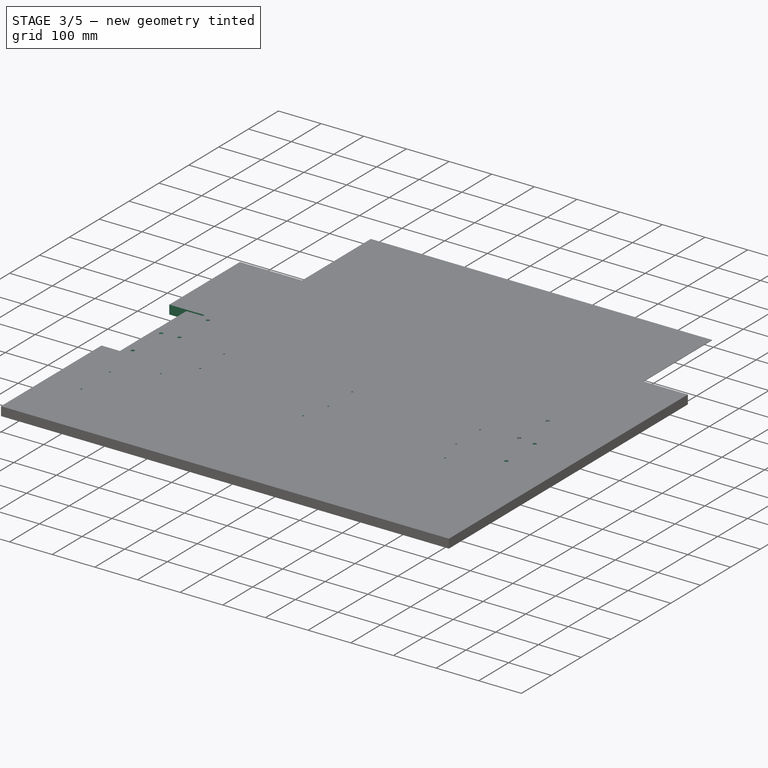
[diagram: stage 3 of 5 — iso view after this stage's code; geometry added in this stage tinted green]
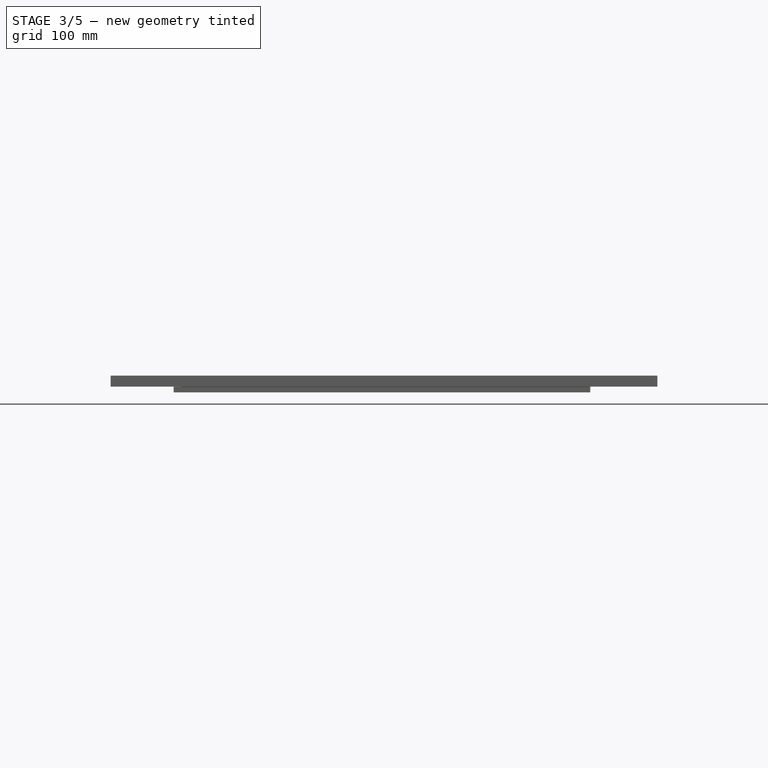
[diagram: stage 3 of 5 — front view after this stage's code; geometry added in this stage tinted green]
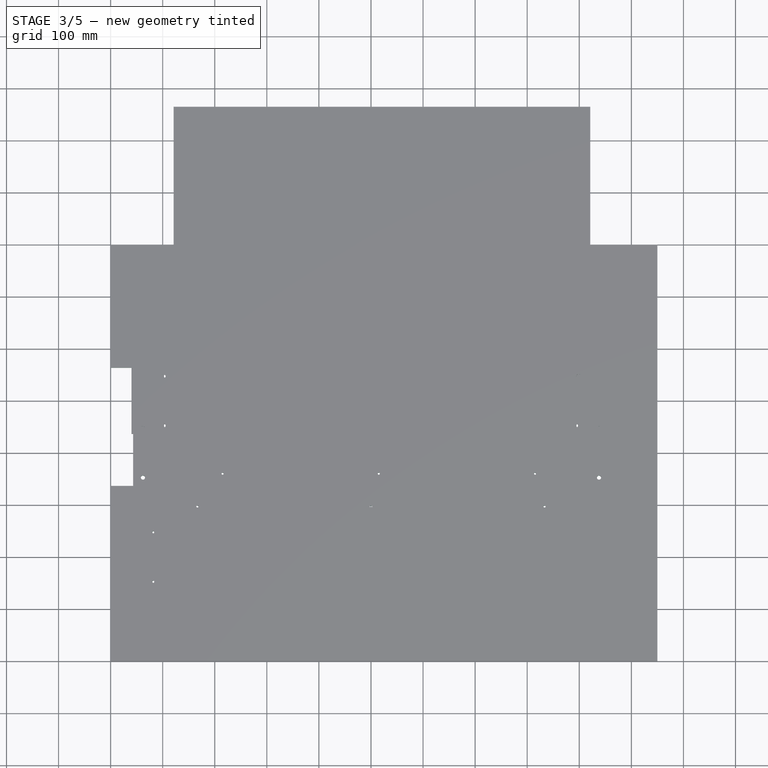
[diagram: stage 3 of 5 — top view after this stage's code; geometry added in this stage tinted green]
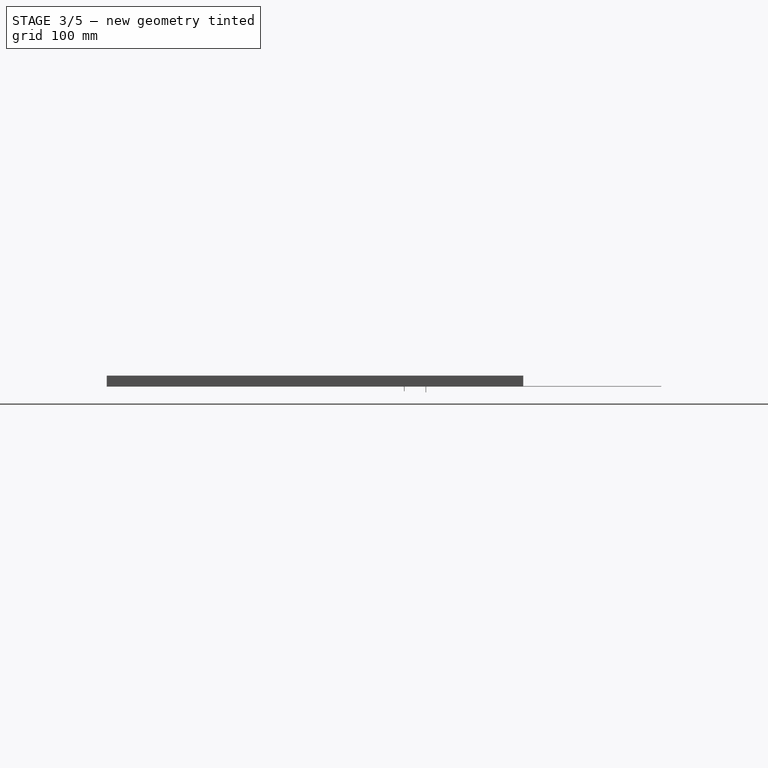
[diagram: stage 3 of 5 — right view after this stage's code; geometry added in this stage tinted green]
FEATURE [PartDesign::Mirrored] Mirrored002
  MirrorPlane = -> Sketch006 [V_Axis]
  Suppressed = false
FEATURE [PartDesign::Mirrored] Mirrored003
  MirrorPlane = -> Sketch006 [H_Axis]
  Suppressed = false
FEATURE [PartDesign::MultiTransform] MultiTransform
  BaseFeature = -> Pad006
  Originals = -> [Pad006]
  Suppressed = false
  Transformations = -> [Mirrored002,Mirrored003]
FEATURE [PartDesign::Body] Body002  label="filler_21"
  Group = -> [Sketch006,Pad006,MultiTransform,Mirrored002,Mirrored003]
  Origin = -> Origin006
  Tip = -> MultiTransform
FEATURE [Sketcher::SketchObject] Sketch007
  AttachmentSupport = -> [XY_Plane008]
  FullyConstrained = false
  MapMode = 5
  sketch-geometry (9):
    g0: LineSegment StartX=0 StartY=0 StartZ=0 EndX=19 EndY=0 EndZ=0
    g1: LineSegment StartX=19 StartY=0 StartZ=0 EndX=19 EndY=63.5 EndZ=0
    g2: LineSegment StartX=19 StartY=63.5 StartZ=0 EndX=0 EndY=63.5 EndZ=0
    g3: LineSegment StartX=0 StartY=63.5 StartZ=0 EndX=0 EndY=57 EndZ=0
    g4: ArcOfCircle CenterX=0 CenterY=44.5 CenterZ=0 NormalX=0 NormalY=0 NormalZ=1 AngleXU=0 Radius=6.5 StartAngle=4.7122 EndAngle=6.28319
    g5: ArcOfCircle CenterX=0 CenterY=50.5 CenterZ=0 NormalX=0 NormalY=0 NormalZ=1 AngleXU=0 Radius=6.5 StartAngle=3.65e-14 EndAngle=1.5708
    g6: LineSegment StartX=6.5 StartY=44.5 StartZ=0 EndX=6.5 EndY=50.5 EndZ=0
    g7: LineSegment StartX=-0.00123483 StartY=38 StartZ=0 EndX=0 EndY=0 EndZ=0
    g8: GeomPoint X=0 Y=47.5 Z=0
  constraints (23):
    c: Coincident(g0,g1)
    c: Coincident(g1,g2)
    c: Coincident(g2,g3)
    c: Coincident(g7,g0)
    c: Horizontal(g0)
    c: Horizontal(g2)
    c: Vertical(g1)
    c: Vertical(g3)
    c: Coincident(g0,g-1)
    c: DistanceX(g1) = 19
    c: DistanceY(g1) = 63.5
    c: Tangent(g4,g6) = -1.5708
    c: Tangent(g6,g5) = -1.5708
    c: Equal(g4,g5)
    c: PointOnObject(g4,g3)
    c: PointOnObject(g5,g3)
    c: Coincident(g3,g5)
    c: Coincident(g7,g4)
    c: DistanceY(g4,g3) = 19
    c: Diameter(g4) = 13
    c: PointOnObject(g8,g-2)
    c: Symmetric(g4,g5,g8)
    c: DistanceY(g8) = 47.5
FEATURE [PartDesign::Mirrored] Mirrored004
  MirrorPlane = -> Sketch007 [V_Axis]
  Suppressed = false
FEATURE [PartDesign::Mirrored] Mirrored005
  MirrorPlane = -> Sketch007 [H_Axis]
  Suppressed = false
FEATURE [PartDesign::Pad] Pad007
  Direction = (0,0,1)
  Length = 14.6
  Length2 = 10
  Profile = -> Sketch007
  ReferenceAxis = -> Sketch007 [N_Axis]
  Suppressed = false
  Type = 0
FEATURE [Sketcher::SketchObject] Sketch001
  AttachmentOffset = pos=(0,20,0) rot=(0,0,1;0rad)
  FullyConstrained = true
  MapMode = 5
  Placement = pos=(0,20,0) rot=(0,0,1;0rad)
  Support = -> [XY_Plane]
  expr: .Constraints.length = cutting_roll#<<disk_sketch>>.Constraints.r * 2 + 6mm
  sketch-geometry (5):
    g0: LineSegment StartX=1.59 StartY=0 StartZ=0 EndX=1.59 EndY=82 EndZ=0
    g1: LineSegment StartX=1.59 StartY=82 StartZ=0 EndX=-1.59 EndY=82 EndZ=0
    g2: LineSegment StartX=-1.59 StartY=82 StartZ=0 EndX=-1.59 EndY=0 EndZ=0
    g3: LineSegment StartX=-1.59 StartY=0 StartZ=0 EndX=0 EndY=0 EndZ=0
    g4: LineSegment StartX=0 StartY=0 StartZ=0 EndX=1.59 EndY=0 EndZ=0
  constraints (14):
    c: Coincident(g0,g1)
    c: Coincident(g1,g2)
    c: Horizontal(g1)
    c: Vertical(g0)
    c: Vertical(g2)
    c: PointOnObject(g2,g-1)
    c: Distance(g2) = 82  'length'
    c: Distance(g1) = 3.18  'width'
    c: Coincident(g3,g2)
    c: Coincident(g4,g0)
    c: Coincident(g3,g4)
    c: Horizontal(g4)
    c: Equal(g3,g4)
    c: Coincident(g-1,g3)
FEATURE [PartDesign::Pocket] Pocket
  BaseFeature = -> Pad
  Direction = (0,0,-1)
  Length = 5
  Length2 = 5
  Profile = -> Sketch001
  ReferenceAxis = -> Sketch001 [N_Axis]
  Reversed = true
  Type = 1
FEATURE [PartDesign::Pocket] Pocket001
  BaseFeature = -> Pad001
  Direction = (0,0,-1)
  Length = 5
  Length2 = 5
  Midplane = true
  Profile = -> Sketch003
  ReferenceAxis = -> Sketch003 [N_Axis]
  Type = 1
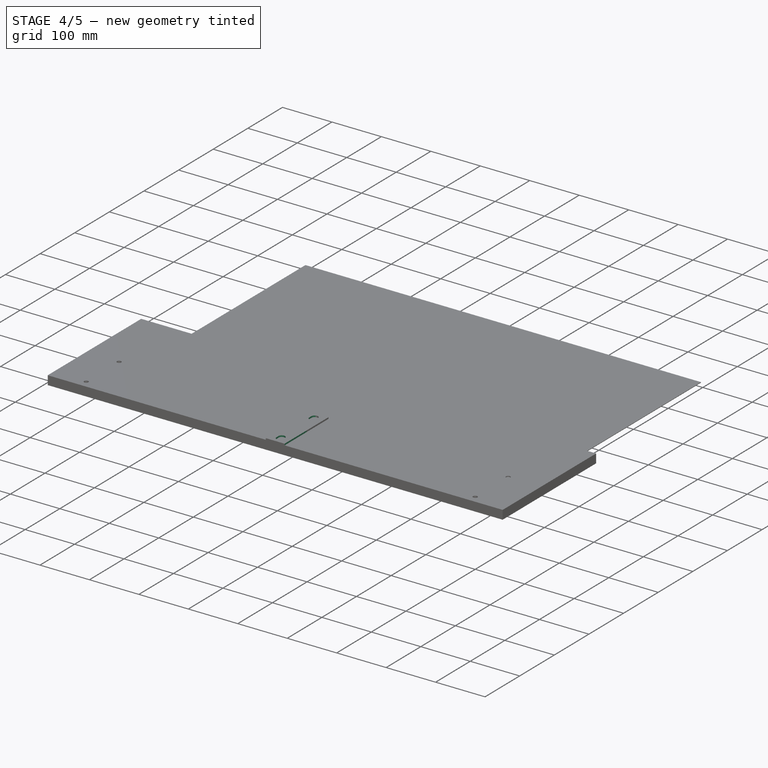
[diagram: stage 4 of 5 — iso view after this stage's code; geometry added in this stage tinted green]
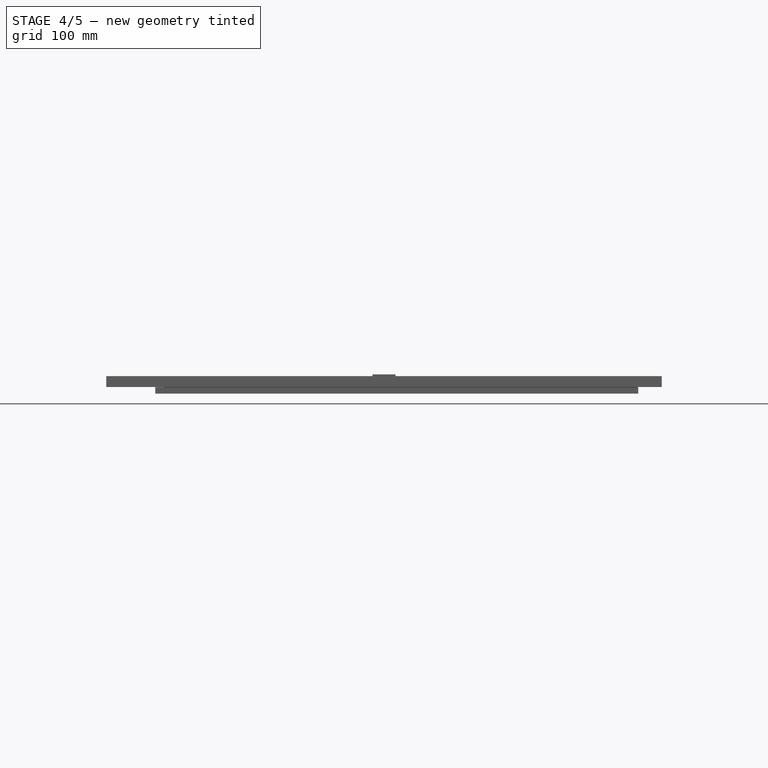
[diagram: stage 4 of 5 — front view after this stage's code; geometry added in this stage tinted green]
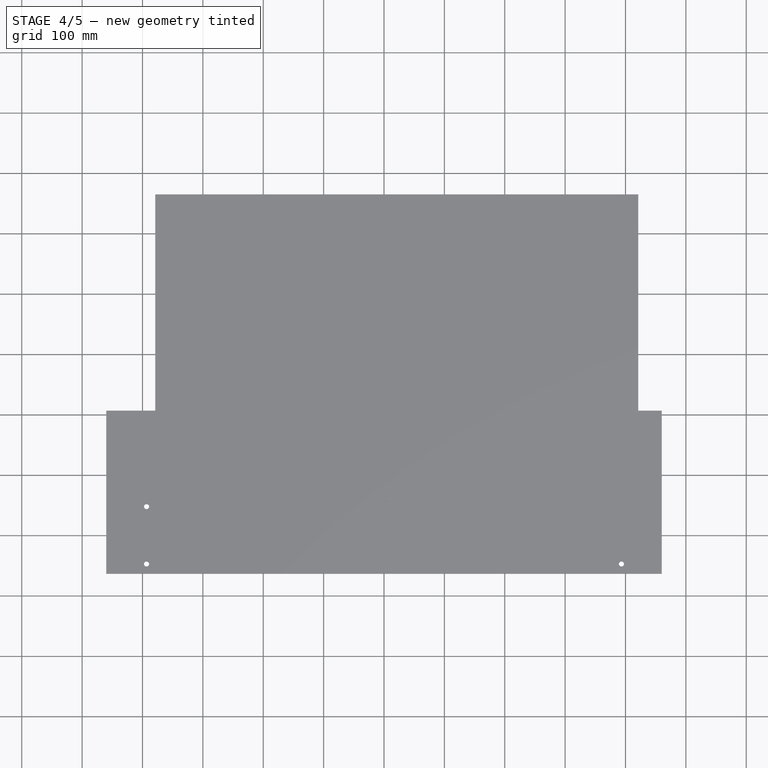
[diagram: stage 4 of 5 — top view after this stage's code; geometry added in this stage tinted green]
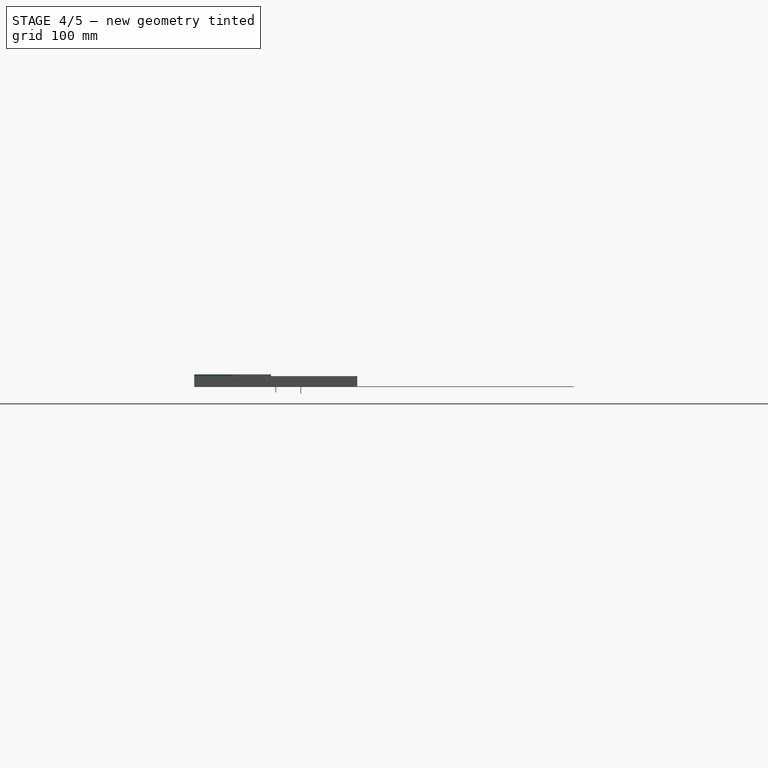
[diagram: stage 4 of 5 — right view after this stage's code; geometry added in this stage tinted green]
FEATURE [PartDesign::CoordinateSystem] Local_CS001  label="top001"
  AttacherType = Attacher::AttachEngine3D
  AttachmentOffset = pos=(0,0,10) rot=(0,0,1;0rad)
  AttachmentSupport = -> [XY_Plane005]
  MapMode = 5
  Placement = pos=(0,0,10) rot=(0,0,1;0rad)
  expr: .AttachmentOffset.Base.z = Pad004.Length
FEATURE [PartDesign::Body] plywood_top
  Group = -> [LCS_0003,Sketch004,Pad004,Local_CS001]
  Origin = -> Origin005
  Tip = -> Pad004
FEATURE [App::Link] plywood_top001
  AssemblyType = Part::Link
  AttachedBy = #Local_CS001
  AttachedTo = roll_75x710001#LCS_0
  AttachmentOffset = pos=(0,0,-36.85) rot=(0,0,1;0rad)
  LinkPlacement = pos=(0,5.7e-15,82) rot=(1,0,0;3.14159rad)
  LinkedObject = -> plywood_top
  Placement = pos=(0,5.7e-15,82) rot=(1,0,0;3.14159rad)
  SolverId = Asm4EE
  expr: .AttachmentOffset.Base.z = -(roll_75x710mm#roll_75_sketch.Constraints.r + 2.7 mm)
  expr: Placement = roll_75x710001.Placement * roll_75x710mm#LCS_0.Placement * AttachmentOffset * Local_CS001.Placement ^ -1
FEATURE [App::Link] Body001
  AssemblyType = Part::Link
  AttachedBy = #front
  AttachedTo = P201002#Local_CS001
  AttachmentOffset = pos=(0,0,-18) rot=(0,0,1;3.14159rad)
  LinkPlacement = pos=(-375.7,-300,75.35) rot=(1,0,0;3.14159rad)
  LinkedObject = -> <external крепление оси станка резки подложки.FCStd>#Body
  Placement = pos=(-375.7,-300,75.35) rot=(1,0,0;3.14159rad)
  SolverId = Asm4EE
  expr: Placement = P201002.Placement * P201_Bearing#Local_CS001.Placement * AttachmentOffset * __________________________________________________________________#front.Placement ^ -1
FEATURE [App::Link] _7BLY_0730NBB
  AttachedBy = #LCS_1
  AttachedTo = rs_100_r#Local_CS001
  LinkPlacement = pos=(0,121.3,40) rot=(0,-0.707107,-0.707107;3.14159rad)
  LinkedObject = -> <external 57BLY-0730NBB.FCStd>#Model
  Placement = pos=(0,121.3,40) rot=(0,-0.707107,-0.707107;3.14159rad)
  SolverId = Asm4EE
  expr: Placement = rs_100_r.Placement * RS_100_R#Local_CS001.Placement * AttachmentOffset * _7BLY_0730NBB#LCS_1.Placement ^ -1
FEATURE [App::Link] profile_to_bearing
  AssemblyType = Part::Link
  AttachedBy = #Local_CS
  AttachedTo = profile1030#begin
  AttachmentOffset = pos=(0,0,0) rot=(0,1,0;3.14159rad)
  LinkPlacement = pos=(-500,49.6644,13.0875) rot=(-0.13517,0.981559,-0.13517;1.58941rad)
  LinkedObject = -> <external ../../Downloads/probnik_krepezha_zazhima.FCStd>#Body002
  Placement = pos=(-500,49.6644,13.0875) rot=(-0.13517,0.981559,-0.13517;1.58941rad)
  SolverId = Asm4EE
  expr: Placement = profile1030.Placement * AL_Laser1030#begin.Placement * AttachmentOffset * probnik_krepezha_zazhima#Local_CS.Placement ^ -1
FEATURE [App::Link] profile_to_step_motor
  AssemblyType = Part::Link
  AttachedBy = #Local_CS005
  AttachedTo = profile1030#end
  LinkPlacement = pos=(482,49.6644,13.0875) rot=(-0.13517,0.981559,-0.13517;1.58941rad)
  LinkedObject = -> <external ../../Downloads/probnik_krepezha_zazhima.FCStd>#Body001
  Placement = pos=(482,49.6644,13.0875) rot=(-0.13517,0.981559,-0.13517;1.58941rad)
  SolverId = Asm4EE
  expr: Placement = profile1030.Placement * AL_Laser1030#end.Placement * AttachmentOffset * probnik_krepezha_zazhima#Local_CS005.Placement ^ -1
FEATURE [Sketcher::SketchObject] Sketch005  label="shield_fixture_sketch"
  AttachmentSupport = -> [XY_Plane003]
  FullyConstrained = true
  MapMode = 5
  expr: .Constraints.length = abs(<<plywood_cutting_roll_support001>>.AttachmentOffset.Base.z) - <<plywood_cutting_shield>>#Pad.Length
  sketch-geometry (4):
    g0: LineSegment StartX=0 StartY=0 StartZ=0 EndX=400 EndY=0 EndZ=0
    g1: LineSegment StartX=400 StartY=0 StartZ=0 EndX=400 EndY=79.3 EndZ=0
    g2: LineSegment StartX=400 StartY=79.3 StartZ=0 EndX=0 EndY=79.3 EndZ=0
    g3: LineSegment StartX=0 StartY=79.3 StartZ=0 EndX=0 EndY=0 EndZ=0
  constraints (11):
    c: Coincident(g0,g1)
    c: Coincident(g1,g2)
    c: Coincident(g2,g3)
    c: Coincident(g3,g0)
    c: Horizontal(g0)
    c: Horizontal(g2)
    c: Vertical(g1)
    c: Vertical(g3)
    c: Coincident(g0,g-1)
    c: Distance(g3) = 79.3  'length'
    c: Distance(g0) = 400  'width'
FEATURE [PartDesign::Pad] Pad005  label="shield_fixture_pad"
  Direction = (0,0,1)
  Length = 16
  Length2 = 10
  Profile = -> Sketch005
  ReferenceAxis = -> Sketch005 [N_Axis]
  Suppressed = false
  Type = 0
FEATURE [PartDesign::Mirrored] Mirrored001
  BaseFeature = -> Pad005
  MirrorPlane = -> Sketch005 [V_Axis]
  Originals = -> [Pad005]
  Suppressed = false
FEATURE [PartDesign::Body] shield_fixture
  Group = -> [LCS_0001,Sketch005,Pad005,Mirrored001]
  Origin = -> Origin003
  Tip = -> Mirrored001
FEATURE [Sketcher::SketchObject] Sketch006
  AttachmentSupport = -> [XY_Plane006]
  FullyConstrained = false
  MapMode = 5
  sketch-geometry (9):
    g0: LineSegment StartX=0 StartY=0 StartZ=0 EndX=19 EndY=0 EndZ=0
    g1: LineSegment StartX=19 StartY=0 StartZ=0 EndX=19 EndY=63.5 EndZ=0
    g2: LineSegment StartX=19 StartY=63.5 StartZ=0 EndX=0 EndY=63.5 EndZ=0
    g3: LineSegment StartX=0 StartY=63.5 StartZ=0 EndX=0 EndY=57 EndZ=0
    g4: ArcOfCircle CenterX=0 CenterY=44.5 CenterZ=0 NormalX=0 NormalY=0 NormalZ=1 AngleXU=0 Radius=6.5 StartAngle=4.7122 EndAngle=6.28319
    g5: ArcOfCircle CenterX=0 CenterY=50.5 CenterZ=0 NormalX=0 NormalY=0 NormalZ=1 AngleXU=0 Radius=6.5 StartAngle=3.65e-14 EndAngle=1.5708
    g6: LineSegment StartX=6.5 StartY=44.5 StartZ=0 EndX=6.5 EndY=50.5 EndZ=0
    g7: LineSegment StartX=-0.00123483 StartY=38 StartZ=0 EndX=0 EndY=0 EndZ=0
    g8: GeomPoint X=0 Y=47.5 Z=0
  constraints (23):
    c: Coincident(g0,g1)
    c: Coincident(g1,g2)
    c: Coincident(g2,g3)
    c: Coincident(g7,g0)
    c: Horizontal(g0)
    c: Horizontal(g2)
    c: Vertical(g1)
    c: Vertical(g3)
    c: Coincident(g0,g-1)
    c: DistanceX(g1) = 19
    c: DistanceY(g1) = 63.5
    c: Tangent(g4,g6) = -1.5708
    c: Tangent(g6,g5) = -1.5708
    c: Equal(g4,g5)
    c: PointOnObject(g4,g3)
    c: PointOnObject(g5,g3)
    c: Coincident(g3,g5)
    c: Coincident(g7,g4)
    c: DistanceY(g4,g3) = 19
    c: Diameter(g4) = 13
    c: PointOnObject(g8,g-2)
    c: Symmetric(g4,g5,g8)
    c: DistanceY(g8) = 47.5
FEATURE [PartDesign::Pad] Pad006
  Direction = (0,0,1)
  Length = 21
  Length2 = 10
  Profile = -> Sketch006
  ReferenceAxis = -> Sketch006 [N_Axis]
  Suppressed = false
  Type = 0
FEATURE [PartDesign::Mirrored] Mirrored
  BaseFeature = -> Pocket
  MirrorPlane = -> Sketch [V_Axis]
  Originals = -> [Pad]
FEATURE [PartDesign::LinearPattern] LinearPattern
  Direction = -> Sketch001 [H_Axis]
  Length = 349.65
  Occurrences = 8
  expr: Length = (<<cutting_roll>>#Pad.Length + <<cutting_roll>>#<<disk_sketch>>.Constraints.thickness_x2 * 2) * (Occurrences - 1)
FEATURE [PartDesign::CoordinateSystem] Local_CS
  AttacherType = Attacher::AttachEngine3D
  AttachmentOffset = pos=(0,61,3) rot=(0,0,1;0rad)
  MapMode = 5
  Placement = pos=(0,61,3) rot=(0,0,1;0rad)
  Support = -> [XY_Plane]
  expr: .AttachmentOffset.Base.y = Sketch001.AttachmentOffset.Base.y + Sketch001.Constraints.length / 2
  expr: .AttachmentOffset.Base.z = Pad.Length
FEATURE [App::FeaturePython] SetupSheet  # Path/CAM operation (typed FeaturePython)
  ClearanceHeightExpression = OpStockZMax+SetupSheet.ClearanceHeightOffset
  ClearanceHeightOffset = 5
  CoolantMode = 0
  CoolantModes = None | Flood | Mist
  FinalDepthExpression = OpFinalDepth
  HorizRapid = 0
  SafeHeightExpression = OpStockZMax+SetupSheet.SafeHeightOffset
  SafeHeightOffset = 3
  StartDepthExpression = OpStartDepth
  StepDownExpression = OpToolDiameter
  VertRapid = 0
FEATURE [Part::FeaturePython] ToolBit001  label="3.175mm Endmill007"  # Path/CAM toolbit (typed FeaturePython)
  BitPropertyNames = Chipload | CuttingEdgeHeight | Diameter | Flutes | Length | Material | ShankDiameter | SpindleDirection
  BitShape = <path>
  Chipload = 0
  CuttingEdgeHeight = 30
  Diameter = 3.17
  File = <userpath>/.local/share/FreeCAD/Macro/Bit/3.125mm_Endmill.fctb
  Flutes = 0
  Length = 10
  Material = 0
  ShankDiameter = 3
  ShapeName = endmill
  SpindleDirection = 0
FEATURE [Path::FeaturePython] __175mm_Endmill007  label="3.175mm Endmill008"  # Path/CAM operation (typed FeaturePython)
  HorizFeed = 51.6667
  HorizRapid = 0
  SpindleDir = 0
  SpindleSpeed = 18000
  Tool = -> ToolBit001
  ToolNumber = 2
  VertFeed = 16.6667
  VertRapid = 0
  expr: HorizRapid = SetupSheet.HorizRapid
  expr: VertRapid = SetupSheet.VertRapid
FEATURE [App::DocumentObjectGroup] Tools
  Group = -> [__175mm_Endmill007]
FEATURE [Path::FeaturePython] Pocket3D  # Path/CAM operation (typed FeaturePython)
  Active = true
  AdaptivePocketFinish = false
  AdaptivePocketStart = false
  AreaParams:
    Tolerance = 1e-07
    FitArcs = True
    Simplify = False
    CleanDistance = 0.0
    Accuracy = 0.01
    Unit = 1.0
    MinArcPoints = 4
    MaxArcPoints = 100
    ClipperScale = 10000000.0
    Fill = 0
    Coplanar = 0
    Reorient = True
    Outline = False
    Explode = False
    OpenMode = 0
    Deflection = 0.01
    SubjectFill = 0
    ClipFill = 0
    Offset = 0.0
    ExtraPass = 0
    Stepover = 0.0
    LastStepover = 0.0
    JoinType = 0
    EndType = 0
    MiterLimit = 2.0
    RoundPrecision = 0.0
    PocketMode = 1
    ToolRadius = 1.585
    PocketExtraOffset = 0.0
    PocketStepover = 3.17
    PocketLastStepover = 0.0
    FromCenter = True
    Angle = 45.0
    AngleShift = 0.0
    Shift = 0.0
    Thicken = False
    SectionCount = -1
    Stepdown = 1.0
    SectionOffset = 0.0
    SectionTolerance = 1e-06
    SectionMode = 2
    Project = False
  ClearanceHeight = 15
  CoolantMode = 0
  CutMode = 0
  CycleTime = 00:03:06
  ExtraOffset = 0
  FinalDepth = 0
  FinishDepth = 0.1
  HandleMultipleFeatures = 0
  KeepToolDown = true
  MinTravel = true
  OffsetPattern = 0
  OpFinalDepth = 0
  OpStartDepth = 13.17
  OpStockZMax = 10
  OpStockZMin = -0.1
  OpToolDiameter = 3.17
  PathParams = {'orientation': 1, 'sort_mode': 3, 'threshold': 3.171585, 'feedrate': 51.666666666666664, 'feedrate_v': 16.666666666666668, 'verbose': True, 'resume_height': 13.0, 'retraction': 15.0, 'return_end': True, 'preamble': False, 'start': Vector (0.0, 0.0, 0.0)}
  PocketLastStepOver = 0
  ProcessStockArea = false
  SafeHeight = 13
  SplitArcs = false
  StartAt = 0
  StartDepth = 13.17
  StartPoint = (0,0,0)
  StepDown = 3.17
  StepOver = 100
  ToolController = -> __175mm_Endmill007
  UseStartPoint = true
  ZigZagAngle = 45
  expr: ClearanceHeight = OpStockZMax + SetupSheet.ClearanceHeightOffset
  expr: FinalDepth = OpFinalDepth
  expr: OpFinalDepth = 0mm
  expr: SafeHeight = OpStockZMax + SetupSheet.SafeHeightOffset
  expr: StartDepth = OpStartDepth
  expr: StepDown = OpToolDiameter
FEATURE [App::DocumentObjectGroup] Operations
  Group = -> [Pocket3D]
FEATURE [PartDesign::LinearPattern] LinearPattern001
  Direction = -> Sketch001 [H_Axis]
  Length = 349.65
  Occurrences = 8
  Reversed = true
  expr: Length = LinearPattern.Length
  expr: Occurrences = LinearPattern.Occurrences
FEATURE [PartDesign::MultiTransform] MultiTransform
  BaseFeature = -> Mirrored
  Originals = -> [Pocket]
  Refine = true
  Transformations = -> [LinearPattern,LinearPattern001]
FEATURE [PartDesign::LinearPattern] LinearPattern002
  Direction = -> Sketch003 [H_Axis]
  Length = 349.65
  Occurrences = 8
  expr: Length = (<<cutting_roll>>#Pad.Length + <<cutting_roll>>#<<disk_sketch>>.Constraints.thickness_x2 * 2) * (Occurrences - 1)
FEATURE [PartDesign::LinearPattern] LinearPattern003
  Direction = -> Sketch003 [H_Axis]
  Length = 349.65
  Occurrences = 8
  Reversed = true
  expr: Length = LinearPattern002.Length
  expr: Occurrences = LinearPattern002.Occurrences
FEATURE [PartDesign::MultiTransform] MultiTransform001
  BaseFeature = -> Pocket001
  Originals = -> [Pocket001]
  Transformations = -> [LinearPattern002,LinearPattern003]
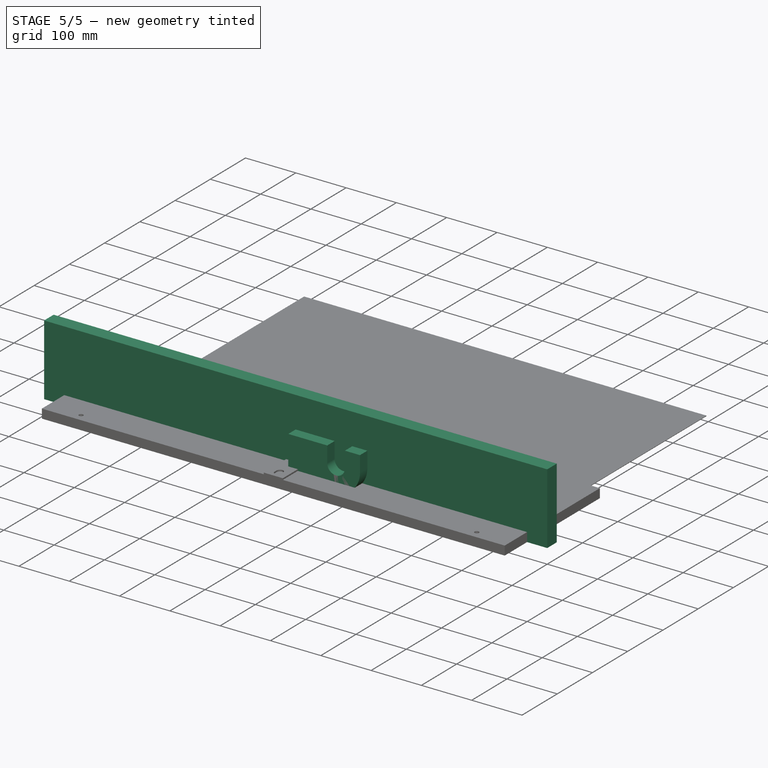
[diagram: stage 5 of 5 — iso view after this stage's code; geometry added in this stage tinted green]
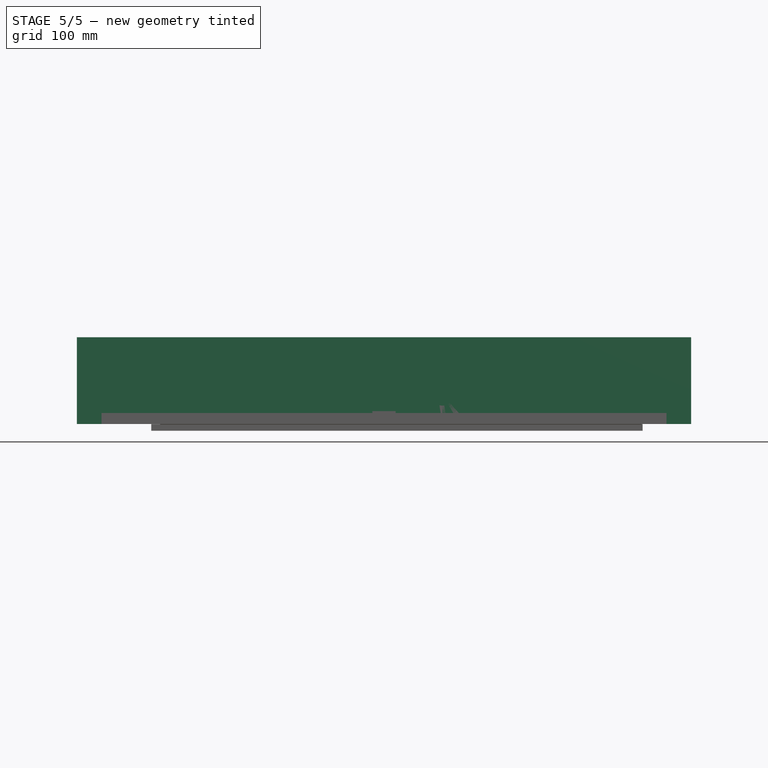
[diagram: stage 5 of 5 — front view after this stage's code; geometry added in this stage tinted green]
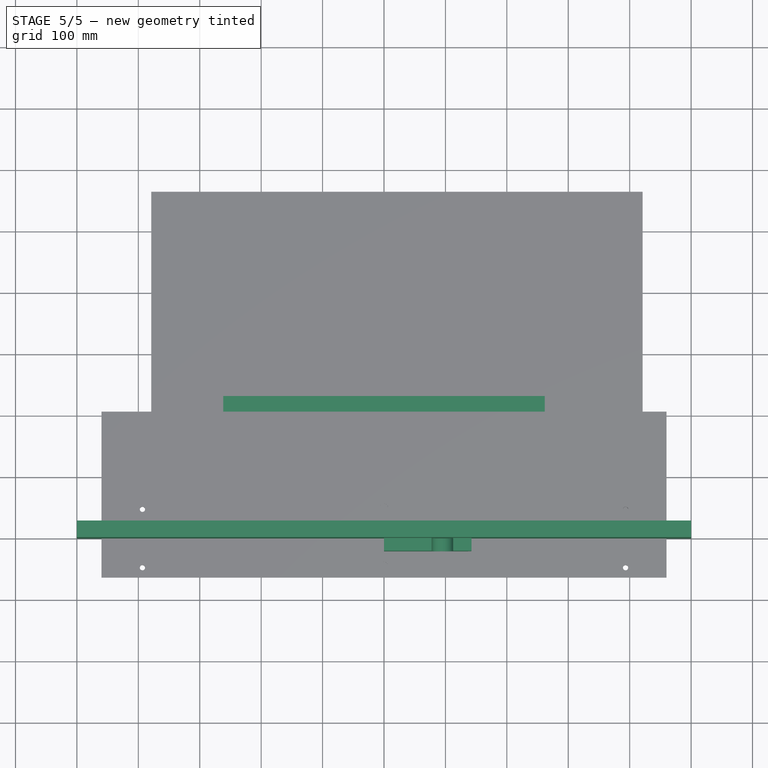
[diagram: stage 5 of 5 — top view after this stage's code; geometry added in this stage tinted green]
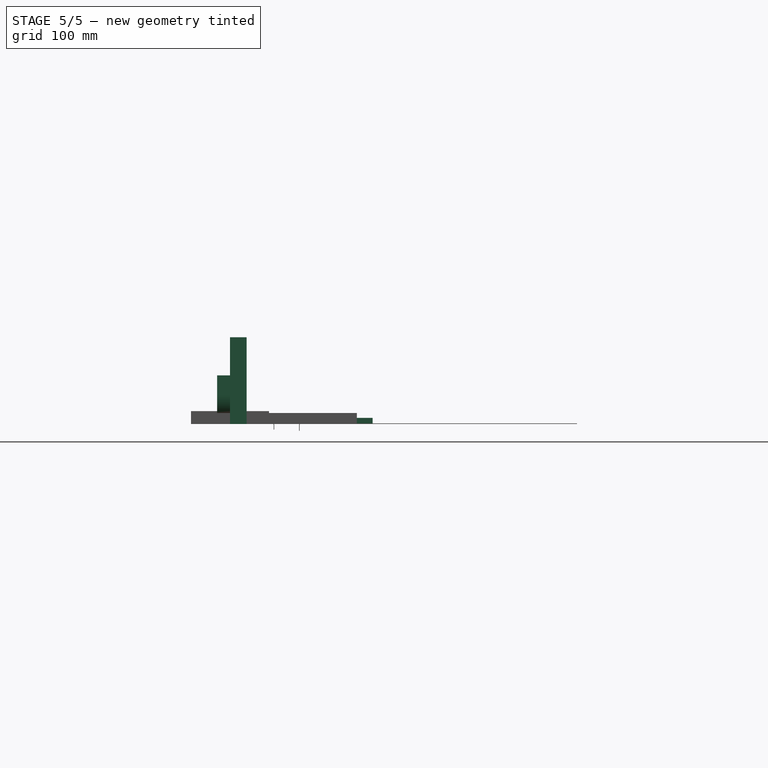
[diagram: stage 5 of 5 — right view after this stage's code; geometry added in this stage tinted green]
FEATURE [PartDesign::CoordinateSystem] LCS_Origin
  AttacherType = Attacher::AttachEngine3D
  AttachmentSupport = -> [X_Axis]
  MapMode = 2
FEATURE [App::DocumentObjectGroup] Constraints
FEATURE [App::FeaturePython] Variables  # WARN: FeaturePython — macro-defined, semantics opaque (R4)
  Type = App::PropertyContainer
  cutting_roll_disk_cutting_height = 10
  expr: cutting_roll_disk_cutting_height = 10 mm
FEATURE [App::DocumentObjectGroup] Configurations
FEATURE [App::Link] roll_75x710
  AssemblyType = Part::Link
  AttachedBy = #LCS_0
  AttachedTo = Parent Assembly#LCS_Origin
  AttachmentOffset = pos=(0,0,-34.15) rot=(0,0,1;0rad)
  LinkPlacement = pos=(0,0,-34.15) rot=(0,0,1;0rad)
  LinkedObject = -> <external roll_75x710mm.FCStd>#roll_75
  Placement = pos=(0,0,-34.15) rot=(0,0,1;0rad)
  SolverId = Asm4EE
  expr: .AttachmentOffset.Base.z = -<<roll_75x710mm>>#roll_75_sketch.Constraints.r
  expr: Placement = LCS_Origin.Placement * AttachmentOffset * roll_75x710mm#LCS_0.Placement ^ -1
FEATURE [App::Link] profile1030
  AssemblyType = Part::Link
  AttachedBy = #left_skew
  AttachedTo = Parent Assembly#LCS_Origin
  AttachmentOffset = pos=(0,68,0) rot=(0,-1,0;3.14159rad)
  LinkPlacement = pos=(-500,48.1204,8.3277) rot=(-0.623245,-0.623245,-0.472369;2.25899rad)
  LinkedObject = -> <external AL-Laser1030.FCStd>#Body
  Placement = pos=(-500,48.1204,8.3277) rot=(-0.623245,-0.623245,-0.472369;2.25899rad)
  SolverId = Asm4EE
  expr: Placement = LCS_Origin.Placement * AttachmentOffset * AL_Laser1030#left_skew.Placement ^ -1
FEATURE [App::Link] plywood_shield
  AssemblyType = Part::Link
  AttachedBy = #Local_CS
  AttachedTo = Parent Assembly#LCS_Origin
  AttachmentOffset = pos=(0,-100,0) rot=(0,0,1;3.14159rad)
  LinkPlacement = pos=(7.5e-15,-39,-3) rot=(0,0,1;3.14159rad)
  LinkedObject = -> <external plywood_cutting_shield.FCStd>#Body
  Placement = pos=(7.5e-15,-39,-3) rot=(0,0,1;3.14159rad)
  SolverId = Asm4EE
  expr: .AttachmentOffset.Base.y = <<cutting_roll>>.Placement.Base.y
  expr: Placement = LCS_Origin.Placement * AttachmentOffset * plywood_cutting_shield#Local_CS.Placement ^ -1
FEATURE [App::Link] cutting_roll
  AttachedBy = #center
  AttachedTo = Parent Assembly#LCS_Origin
  AttachmentOffset = pos=(12.8,-100,-28) rot=(0,0,1;0rad)
  LinkPlacement = pos=(-488.2,-100,-28) rot=(0,0,1;0rad)
  LinkedObject = -> <external cutting_roll.FCStd>#Model
  Placement = pos=(-488.2,-100,-28) rot=(0,0,1;0rad)
  SolverId = Asm4EE
  expr: .AttachmentOffset.Base.z = -<<cutting_roll>>#<<disk_sketch>>.Constraints.r + Variables.cutting_roll_disk_cutting_height * 1 mm
  expr: .Placement.Base.z = -<<cutting_roll>>#<<disk_sketch>>.Constraints.r + 10 mm
  expr: Placement = LCS_Origin.Placement * AttachmentOffset * cutting_roll#center.Placement ^ -1
FEATURE [App::Link] roll_75x710001
  AssemblyType = Part::Link
  AttachedBy = #LCS_0
  AttachedTo = Parent Assembly#LCS_Origin
  AttachmentOffset = pos=(0,0,35.15) rot=(1,0,0;3.14159rad)
  LinkPlacement = pos=(0,0,35.15) rot=(1,0,0;3.14159rad)
  LinkedObject = -> <external roll_75x710mm.FCStd>#roll_75
  Placement = pos=(0,0,35.15) rot=(1,0,0;3.14159rad)
  SolverId = Asm4EE
  expr: .AttachmentOffset.Base.z = <<roll_75x710mm>>#roll_75_sketch.Constraints.r + 1 mm
  expr: Placement = LCS_Origin.Placement * AttachmentOffset * roll_75x710mm#LCS_0.Placement ^ -1
FEATURE [App::Link] rs_100_r
  AssemblyType = Part::Link
  AttachedBy = #Local_CS
  AttachedTo = Parent Assembly#LCS_Origin
  AttachmentOffset = pos=(0,100,40) rot=(1,0,0;-1.5708rad)
  LinkPlacement = pos=(0,100,40) rot=(1,0,0;3.14159rad)
  LinkedObject = -> <external RS-100_R.FCStd>#Body
  Placement = pos=(0,100,40) rot=(1,0,0;3.14159rad)
  SolverId = Asm4EE
  expr: .AttachmentOffset.Base.z = <<RS-100_R>>#Sketch.Constraints.r - 10 mm
  expr: Placement = LCS_Origin.Placement * AttachmentOffset * RS_100_R#Local_CS.Placement ^ -1
FEATURE [Sketcher::SketchObject] Sketch
  AttachmentSupport = -> [YZ_Plane001]
  FullyConstrained = false
  MapMode = 5
  Placement = pos=(0,0,0) rot=(0.57735,0.57735,0.57735;2.0944rad)
  sketch-geometry (4):
    g0: LineSegment StartX=0 StartY=0 StartZ=0 EndX=27.0682 EndY=0 EndZ=0
    g1: LineSegment StartX=27.0682 StartY=0 StartZ=0 EndX=27.0682 EndY=141.381 EndZ=0
    g2: LineSegment StartX=27.0682 StartY=141.381 StartZ=0 EndX=0 EndY=141.381 EndZ=0
    g3: LineSegment StartX=0 StartY=141.381 StartZ=0 EndX=0 EndY=0 EndZ=0
  constraints (9):
    c: Coincident(g0,g1)
    c: Coincident(g1,g2)
    c: Coincident(g2,g3)
    c: Coincident(g3,g0)
    c: Horizontal(g0)
    c: Horizontal(g2)
    c: Vertical(g1)
    c: Vertical(g3)
    c: Coincident(g0,g-1)
FEATURE [PartDesign::Pad] Pad
  Direction = (1,-2e-16,3e-16)
  Length = 1000
  Length2 = 10
  Midplane = true
  Placement = pos=(0,0,0) rot=(0.57735,0.57735,0.57735;2.0944rad)
  Profile = -> Sketch
  ReferenceAxis = -> Sketch [N_Axis]
  Suppressed = false
  Type = 0
FEATURE [PartDesign::Body] Body
  Group = -> [Sketch,Pad]
  Origin = -> Origin001
  Placement = pos=(0,54,-143) rot=(0,0,1;0rad)
  Tip = -> Pad
FEATURE [App::Link] P204
  AssemblyType = Part::Link
  AttachedBy = #Local_CS002
  AttachedTo = cutting_roll#left_20mm
  LinkPlacement = pos=(-437.9,-100,-61.3) rot=(0,0,-1;1.5708rad)
  LinkedObject = -> <external P204_Bearing.FCStd>#Body
  Placement = pos=(-437.9,-100,-61.3) rot=(0,0,-1;1.5708rad)
  SolverId = Asm4EE
  expr: Placement = cutting_roll.Placement * cutting_roll#left_20mm.Placement * AttachmentOffset * P204_Bearing#Local_CS002.Placement ^ -1
FEATURE [App::Link] P204001
  AssemblyType = Part::Link
  AttachedBy = #Local_CS001
  AttachedTo = cutting_roll#right_20mm
  LinkPlacement = pos=(437.9,-100,-61.3) rot=(0,0,-1;1.5708rad)
  LinkedObject = -> <external P204_Bearing.FCStd>#Body
  Placement = pos=(437.9,-100,-61.3) rot=(0,0,-1;1.5708rad)
  SolverId = Asm4EE
  expr: Placement = cutting_roll.Placement * cutting_roll#right_20mm.Placement * AttachmentOffset * P204_Bearing#Local_CS001.Placement ^ -1
FEATURE [App::Link] P201
  AssemblyType = Part::Link
  AttachedBy = #Local_CS001
  AttachedTo = roll_75x710#Local_CS001
  AttachmentOffset = pos=(0,0,5) rot=(0,0,1;0rad)
  LinkPlacement = pos=(-398.3,7.8e-14,-64.35) rot=(0,0,1;1.5708rad)
  LinkedObject = -> <external P201_Bearing.FCStd>#Body
  Placement = pos=(-398.3,7.8e-14,-64.35) rot=(0,0,1;1.5708rad)
  SolverId = Asm4EE
  expr: Placement = roll_75x710.Placement * roll_75x710mm#Local_CS001.Placement * AttachmentOffset * P201_Bearing#Local_CS001.Placement ^ -1
FEATURE [App::Link] P201001
  AssemblyType = Part::Link
  AttachedBy = #Local_CS001
  AttachedTo = roll_75x710#Local_CS
  AttachmentOffset = pos=(0,0,5) rot=(0,0,1;0rad)
  LinkPlacement = pos=(398.3,-9.47e-14,-64.35) rot=(0,0,-1;1.5708rad)
  LinkedObject = -> <external P201_Bearing.FCStd>#Body
  Placement = pos=(398.3,-9.47e-14,-64.35) rot=(0,0,-1;1.5708rad)
  SolverId = Asm4EE
  expr: Placement = roll_75x710.Placement * roll_75x710mm#Local_CS.Placement * AttachmentOffset * P201_Bearing#Local_CS001.Placement ^ -1
FEATURE [PartDesign::CoordinateSystem] LCS_0
  AttacherType = Attacher::AttachEngine3D
  AttachmentSupport = -> [X_Axis003]
  MapMode = 2
FEATURE [Sketcher::SketchObject] Sketch_1  label="basement_sketch"
  AttachmentSupport = -> [XY_Plane002]
  FullyConstrained = true
  MapMode = 5
  sketch-geometry (5):
    g0: LineSegment StartX=-500 StartY=-500 StartZ=0 EndX=550 EndY=-500 EndZ=0
    g1: LineSegment StartX=550 StartY=-500 StartZ=0 EndX=550 EndY=300 EndZ=0
    g2: LineSegment StartX=550 StartY=300 StartZ=0 EndX=-500 EndY=300 EndZ=0
    g3: LineSegment StartX=-500 StartY=300 StartZ=0 EndX=-500 EndY=-500 EndZ=0
    g4: GeomPoint X=-500 Y=-500 Z=0
  constraints (14):
    c: Coincident(g0,g1)
    c: Coincident(g1,g2)
    c: Coincident(g2,g3)
    c: Coincident(g3,g0)
    c: Horizontal(g0)
    c: Horizontal(g2)
    c: Vertical(g1)
    c: Vertical(g3)
    c: DistanceX(g0) = 550
    c: DistanceX(g4,g0) = 1050  'width'
    c: DistanceY(g0) = -500
    c: Distance(g1) = 800
    c: Distance(g-1,g3) = 500
    c: Coincident(g4,g0)
FEATURE [PartDesign::Pad] Pad001  label="basement_pad"
  Direction = (0,0,1)
  Length = 21
  Length2 = 10
  Profile = -> Sketch_1
  ReferenceAxis = -> Sketch_1 [N_Axis]
  Suppressed = false
  Type = 0
FEATURE [PartDesign::CoordinateSystem] top
  AttacherType = Attacher::AttachEngine3D
  AttachmentOffset = pos=(0,0,21) rot=(0,0,1;0rad)
  AttachmentSupport = -> [XY_Plane002]
  MapMode = 5
  Placement = pos=(0,0,21) rot=(0,0,1;0rad)
  expr: .AttachmentOffset.Base.z = Pad001.Length
FEATURE [App::Link] plywood_cutting_roll_support001
  LinkPlacement = pos=(0,0,-103.3) rot=(0,0,1;0rad)
  LinkedObject = -> plywood_cutting_roll_support
  Placement = pos=(0,0,-103.3) rot=(0,0,1;0rad)
  expr: Placement = LCS_Origin.Placement * AttachmentOffset * top.Placement ^ -1
FEATURE [PartDesign::CoordinateSystem] LCS_0001
  AttacherType = Attacher::AttachEngine3D
  AttachmentSupport = -> [X_Axis004]
  MapMode = 2
FEATURE [App::Link] shield_fixture001
  AssemblyType = Part::Link
  AttachedBy = #LCS_0001
  AttachedTo = Parent Assembly#LCS_Origin
  AttachmentOffset = pos=(0,-195,-82.3) rot=(1,0,0;1.5708rad)
  LinkPlacement = pos=(0,-195,-82.3) rot=(1,0,0;1.5708rad)
  LinkedObject = -> shield_fixture
  Placement = pos=(0,-195,-82.3) rot=(1,0,0;1.5708rad)
  SolverId = Asm4EE
  expr: .AttachmentOffset.Base.z = plywood_cutting_roll_support001.Placement.Base.z + <<basement_pad>>.Length
  expr: Placement = LCS_Origin.Placement * AttachmentOffset * LCS_0001.Placement ^ -1
FEATURE [PartDesign::CoordinateSystem] LCS_0002
  AttacherType = Attacher::AttachEngine3D
  AttachmentSupport = -> [X_Axis005]
  MapMode = 2
FEATURE [Sketcher::SketchObject] Sketch002
  AttachmentSupport = -> [XZ_Plane004]
  FullyConstrained = true
  MapMode = 5
  Placement = pos=(0,0,0) rot=(1,0,0;1.5708rad)
  expr: .Constraints.height = <<shield_fixture_sketch>>.Constraints.length
  expr: Constraints[9] = -(-<<cutting_roll>>.Placement.Base.y + shield_fixture001.Placement.Base.y)
  sketch-geometry (10):
    g0: LineSegment StartX=0 StartY=0 StartZ=0 EndX=95 EndY=0 EndZ=0
    g1: LineSegment StartX=142.5 StartY=47.5 StartZ=0 EndX=142.5 EndY=79.3 EndZ=0
    g2: LineSegment StartX=112.5 StartY=79.3 StartZ=0 EndX=112.5 EndY=47.5 EndZ=0
    g3: LineSegment StartX=77.5 StartY=47.5 StartZ=0 EndX=77.5 EndY=79.3 EndZ=0
    g4: LineSegment StartX=0 StartY=79.3 StartZ=0 EndX=0 EndY=0 EndZ=0
    g5: ArcOfCircle CenterX=95 CenterY=47.5 CenterZ=0 NormalX=0 NormalY=0 NormalZ=1 AngleXU=0 Radius=17.5 StartAngle=3.14159 EndAngle=6.28319
    g6: LineSegment StartX=77.5 StartY=79.3 StartZ=0 EndX=0 EndY=79.3 EndZ=0
    g7: LineSegment StartX=112.5 StartY=79.3 StartZ=0 EndX=142.5 EndY=79.3 EndZ=0
    g8: ArcOfCircle CenterX=95 CenterY=47.5 CenterZ=0 NormalX=0 NormalY=0 NormalZ=1 AngleXU=0 Radius=47.5 StartAngle=4.71239 EndAngle=6.28319
    g9: GeomPoint X=142.5 Y=0 Z=0
  constraints (25):
    c: Coincident(g-1,g0)
    c: PointOnObject(g9,g-1)
    c: Vertical(g1)
    c: Vertical(g2)
    c: Vertical(g3)
    c: Coincident(g4,g0)
    c: Horizontal(g3,g2)
    c: Tangent(g5,g2) = 1.5708
    c: Tangent(g5,g3) = 1.5708
    c: DistanceX(g5) = 95
    c: Diameter(g5) = 35
    c: Coincident(g6,g3)
    c: PointOnObject(g6,g-2)
    c: Horizontal(g6)
    c: Coincident(g7,g2)
    c: Horizontal(g7)
    c: Coincident(g1,g7)
    c: Coincident(g4,g6)
    c: DistanceY(g4,g4) = 79.3  'height'
    c: DistanceY(g5) = 47.5
    c: PointOnObject(g9,g0)
    c: PointOnObject(g9,g1)
    c: Tangent(g0,g8) = -1.5708
    c: Tangent(g1,g8) = -1.5708
    c: Coincident(g8,g5)
FEATURE [PartDesign::Pad] Pad003
  Direction = (0,-1,2e-16)
  Length = 21
  Length2 = 10
  Placement = pos=(0,0,0) rot=(1,0,0;1.5708rad)
  Profile = -> Sketch002
  ReferenceAxis = -> Sketch002 [N_Axis]
  Suppressed = false
  Type = 0
FEATURE [PartDesign::Body] shield_fixture_lengthwise
  Group = -> [LCS_0002,Sketch002,Pad003]
  Origin = -> Origin004
  Tip = -> Pad003
FEATURE [App::Link] shield_fixture_lengthwise001
  AssemblyType = Part::Link
  AttachedBy = #LCS_0002
  AttachedTo = shield_fixture001#LCS_0001
  AttachmentOffset = pos=(0,0,0) rot=(0.57735,-0.57735,-0.57735;4.18879rad)
  LinkPlacement = pos=(0,-195,-82.3) rot=(0,0,-1;4.71239rad)
  LinkedObject = -> shield_fixture_lengthwise
  Placement = pos=(0,-195,-82.3) rot=(0,0,-1;4.71239rad)
  SolverId = Asm4EE
  expr: Placement = shield_fixture001.Placement * LCS_0001.Placement * AttachmentOffset * LCS_0002.Placement ^ -1
FEATURE [Sketcher::SketchObject] Sketch003
  AttachmentSupport = -> [XY_Plane002]
  FullyConstrained = true
  MapMode = 5
  expr: Constraints[15] = P204.Placement.Base.x
  expr: Constraints[16] = P204001.Placement.Base.x
  expr: Constraints[24] = P201001.Placement.Base.x
  expr: Constraints[2] = P201.Placement.Base.x
  expr: Constraints[49] = roll_75x710.Placement.Base.y - cutting_roll.Placement.Base.y
  expr: Constraints[59] = <<top_opening_axis_pearing>>.Placement.Base.x
  expr: Constraints[60] = <<top_opening_axis_pearing>>.Placement.Base.y
  sketch-geometry (27):
    g0: Circle CenterX=-398.3 CenterY=-47.5 CenterZ=0 NormalX=0 NormalY=0 NormalZ=1 AngleXU=0 Radius=4
    g1: Circle CenterX=-398.3 CenterY=47.5 CenterZ=0 NormalX=0 NormalY=0 NormalZ=1 AngleXU=0 Radius=4
    g2: Circle CenterX=398.3 CenterY=-47.5 CenterZ=0 NormalX=0 NormalY=0 NormalZ=1 AngleXU=0 Radius=4
    g3: Circle CenterX=398.3 CenterY=47.5 CenterZ=0 NormalX=0 NormalY=0 NormalZ=1 AngleXU=0 Radius=4
    g4: Circle CenterX=-437.9 CenterY=-147.5 CenterZ=0 NormalX=0 NormalY=0 NormalZ=1 AngleXU=0 Radius=4
    g5: Circle CenterX=-437.9 CenterY=-52.5 CenterZ=0 NormalX=0 NormalY=0 NormalZ=1 AngleXU=0 Radius=4
    g6: Circle CenterX=437.9 CenterY=-147.5 CenterZ=0 NormalX=0 NormalY=0 NormalZ=1 AngleXU=0 Radius=4
    g7: Circle CenterX=437.9 CenterY=-52.5 CenterZ=0 NormalX=0 NormalY=0 NormalZ=1 AngleXU=0 Radius=4
    g8: Circle CenterX=15 CenterY=-140 CenterZ=0 NormalX=0 NormalY=0 NormalZ=1 AngleXU=0 Radius=2
    g9: Circle CenterX=15 CenterY=-60 CenterZ=0 NormalX=0 NormalY=0 NormalZ=1 AngleXU=0 Radius=2
    g10: Circle CenterX=315 CenterY=-60 CenterZ=0 NormalX=0 NormalY=0 NormalZ=1 AngleXU=0 Radius=2
    g11: Circle CenterX=315 CenterY=-140 CenterZ=0 NormalX=0 NormalY=0 NormalZ=1 AngleXU=0 Radius=2
    g12: Circle CenterX=-285 CenterY=-140 CenterZ=0 NormalX=0 NormalY=0 NormalZ=1 AngleXU=0 Radius=2
    g13: Circle CenterX=-285 CenterY=-60 CenterZ=0 NormalX=0 NormalY=0 NormalZ=1 AngleXU=0 Radius=2
    g14: LineSegment StartX=-398.3 StartY=-47.5 StartZ=0 EndX=-398.3 EndY=0 EndZ=0
    g15: LineSegment StartX=-398.3 StartY=0 StartZ=0 EndX=-398.3 EndY=47.5 EndZ=0
    g16: LineSegment StartX=-437.9 StartY=-147.5 StartZ=0 EndX=-437.9 EndY=-100 EndZ=0
    g17: LineSegment StartX=-437.9 StartY=-100 StartZ=0 EndX=-437.9 EndY=-52.5 EndZ=0
    g18: LineSegment StartX=315 StartY=-140 StartZ=0 EndX=315 EndY=-100 EndZ=0
    g19: LineSegment StartX=315 StartY=-100 StartZ=0 EndX=315 EndY=-60 EndZ=0
    g20: Circle CenterX=-418 CenterY=-252.5 CenterZ=0 NormalX=0 NormalY=0 NormalZ=1 AngleXU=0 Radius=2
    g21: Circle CenterX=-418 CenterY=-347.5 CenterZ=0 NormalX=0 NormalY=0 NormalZ=1 AngleXU=0 Radius=2
    g22: LineSegment StartX=-418 StartY=-347.5 StartZ=0 EndX=-418 EndY=-300 EndZ=0
    g23: LineSegment StartX=-418 StartY=-300 StartZ=0 EndX=-418 EndY=-252.5 EndZ=0
    g24: Circle CenterX=0 CenterY=-203 CenterZ=0 NormalX=0 NormalY=0 NormalZ=1 AngleXU=0 Radius=2
    g25: Circle CenterX=333.333 CenterY=-203 CenterZ=0 NormalX=0 NormalY=0 NormalZ=1 AngleXU=0 Radius=2
    g26: Circle CenterX=-333.333 CenterY=-203 CenterZ=0 NormalX=0 NormalY=0 NormalZ=1 AngleXU=0 Radius=2
  constraints (74):
    c: Vertical(g0,g1)
    c: DistanceY(g0,g1) = 95
    c: DistanceX(g0) = -398.3
    c: Diameter(g0) = 8
    c: Equal(g2,g3)
    c: Equal(g3,g1)
    c: Equal(g1,g0)
    c: Vertical(g6,g7)
    c: Vertical(g5,g4)
    c: Horizontal(g4,g6)
    c: Horizontal(g7,g5)
    c: Equal(g4,g5)
    c: Equal(g5,g7)
    c: Equal(g7,g6)
    c: Equal(g6,g0)
    c: DistanceX(g4) = -437.9
    c: DistanceX(g6) = 437.9
    c: Coincident(g14,g0)
    c: Coincident(g15,g1)
    c: Coincident(g16,g4)
    c: Coincident(g17,g5)
    c: Vertical(g2,g3)
    c: Horizontal(g2,g0)
    c: Horizontal(g3,g1)
    c: DistanceX(g2) = 398.3
    c: Equal(g13,g9)
    c: Equal(g9,g10)
    c: Equal(g10,g12)
    c: Equal(g12,g8)
    c: Equal(g8,g11)
    c: Horizontal(g12,g8)
    c: Horizontal(g13,g9)
    c: Vertical(g11,g10)
    c: Diameter(g8) = 4
    c: Symmetric(g11,g12,g8)
    c: Symmetric(g13,g10,g9)
    c: Coincident(g14,g15)
    c: Coincident(g16,g17)
    c: Equal(g15,g14)
    c: Equal(g17,g16)
    c: Vertical(g14)
    c: Vertical(g16)
    c: Equal(g14,g16)
    c: Coincident(g18,g11)
    c: Vertical(g18)
    c: Coincident(g18,g19)
    c: Coincident(g19,g10)
    c: Equal(g18,g19)
    c: Horizontal(g18,g16)
    c: DistanceY(g7,g3) = 100
    c: Coincident(g22,g21)
    c: Vertical(g22)
    c: Coincident(g23,g22)
    c: Coincident(g23,g20)
    c: Vertical(g23)
    c: Equal(g22,g23)
    c: Equal(g21,g20)
    c: Equal(g23,g15)
    c: PointOnObject(g14,g-1)
    c: DistanceX(g22) = -418
    c: DistanceY(g22) = -300
    c: DistanceY(g12,g13) = 80
    c: Horizontal(g26,g25)
    c: Symmetric(g26,g25,g24)
    c: DistanceY(g24) = -203
    c: Equal(g26,g24)
    c: Equal(g24,g25)
    c: Equal(g25,g8)
    c: DistanceX(g25) = 333.333
    c: Equal(g20,g8)
    c: DistanceX(g8) = 15
    c: PointOnObject(g24,g-2)
    c: Vertical(g8,g9)
    c: DistanceX(g12,g8) = 300
FEATURE [PartDesign::Pocket] Pocket
  BaseFeature = -> Pad001
  Direction = (0,0,-1)
  Length = 5
  Length2 = 5
  Midplane = true
  Profile = -> Sketch003
  ReferenceAxis = -> Sketch003 [N_Axis]
  Suppressed = false
  Type = 1
FEATURE [App::Link] P201002
  AssemblyType = Part::Link
  AttachedBy = #Local_CS
  AttachedTo = plywood_cutting_roll_support001#Local_CS
  AttachmentOffset = pos=(0,0,105.45) rot=(0,0,1;1.5708rad)
  LinkPlacement = pos=(-418,-300,23.15) rot=(0,0,1;1.5708rad)
  LinkedObject = -> <external P201_Bearing.FCStd>#Body
  Placement = pos=(-418,-300,23.15) rot=(0,0,1;1.5708rad)
  SolverId = Asm4EE
  expr: .AttachmentOffset.Base.z = -(plywood_top001.AttachmentOffset.Base.z + plywood_cutting_roll_support.AttachmentOffset.Base.z) - <<крепление оси станка резки подложки>>#Sketch006.Constraints.hole_height + 8.3 mm
  expr: Placement = plywood_cutting_roll_support001.Placement * Local_CS.Placement * AttachmentOffset * P201_Bearing#Local_CS.Placement ^ -1
FEATURE [PartDesign::CoordinateSystem] Local_CS  label="top_opening_axis_pearing"
  AttacherType = Attacher::AttachEngine3D
  AttachmentOffset = pos=(-418,-300,21) rot=(0,0,1;0rad)
  AttachmentSupport = -> [XY_Plane002]
  MapMode = 5
  Placement = pos=(-418,-300,21) rot=(0,0,1;0rad)
  expr: .AttachmentOffset.Base.z = Pad001.Length
FEATURE [App::Link] P201003
  AssemblyType = Part::Link
  AttachedBy = #Local_CS001
  AttachedTo = roll_75x710001#Local_CS
  LinkPlacement = pos=(393.3,9.86e-14,65.35) rot=(0.707107,0.707107,0;3.14159rad)
  LinkedObject = -> <external P201_Bearing.FCStd>#Body
  Placement = pos=(393.3,9.86e-14,65.35) rot=(0.707107,0.707107,0;3.14159rad)
  SolverId = Asm4EE
  expr: Placement = roll_75x710001.Placement * roll_75x710mm#Local_CS.Placement * AttachmentOffset * P201_Bearing#Local_CS001.Placement ^ -1
FEATURE [App::Link] P201004
  AssemblyType = Part::Link
  AttachedBy = #Local_CS001
  AttachedTo = roll_75x710001#Local_CS001
  LinkPlacement = pos=(-393.3,-7.18e-14,65.35) rot=(0.707107,-0.707107,0;3.14159rad)
  LinkedObject = -> <external P201_Bearing.FCStd>#Body
  Placement = pos=(-393.3,-7.18e-14,65.35) rot=(0.707107,-0.707107,0;3.14159rad)
  SolverId = Asm4EE
  expr: Placement = roll_75x710001.Placement * roll_75x710mm#Local_CS001.Placement * AttachmentOffset * P201_Bearing#Local_CS001.Placement ^ -1
FEATURE [PartDesign::CoordinateSystem] LCS_0003
  AttacherType = Attacher::AttachEngine3D
  AttachmentSupport = -> [X_Axis006]
  MapMode = 2
FEATURE [Sketcher::SketchObject] Sketch004
  AttachmentSupport = -> [XY_Plane005]
  FullyConstrained = false
  MapMode = 5
  sketch-geometry (5):
    g0: LineSegment StartX=-261.681 StartY=232.193 StartZ=0 EndX=-261.681 EndY=-63.5 EndZ=0
    g1: LineSegment StartX=-261.681 StartY=-63.5 StartZ=0 EndX=261.681 EndY=-63.5 EndZ=0
    g2: LineSegment StartX=261.681 StartY=-63.5 StartZ=0 EndX=261.681 EndY=232.193 EndZ=0
    g3: LineSegment StartX=261.681 StartY=232.193 StartZ=0 EndX=-261.681 EndY=232.193 EndZ=0
    g4: GeomPoint X=0 Y=84.3466 Z=0
  constraints (11):
    c: Coincident(g0,g1)
    c: Coincident(g1,g2)
    c: Coincident(g2,g3)
    c: Coincident(g3,g0)
    c: Horizontal(g1)
    c: Horizontal(g3)
    c: Vertical(g0)
    c: Vertical(g2)
    c: Symmetric(g1,g0,g4)
    c: PointOnObject(g4,g-2)
    c: Distance(g-1,g1) = 63.5
FEATURE [PartDesign::Pad] Pad004
  Direction = (0,0,1)
  Length = 10
  Length2 = 10
  Profile = -> Sketch004
  ReferenceAxis = -> Sketch004 [N_Axis]
  Suppressed = false
  Type = 0
FEATURE [PartDesign::Pocket] Pocket003
  BaseFeature = -> Pocket002
  Direction = (0,0,-1)
  Length = 5
  Length2 = 5
  Midplane = true
  Profile = -> Sketch004
  ReferenceAxis = -> Sketch004 [N_Axis]
  Type = 1
FEATURE [PartDesign::Pocket] Pocket004
  BaseFeature = -> Pocket003
  Direction = (0,0,-1)
  Length = 5
  Length2 = 5
  Midplane = true
  Profile = -> Sketch005
  ReferenceAxis = -> Sketch005 [N_Axis]
  Type = 1
FEATURE [PartDesign::Mirrored] Mirrored
  BaseFeature = -> Pocket004
  MirrorPlane = -> Sketch003 [V_Axis]
  Originals = -> [Pad,Pocket,Pocket001,Pocket002,Pocket003,Pocket004]
  Refine = true
FEATURE [App::FeaturePython] SetupSheet  # Path/CAM operation (typed FeaturePython)
  ClearanceHeightExpression = OpStockZMax+SetupSheet.ClearanceHeightOffset
  ClearanceHeightOffset = 5
  CoolantMode = 0
  CoolantModes = None | Flood | Mist
  FinalDepthExpression = OpFinalDepth
  HorizRapid = 0
  SafeHeightExpression = OpStockZMax+SetupSheet.SafeHeightOffset
  SafeHeightOffset = 3
  StartDepthExpression = OpStartDepth
  StepDownExpression = OpToolDiameter
  VertRapid = 0
FEATURE [Part::FeaturePython] ToolBit001  label="3.175mm Endmill"  # Path/CAM toolbit (typed FeaturePython)
  BitPropertyNames = Chipload | CuttingEdgeHeight | Diameter | Flutes | Length | Material | ShankDiameter | SpindleDirection
  BitShape = <path>
  Chipload = 0
  CuttingEdgeHeight = 30
  Diameter = 3.17
  File = <userpath>/.local/share/FreeCAD/Macro/Bit/3.175mm_Endmill.fctb
  Flutes = 0
  Length = 10
  Material = 0
  ShankDiameter = 3
  ShapeName = endmill
  SpindleDirection = 0
FEATURE [Path::FeaturePython] __175mm_Endmill  label="3.175mm Endmill001"  # Path/CAM operation (typed FeaturePython)
  HorizFeed = 51.6667
  HorizRapid = 0
  SpindleDir = 0
  SpindleSpeed = 21000
  Tool = -> ToolBit001
  ToolNumber = 2
  VertFeed = 16.6667
  VertRapid = 0
  expr: HorizRapid = SetupSheet.HorizRapid
  expr: VertRapid = SetupSheet.VertRapid
FEATURE [App::DocumentObjectGroup] Tools
  Group = -> [__175mm_Endmill]
FEATURE [PartDesign::CoordinateSystem] Local_CS
  AttacherType = Attacher::AttachEngine3D
  MapMode = 2
  Placement = pos=(0,-39.5,0) rot=(0,0,1;0rad)
  Support = -> [Sketch002]
FEATURE [PartDesign::CoordinateSystem] Local_CS001
  AttacherType = Attacher::AttachEngine3D
  AttachmentOffset = pos=(0,16,0) rot=(0,0,1;0rad)
  MapMode = 2
  Placement = pos=(0,16,0) rot=(0,0,1;0rad)
  Support = -> [XY_Plane]
  expr: .AttachmentOffset.Base.y = Sketch.Constraints[4] / 2
FEATURE [PartDesign::Body] Body
  Group = -> [Sketch,Sketch001,Sketch002,Sketch003,Sketch004,Sketch005,Pad,Pocket,Pocket001,Pocket002,Pocket003,Pocket004,Mirrored,Local_CS,Local_CS001]
  Origin = -> Origin
  Tip = -> Mirrored
FEATURE [Part::FeaturePython] Clone  label="Model-Body"  # Draft clone (typed FeaturePython)
  AttacherType = Attacher::AttachEngine3D
  Fuse = false
  Objects = -> [Body]
  PathResource = Model
  Placement = pos=(53,67.75,0) rot=(0,0,1;0rad)
  Scale = (1,1,1)
FEATURE [App::DocumentObjectGroup] Model
  Group = -> [Clone]
FEATURE [Part::FeaturePython] Stock  # WARN: FeaturePython — macro-defined, semantics opaque (R4)
  Base = -> Model
  ExtXneg = 1
  ExtXpos = 1
  ExtYneg = 1
  ExtYpos = 1
  ExtZneg = 0
  ExtZpos = 1
  Placement = pos=(-28.4972,30,0) rot=(0,0,1;0rad)
  StockType = FromBase
FEATURE [Path::FeaturePython] Profile  # Path/CAM operation (typed FeaturePython)
  Active = true
  AreaParams:
    Tolerance = 1e-07
    FitArcs = True
    Simplify = False
    CleanDistance = 0.0
    Accuracy = 0.01
    Unit = 1.0
    MinArcPoints = 4
    MaxArcPoints = 100
    ClipperScale = 10000000.0
    Fill = 0
    Coplanar = 0
    Reorient = True
    Outline = False
    Explode = False
    OpenMode = 0
    Deflection = 0.01
    SubjectFill = 0
    ClipFill = 0
    Offset = -1.585
    ExtraPass = 0
    Stepover = 0.0
    LastStepover = 0.0
    JoinType = 0
    EndType = 0
    MiterLimit = 2.0
    RoundPrecision = 0.0
    PocketMode = 0
    ToolRadius = 1.0
    PocketExtraOffset = 0.0
    PocketStepover = 0.0
    PocketLastStepover = 0.0
    FromCenter = False
    Angle = 45.0
    AngleShift = 0.0
    Shift = 0.0
    Thicken = False
    SectionCount = -1
    Stepdown = 1.0
    SectionOffset = 0.0
    SectionTolerance = 1e-06
    SectionMode = 2
    Project = False
  Base = -> [Clone]
  ClearanceHeight = 24
  CoolantMode = 0
  CycleTime = 00:01:05
  Direction = 0
  FinalDepth = 0
  HandleMultipleFeatures = 0
  JoinType = 0
  MiterLimit = 0.1
  OffsetExtra = 0
  OpFinalDepth = 0
  OpStartDepth = 19
  OpStockZMax = 19
  OpStockZMin = 0
  OpToolDiameter = 3.17
  PathParams = {'orientation': 0, 'feedrate': 51.666666666666664, 'feedrate_v': 16.666666666666668, 'verbose': True, 'resume_height': 22.0, 'retraction': 24.0, 'return_end': True, 'preamble': False, 'start': Vector (65.6343802745716, 41.64611291733046, 24.0)}
  SafeHeight = 22
  Side = 0
  SplitArcs = false
  StartDepth = 19
  StartPoint = (0,0,0)
  StepDown = 3.17
  ToolController = -> __175mm_Endmill
  UseComp = true
  UseStartPoint = false
  processCircles = true
  processHoles = true
  processPerimeter = false
  expr: ClearanceHeight = OpStockZMax + SetupSheet.ClearanceHeightOffset
  expr: FinalDepth = OpFinalDepth
  expr: SafeHeight = OpStockZMax + SetupSheet.SafeHeightOffset
  expr: StartDepth = OpStartDepth
  expr: StepDown = OpToolDiameter
FEATURE [Path::FeaturePython] Profile001  # Path/CAM operation (typed FeaturePython)
  Active = true
  AreaParams:
    Tolerance = 1e-07
    FitArcs = True
    Simplify = False
    CleanDistance = 0.0
    Accuracy = 0.01
    Unit = 1.0
    MinArcPoints = 4
    MaxArcPoints = 100
    ClipperScale = 10000000.0
    Fill = 0
    Coplanar = 0
    Reorient = True
    Outline = False
    Explode = False
    OpenMode = 0
    Deflection = 0.01
    SubjectFill = 0
    ClipFill = 0
    Offset = 1.585
    ExtraPass = 0
    Stepover = 0.0
    LastStepover = 0.0
    JoinType = 0
    EndType = 0
    MiterLimit = 2.0
    RoundPrecision = 0.0
    PocketMode = 0
    ToolRadius = 1.0
    PocketExtraOffset = 0.0
    PocketStepover = 0.0
    PocketLastStepover = 0.0
    FromCenter = False
    Angle = 45.0
    AngleShift = 0.0
    Shift = 0.0
    Thicken = False
    SectionCount = -1
    Stepdown = 1.0
    SectionOffset = 0.0
    SectionTolerance = 1e-06
    SectionMode = 2
    Project = False
  ClearanceHeight = 24
  CoolantMode = 0
  CycleTime = 00:01:10
  Direction = 0
  FinalDepth = 0
  HandleMultipleFeatures = 0
  JoinType = 0
  MiterLimit = 0.1
  OffsetExtra = 0
  OpFinalDepth = 0
  OpStartDepth = 19
  OpStockZMax = 19
  OpStockZMin = 0
  OpToolDiameter = 3.17
  PathParams = {'orientation': 1, 'feedrate': 51.666666666666664, 'feedrate_v': 16.666666666666668, 'verbose': True, 'resume_height': 22.0, 'retraction': 24.0, 'return_end': True, 'preamble': False}
  SafeHeight = 22
  Side = 0
  SplitArcs = false
  StartDepth = 19
  StartPoint = (0,0,0)
  StepDown = 3.17
  ToolController = -> __175mm_Endmill
  UseComp = true
  UseStartPoint = false
  processCircles = false
  processHoles = false
  processPerimeter = true
  expr: ClearanceHeight = OpStockZMax + SetupSheet.ClearanceHeightOffset
  expr: FinalDepth = OpFinalDepth
  expr: SafeHeight = OpStockZMax + SetupSheet.SafeHeightOffset
  expr: StartDepth = OpStartDepth
  expr: StepDown = OpToolDiameter
FEATURE [App::DocumentObjectGroup] Operations
  Group = -> [Profile,Profile001]
FEATURE [Path::FeaturePython] Job  # Path/CAM operation (typed FeaturePython)
  CycleTime = 00:02:15
  Fixtures = G54
  GeometryTolerance = 0.01
  JobType = 0
  LastPostProcessDate = 2022-12-28 12:44:19.988806
  LastPostProcessOutput = <userpath>/B653-DC8A/Stepper_fix2.tap
  Model = -> Model
  Operations = -> Operations
  OrderOutputBy = 0
  PostProcessor = 11
  PostProcessorOutputFile = %d.tap
  SetupSheet = -> SetupSheet
  SplitOutput = false
  Stock = -> Stock
  Tools = -> Tools
note: 1 file-system path scrubbed to <path> (originals preserved in the JSON sidecar)
---- part cutting_roll.FCStd = doc fcstd_847bbf20b58c ----
FCSTD DOCUMENT  (FreeCAD 0.20R29410 (Git))
Label: cutting_roll
License: All rights reserved
LicenseURL: http://en.wikipedia.org/wiki/All_rights_reserved
objects: App::Link×31, PartDesign::CoordinateSystem×19, Sketcher::SketchObject×8, PartDesign::Body×5, PartDesign::Pad×3, App::DocumentObjectGroup×3, PartDesign::Revolution×2, PartDesign::Mirrored×2, PartDesign::Pocket×1, App::FeaturePython×1, App::Part×1
note: 46 computed .brp shape members not serialized (recipe doc carries the construction recipe); baked Part::Feature solids carry a one-line shape summary decoded from their .brp

FEATURE [Sketcher::SketchObject] Sketch
  FullyConstrained = true
  MapMode = 5
  Placement = pos=(0,0,0) rot=(0.57735,0.57735,0.57735;2.0944rad)
  Support = -> [YZ_Plane]
  sketch-geometry (2):
    g0: Circle CenterX=0 CenterY=0 CenterZ=0 NormalX=0 NormalY=0 NormalZ=1 AngleXU=0 Radius=14.85
    g1: Circle CenterX=0 CenterY=0 CenterZ=0 NormalX=0 NormalY=0 NormalZ=1 AngleXU=0 Radius=12.7
  constraints (4):
    c: Coincident(g0,g-1)
    c: Diameter(g0) = 29.7  'outer_d'
    c: Coincident(g1,g0)
    c: Diameter(g1) = 25.4  'inner_d'
FEATURE [PartDesign::Pad] Pad  label="spacer_49_pad"
  Direction = (1,-2e-16,3e-16)
  Length = 48.85
  Length2 = 10
  Placement = pos=(0,0,0) rot=(0.57735,0.57735,0.57735;2.0944rad)
  Profile = -> Sketch
  ReferenceAxis = -> Sketch [N_Axis]
  Type = 0
FEATURE [Sketcher::SketchObject] Sketch001  label="disk_sketch"
  FullyConstrained = true
  MapMode = 5
  Placement = pos=(0,0,0) rot=(1,0,0;1.5708rad)
  Support = -> [XZ_Plane001]
  sketch-geometry (4):
    g0: LineSegment StartX=0 StartY=38 StartZ=0 EndX=0.55 EndY=30 EndZ=0
    g1: LineSegment StartX=0.55 StartY=30 StartZ=0 EndX=0.55 EndY=0 EndZ=0
    g2: LineSegment StartX=0.55 StartY=0 StartZ=0 EndX=0 EndY=0 EndZ=0
    g3: LineSegment StartX=0 StartY=0 StartZ=0 EndX=0 EndY=38 EndZ=0
  constraints (11):
    c: PointOnObject(g0,g-2)
    c: Coincident(g1,g0)
    c: Vertical(g1)
    c: Coincident(g2,g1)
    c: Horizontal(g2)
    c: Coincident(g3,g2)
    c: Coincident(g3,g0)
    c: Coincident(g2,g-1)
    c: Distance(g3) = 38  'r'
    c: Distance(g2) = 0.55  'thickness_x2'
    c: Distance(g1) = 30
FEATURE [PartDesign::Revolution] Revolution
  Angle = 360
  Axis = (1,0,0)
  Base = (0,0,0)
  Placement = pos=(0,0,0) rot=(1,0,0;1.5708rad)
  Profile = -> Sketch001
  ReferenceAxis = -> Sketch001 [H_Axis]
FEATURE [Sketcher::SketchObject] Sketch002
  FullyConstrained = true
  MapMode = 5
  Placement = pos=(0,0,0) rot=(0.57735,0.57735,0.57735;2.0944rad)
  Support = -> [YZ_Plane001]
  sketch-geometry (4):
    g0: LineSegment StartX=3 StartY=12.3406 StartZ=0 EndX=3 EndY=16.3 EndZ=0
    g1: LineSegment StartX=3 StartY=16.3 StartZ=0 EndX=0 EndY=16.3 EndZ=0
    g2: LineSegment StartX=0 StartY=16.3 StartZ=0 EndX=0 EndY=-12.7 EndZ=0
    g3: ArcOfCircle CenterX=0 CenterY=0 CenterZ=0 NormalX=0 NormalY=0 NormalZ=1 AngleXU=0 Radius=12.7 StartAngle=4.71239 EndAngle=7.61551
  constraints (12):
    c: Vertical(g0)
    c: Coincident(g0,g1)
    c: PointOnObject(g1,g-2)
    c: Horizontal(g1)
    c: Coincident(g1,g2)
    c: PointOnObject(g2,g-2)
    c: Coincident(g3,g-1)
    c: Coincident(g3,g2)
    c: Coincident(g3,g0)
    c: Diameter(g3) = 25.4
    c: Distance(g1) = 3
    c: Distance(g2) = 29
FEATURE [PartDesign::Mirrored] Mirrored
  BaseFeature = -> Revolution
  MirrorPlane = -> Sketch001 [V_Axis]
  Originals = -> [Revolution]
  Placement = pos=(0,0,0) rot=(1,0,0;1.5708rad)
FEATURE [PartDesign::Pocket] Pocket
  BaseFeature = -> Mirrored
  Direction = (-1,2e-16,-3e-16)
  Length = 5
  Length2 = 5
  Midplane = true
  Placement = pos=(0,0,0) rot=(1,0,0;1.5708rad)
  Profile = -> Sketch002
  ReferenceAxis = -> Sketch002 [N_Axis]
  Type = 1
FEATURE [PartDesign::Mirrored] Mirrored001
  BaseFeature = -> Pocket
  MirrorPlane = -> Sketch002 [V_Axis]
  Originals = -> [Pocket]
  Placement = pos=(0,0,0) rot=(1,0,0;1.5708rad)
FEATURE [PartDesign::CoordinateSystem] LCS_Origin
  AttacherType = Attacher::AttachEngine3D
  MapMode = 2
  Support = -> [X_Axis003]
FEATURE [App::DocumentObjectGroup] Constraints
FEATURE [App::FeaturePython] Variables  # WARN: FeaturePython — macro-defined, semantics opaque (R4)
  Type = App::PropertyContainer
FEATURE [App::DocumentObjectGroup] Configurations
FEATURE [PartDesign::CoordinateSystem] front
  AttacherType = Attacher::AttachEngine3D
  MapMode = 5
  Support = -> [XY_Plane]
FEATURE [PartDesign::CoordinateSystem] back
  AttacherType = Attacher::AttachEngine3D
  AttachmentOffset = pos=(48.85,0,0) rot=(0,0,1;0rad)
  MapMode = 5
  Placement = pos=(48.85,0,0) rot=(0,0,1;0rad)
  Support = -> [XY_Plane]
  expr: .AttachmentOffset.Base.x = Pad.Length
FEATURE [PartDesign::Body] Body  label="spacer_49mm"
  Group = -> [Sketch,Pad,front,back]
  Origin = -> Origin
  Tip = -> Pad
FEATURE [Sketcher::SketchObject] Sketch003
  FullyConstrained = true
  MapMode = 5
  Placement = pos=(0,0,0) rot=(0.57735,0.57735,0.57735;2.0944rad)
  Support = -> [YZ_Plane004]
  sketch-geometry (2):
    g0: Circle CenterX=0 CenterY=0 CenterZ=0 NormalX=0 NormalY=0 NormalZ=1 AngleXU=0 Radius=14.85
    g1: Circle CenterX=0 CenterY=0 CenterZ=0 NormalX=0 NormalY=0 NormalZ=1 AngleXU=0 Radius=12.7
  constraints (4):
    c: Coincident(g0,g-1)
    c: Diameter(g0) = 29.7
    c: Coincident(g1,g0)
    c: Diameter(g1) = 25.4
FEATURE [PartDesign::Pad] Pad001
  Direction = (1,-2e-16,3e-16)
  Length = 15
  Length2 = 10
  Placement = pos=(0,0,0) rot=(0.57735,0.57735,0.57735;2.0944rad)
  Profile = -> Sketch003
  ReferenceAxis = -> Sketch003 [N_Axis]
  Type = 0
FEATURE [PartDesign::CoordinateSystem] back001
  AttacherType = Attacher::AttachEngine3D
  AttachmentOffset = pos=(15,0,0) rot=(0,0,1;0rad)
  MapMode = 5
  Placement = pos=(15,0,0) rot=(0,0,1;0rad)
  Support = -> [XY_Plane004]
  expr: .AttachmentOffset.Base.x = Pad001.Length
FEATURE [PartDesign::CoordinateSystem] front001
  AttacherType = Attacher::AttachEngine3D
  MapMode = 5
  Support = -> [XY_Plane004]
FEATURE [PartDesign::Body] Body002  label="spacer_15mm"
  Group = -> [Sketch003,Pad001,front001,back001]
  Origin = -> Origin004
  Tip = -> Pad001
FEATURE [Sketcher::SketchObject] Sketch004
  FullyConstrained = true
  MapMode = 5
  Placement = pos=(0,0,0) rot=(0.57735,0.57735,0.57735;2.0944rad)
  Support = -> [YZ_Plane005]
  sketch-geometry (2):
    g0: Circle CenterX=0 CenterY=0 CenterZ=0 NormalX=0 NormalY=0 NormalZ=1 AngleXU=0 Radius=14.85
    g1: Circle CenterX=0 CenterY=0 CenterZ=0 NormalX=0 NormalY=0 NormalZ=1 AngleXU=0 Radius=12.7
  constraints (4):
    c: Coincident(g0,g-1)
    c: Diameter(g0) = 29.7
    c: Coincident(g1,g0)
    c: Diameter(g1) = 25.4
FEATURE [PartDesign::Pad] Pad002
  Direction = (1,-2e-16,3e-16)
  Length = 30
  Length2 = 10
  Placement = pos=(0,0,0) rot=(0.57735,0.57735,0.57735;2.0944rad)
  Profile = -> Sketch004
  ReferenceAxis = -> Sketch004 [N_Axis]
  Type = 0
FEATURE [PartDesign::CoordinateSystem] back002
  AttacherType = Attacher::AttachEngine3D
  AttachmentOffset = pos=(30,0,0) rot=(0,0,1;0rad)
  MapMode = 5
  Placement = pos=(30,0,0) rot=(0,0,1;0rad)
  Support = -> [XY_Plane005]
  expr: .AttachmentOffset.Base.x = Pad002.Length
FEATURE [PartDesign::CoordinateSystem] front002
  AttacherType = Attacher::AttachEngine3D
  MapMode = 5
  Support = -> [XY_Plane005]
FEATURE [PartDesign::Body] Body003  label="spacer_30mm"
  Group = -> [Sketch004,Pad002,front002,back002]
  Origin = -> Origin005
  Tip = -> Pad002
FEATURE [PartDesign::CoordinateSystem] LCS_0
  AttacherType = Attacher::AttachEngine3D
  MapMode = 2
  Support = -> [X_Axis006]
FEATURE [Sketcher::SketchObject] Sketch006
  FullyConstrained = true
  MapMode = 5
  Placement = pos=(0,0,0) rot=(1,0,0;1.5708rad)
  Support = -> [XZ_Plane006]
  sketch-geometry (18):
    g0: LineSegment StartX=0 StartY=0 StartZ=0 EndX=0 EndY=6 EndZ=0
    g1: LineSegment StartX=0 StartY=6 StartZ=0 EndX=14 EndY=6 EndZ=0
    g2: LineSegment StartX=16 StartY=6.25 StartZ=0 EndX=16 EndY=8 EndZ=0
    g3: LineSegment StartX=16 StartY=8 StartZ=0 EndX=33 EndY=8 EndZ=0
    g4: LineSegment StartX=33 StartY=8 StartZ=0 EndX=33 EndY=10 EndZ=0
    g5: LineSegment StartX=33 StartY=10 StartZ=0 EndX=63 EndY=10 EndZ=0
    g6: LineSegment StartX=63 StartY=10 StartZ=0 EndX=63 EndY=12 EndZ=0
    g7: LineSegment StartX=63 StartY=12 StartZ=0 EndX=103 EndY=12 EndZ=0
    g8: LineSegment StartX=103 StartY=12 StartZ=0 EndX=103 EndY=12.65 EndZ=0
    g9: LineSegment StartX=941.5 StartY=0 StartZ=0 EndX=0 EndY=0 EndZ=0
    g10: LineSegment StartX=899 StartY=12.65 StartZ=0 EndX=899 EndY=14.25 EndZ=0
    g11: LineSegment StartX=899 StartY=14.25 StartZ=0 EndX=907.8 EndY=14.25 EndZ=0
    g12: LineSegment StartX=907.8 StartY=14.25 StartZ=0 EndX=907.8 EndY=10 EndZ=0
    g13: LineSegment StartX=907.8 StartY=10 StartZ=0 EndX=941.5 EndY=10 EndZ=0
    g14: LineSegment StartX=941.5 StartY=10 StartZ=0 EndX=941.5 EndY=0 EndZ=0
    g15: LineSegment StartX=14 StartY=6 StartZ=0 EndX=16 EndY=6.25 EndZ=0
    g16: LineSegment StartX=103 StartY=12.65 StartZ=0 EndX=501 EndY=12.65 EndZ=0
    g17: LineSegment StartX=501 StartY=12.65 StartZ=0 EndX=899 EndY=12.65 EndZ=0
  constraints (58):
    c: Coincident(g-1,g0)
    c: PointOnObject(g0,g-2)
    c: Coincident(g0,g1)
    c: Horizontal(g1)
    c: Vertical(g2)
    c: Coincident(g2,g3)
    c: Horizontal(g3)
    c: Coincident(g3,g4)
    c: Vertical(g4)
    c: Coincident(g4,g5)
    c: Horizontal(g5)
    c: Coincident(g5,g6)
    c: Vertical(g6)
    c: Coincident(g6,g7)
    c: Horizontal(g7)
    c: Coincident(g7,g8)
    c: Vertical(g8)
    c: Coincident(g8,g16)
    c: PointOnObject(g9,g-1)
    c: Coincident(g9,g0)
    c: DistanceY(g0) = 6
    c: DistanceY(g2) = 8
    c: DistanceY(g4) = 10
    c: DistanceY(g6) = 12
    c: DistanceY(g8) = 12.65
    c: Distance(g3) = 17
    c: Distance(g5) = 30
    c: Distance(g7) = 40  'thread2_length'
    c: Coincident(g17,g10)
    c: Vertical(g10)
    c: Coincident(g10,g11)
    c: Horizontal(g11)
    c: Coincident(g11,g12)
    c: Vertical(g12)
    c: Coincident(g12,g13)
    c: Horizontal(g13)
    c: Coincident(g13,g14)
    c: Coincident(g14,g9)
    c: Vertical(g14)
    c: Distance(g11) = 8.8
    c: Distance(g13) = 33.7
    c: DistanceY(g10) = 14.25
    c: DistanceY(g12) = 10
    c: DistanceX(g15,g2) = 2
    c: DistanceY(g15) = 6.25
    c: DistanceX(g2) = 16
    c: Coincident(g1,g15)
    c: Coincident(g2,g15)
    c: DistanceX(g8) = 103  'roll_begin'
    c: DistanceX(g17) = 899  'roll_end'
    c: DistanceX(g6) = 63  'left_20mm_end'
    c: DistanceX(g12) = 907.8  'right_20mm_end'
    c: Coincident(g16,g17)
    c: Horizontal(g16)
    c: Horizontal(g17)
    c: Distance(g16,g17) = 796
    c: Equal(g16,g17)
    c: DistanceX(g16) = 501  'roll_middle'
FEATURE [PartDesign::Revolution] Revolution001
  Angle = 360
  Axis = (1,0,0)
  Base = (0,0,0)
  Placement = pos=(0,0,0) rot=(1,0,0;1.5708rad)
  Profile = -> Sketch006
  ReferenceAxis = -> Sketch006 [H_Axis]
FEATURE [PartDesign::CoordinateSystem] Local_CS  label="roll_begin"
  AttacherType = Attacher::AttachEngine3D
  AttachmentOffset = pos=(103,0,0) rot=(0,0,1;0rad)
  MapMode = 5
  Placement = pos=(103,0,0) rot=(0,0,1;0rad)
  Support = -> [XY_Plane006]
  expr: .AttachmentOffset.Base.x = Sketch006.Constraints.roll_begin
FEATURE [PartDesign::CoordinateSystem] Local_CS001  label="roll_end"
  AttacherType = Attacher::AttachEngine3D
  AttachmentOffset = pos=(899,0,0) rot=(0,0,1;0rad)
  MapMode = 5
  Placement = pos=(899,0,0) rot=(0,0,1;0rad)
  Support = -> [XY_Plane006]
  expr: .AttachmentOffset.Base.x = Sketch006.Constraints.roll_end
FEATURE [App::Link] axis001
  AssemblyType = Part::Link
  AttachedBy = #LCS_0
  AttachedTo = Parent Assembly#LCS_Origin
  LinkedObject = -> axis
  SolverId = Asm4EE
  expr: Placement = LCS_Origin.Placement * AttachmentOffset * LCS_0.Placement ^ -1
FEATURE [PartDesign::CoordinateSystem] Local_CS002  label="disk_end"
  AttacherType = Attacher::AttachEngine3D
  AttachmentOffset = pos=(0.55,0,0) rot=(0,0,1;0rad)
  MapMode = 5
  Placement = pos=(0.55,0,0) rot=(0,0,1;0rad)
  Support = -> [XY_Plane001]
  expr: .AttachmentOffset.Base.x = Sketch001.Constraints.thickness_x2
FEATURE [PartDesign::CoordinateSystem] Local_CS003  label="disk_begin"
  AttacherType = Attacher::AttachEngine3D
  AttachmentOffset = pos=(-0.55,0,0) rot=(0,0,1;0rad)
  MapMode = 5
  Placement = pos=(-0.55,0,0) rot=(0,0,1;0rad)
  Support = -> [XY_Plane001]
  expr: .AttachmentOffset.Base.x = -Sketch001.Constraints.thickness_x2
FEATURE [App::Link] cutting_disk  label="cutting_disk001"
  AssemblyType = Part::Link
  AttachedBy = #Local_CS006
  AttachedTo = axis001#roll_middle
  LinkPlacement = pos=(501,0,0) rot=(0,0,1;0rad)
  LinkedObject = -> Body001
  Placement = pos=(501,0,0) rot=(0,0,1;0rad)
  SolverId = Asm4EE
  expr: .AttachmentOffset.Base.x = 0
  expr: Placement = axis001.Placement * roll_middle.Placement * AttachmentOffset * Local_CS006.Placement ^ -1
FEATURE [Sketcher::SketchObject] Sketch007
  AttachmentOffset = pos=(-1.75,0,0) rot=(0,0,1;0rad)
  FullyConstrained = true
  MapMode = 5
  Placement = pos=(-1.75,0,0) rot=(0,0,1;0rad)
  Support = -> [XY_Plane006]
  expr: .AttachmentOffset.Base.x = -1.75
  sketch-geometry (6):
    g0: LineSegment StartX=-0.1095 StartY=5.053 StartZ=0 EndX=0 EndY=5.053 EndZ=0
    g1: LineSegment StartX=0 StartY=5.053 StartZ=0 EndX=0.1095 EndY=5.053 EndZ=0
    g2: LineSegment StartX=0.1095 StartY=5.053 StartZ=0 EndX=0.656251 EndY=6 EndZ=0
    g3: LineSegment StartX=0.656251 StartY=6 StartZ=0 EndX=0 EndY=6 EndZ=0
    g4: LineSegment StartX=0 StartY=6 StartZ=0 EndX=-0.656251 EndY=6 EndZ=0
    g5: LineSegment StartX=-0.656251 StartY=6 StartZ=0 EndX=-0.1095 EndY=5.053 EndZ=0
  constraints (18):
    c: PointOnObject(g0,g-2)
    c: Horizontal(g0)
    c: Coincident(g0,g1)
    c: Horizontal(g1)
    c: Coincident(g1,g2)
    c: Coincident(g2,g3)
    c: PointOnObject(g3,g-2)
    c: Horizontal(g3)
    c: Coincident(g3,g4)
    c: Horizontal(g4)
    c: Coincident(g4,g5)
    c: Coincident(g5,g0)
    c: Equal(g0,g1)
    c: Equal(g4,g3)
    c: DistanceY(g3) = 6
    c: DistanceY(g0) = 5.053
    c: DistanceX(g0,g1) = 0.219
    c: Angle(g-2,g2) = 2.61799
FEATURE [Sketcher::SketchObject] Sketch008
  AttachmentOffset = pos=(61.813,0,0) rot=(0,0,1;0rad)
  FullyConstrained = true
  MapMode = 5
  Placement = pos=(61.813,0,0) rot=(0,0,1;0rad)
  Support = -> [XY_Plane006]
  expr: .AttachmentOffset.Base.x = Sketch006.Constraints.roll_begin - Sketch006.Constraints.thread2_length - (.Constraints.root + sin(30) * (.Constraints.major_r - .Constraints.minor_r))
  sketch-geometry (6):
    g0: LineSegment StartX=0 StartY=10.376 StartZ=0 EndX=0.1875 EndY=10.376 EndZ=0
    g1: LineSegment StartX=0.1875 StartY=10.376 StartZ=0 EndX=1.12512 EndY=12 EndZ=0
    g2: LineSegment StartX=1.12512 StartY=12 StartZ=0 EndX=0 EndY=12 EndZ=0
    g3: LineSegment StartX=0 StartY=12 StartZ=0 EndX=-1.12512 EndY=12 EndZ=0
    g4: LineSegment StartX=-1.12512 StartY=12 StartZ=0 EndX=-0.1875 EndY=10.376 EndZ=0
    g5: LineSegment StartX=-0.1875 StartY=10.376 StartZ=0 EndX=0 EndY=10.376 EndZ=0
  constraints (19):
    c: PointOnObject(g0,g-2)
    c: Horizontal(g0)
    c: Coincident(g0,g1)
    c: Coincident(g1,g2)
    c: PointOnObject(g2,g-2)
    c: Horizontal(g2)
    c: Coincident(g2,g3)
    c: Horizontal(g3)
    c: Coincident(g3,g4)
    c: Coincident(g4,g5)
    c: Coincident(g5,g0)
    c: Horizontal(g5)
    c: Equal(g5,g0)
    c: Equal(g3,g2)
    c: Angle(g-2,g1) = 2.61799
    c: DistanceY(g2) = 12  'major_r'
    c: DistanceY(g0) = 10.376  'minor_r'
    c: DistanceX(g4,g0) = 0.375  'root'
    c: Distance(g1,g3) = 2.25023  'top_distance'
FEATURE [PartDesign::CoordinateSystem] Local_CS004  label="left_20mm"
  AttacherType = Attacher::AttachEngine3D
  AttachmentOffset = pos=(63,0,0) rot=(0.57735,-0.57735,-0.57735;2.0944rad)
  MapMode = 5
  Placement = pos=(63,0,0) rot=(0.57735,-0.57735,-0.57735;2.0944rad)
  Support = -> [XY_Plane006]
  expr: .AttachmentOffset.Base.x = Sketch006.Constraints.left_20mm_end
FEATURE [PartDesign::CoordinateSystem] Local_CS005  label="right_20mm"
  AttacherType = Attacher::AttachEngine3D
  AttachmentOffset = pos=(907.8,0,0) rot=(0.57735,0.57735,0.57735;2.0944rad)
  MapMode = 5
  Placement = pos=(907.8,0,0) rot=(0.57735,0.57735,0.57735;2.0944rad)
  Support = -> [XY_Plane006]
  expr: .AttachmentOffset.Base.x = Sketch006.Constraints.right_20mm_end
FEATURE [PartDesign::CoordinateSystem] left_20mm  label="left_20mm001"
  AttacherType = Attacher::AttachEngine3D
  AttachmentOffset = pos=(63,0,0) rot=(0.57735,-0.57735,-0.57735;2.0944rad)
  MapMode = 5
  Placement = pos=(63,0,0) rot=(0.57735,-0.57735,-0.57735;2.0944rad)
  Support = -> [XY_Plane003]
  expr: AttachmentOffset = <<left_20mm>>.AttachmentOffset
FEATURE [PartDesign::CoordinateSystem] right_20mm  label="right_20mm001"
  AttacherType = Attacher::AttachEngine3D
  AttachmentOffset = pos=(907.8,0,0) rot=(0.57735,0.57735,0.57735;2.0944rad)
  MapMode = 5
  Placement = pos=(907.8,0,0) rot=(0.57735,0.57735,0.57735;2.0944rad)
  Support = -> [XY_Plane003]
  expr: AttachmentOffset = <<right_20mm>>.AttachmentOffset
FEATURE [PartDesign::CoordinateSystem] roll_middle
  AttacherType = Attacher::AttachEngine3D
  AttachmentOffset = pos=(501,0,0) rot=(0,0,1;0rad)
  MapMode = 5
  Placement = pos=(501,0,0) rot=(0,0,1;0rad)
  Support = -> [XY_Plane006]
  expr: .AttachmentOffset.Base.x = Sketch006.Constraints.roll_middle
FEATURE [PartDesign::Body] axis
  Group = -> [LCS_0,Sketch006,Revolution001,Local_CS,Local_CS001,Sketch007,Sketch008,Local_CS004,Local_CS005,roll_middle]
  Origin = -> Origin006
  Tip = -> Revolution001
FEATURE [App::Link] spacer_49mm  label="spacer_49mm001"
  AssemblyType = Part::Link
  AttachedBy = #back
  AttachedTo = cutting_disk#Local_CS003
  LinkPlacement = pos=(451.6,0,0) rot=(0,0,1;0rad)
  LinkedObject = -> Body
  Placement = pos=(451.6,0,0) rot=(0,0,1;0rad)
  SolverId = Asm4EE
  expr: Placement = cutting_disk.Placement * Local_CS003.Placement * AttachmentOffset * back.Placement ^ -1
FEATURE [App::Link] cutting_disk001  label="cutting_disk002"
  AssemblyType = Part::Link
  AttachedBy = #Local_CS002
  AttachedTo = spacer_49mm#front
  LinkPlacement = pos=(451.05,0,0) rot=(0,0,1;0rad)
  LinkedObject = -> Body001
  Placement = pos=(451.05,0,0) rot=(0,0,1;0rad)
  SolverId = Asm4EE
  expr: Placement = spacer_49mm.Placement * front.Placement * AttachmentOffset * Local_CS002.Placement ^ -1
FEATURE [App::Link] spacer_49mm001  label="spacer_49mm002"
  AssemblyType = Part::Link
  AttachedBy = #back
  AttachedTo = cutting_disk001#Local_CS003
  LinkPlacement = pos=(401.65,0,0) rot=(0,0,1;0rad)
  LinkedObject = -> Body
  Placement = pos=(401.65,0,0) rot=(0,0,1;0rad)
  SolverId = Asm4EE
  expr: Placement = cutting_disk001.Placement * Local_CS003.Placement * AttachmentOffset * back.Placement ^ -1
FEATURE [App::Link] cutting_disk002  label="cutting_disk003"
  AssemblyType = Part::Link
  AttachedBy = #Local_CS002
  AttachedTo = spacer_49mm001#front
  LinkPlacement = pos=(401.1,0,0) rot=(0,0,1;0rad)
  LinkedObject = -> Body001
  Placement = pos=(401.1,0,0) rot=(0,0,1;0rad)
  SolverId = Asm4EE
  expr: Placement = spacer_49mm001.Placement * front.Placement * AttachmentOffset * Local_CS002.Placement ^ -1
FEATURE [App::Link] spacer_49mm002  label="spacer_49mm003"
  AssemblyType = Part::Link
  AttachedBy = #back
  AttachedTo = cutting_disk002#Local_CS003
  LinkPlacement = pos=(351.7,0,0) rot=(0,0,1;0rad)
  LinkedObject = -> Body
  Placement = pos=(351.7,0,0) rot=(0,0,1;0rad)
  SolverId = Asm4EE
  expr: Placement = cutting_disk002.Placement * Local_CS003.Placement * AttachmentOffset * back.Placement ^ -1
FEATURE [App::Link] cutting_disk003  label="cutting_disk004"
  AssemblyType = Part::Link
  AttachedBy = #Local_CS002
  AttachedTo = spacer_49mm002#front
  LinkPlacement = pos=(351.15,0,0) rot=(0,0,1;0rad)
  LinkedObject = -> Body001
  Placement = pos=(351.15,0,0) rot=(0,0,1;0rad)
  SolverId = Asm4EE
  expr: Placement = spacer_49mm002.Placement * front.Placement * AttachmentOffset * Local_CS002.Placement ^ -1
FEATURE [App::Link] spacer_49mm003  label="spacer_49mm004"
  AssemblyType = Part::Link
  AttachedBy = #back
  AttachedTo = cutting_disk003#Local_CS003
  LinkPlacement = pos=(301.75,0,0) rot=(0,0,1;0rad)
  LinkedObject = -> Body
  Placement = pos=(301.75,0,0) rot=(0,0,1;0rad)
  SolverId = Asm4EE
  expr: Placement = cutting_disk003.Placement * Local_CS003.Placement * AttachmentOffset * back.Placement ^ -1
FEATURE [PartDesign::CoordinateSystem] Local_CS006  label="disk_middle"
  AttacherType = Attacher::AttachEngine3D
  MapMode = 5
  Support = -> [XY_Plane001]
FEATURE [PartDesign::Body] Body001  label="cutting_disk"
  Group = -> [Sketch001,Revolution,Sketch002,Mirrored,Pocket,Mirrored001,Local_CS002,Local_CS003,Local_CS006]
  Origin = -> Origin001
  Tip = -> Mirrored001
FEATURE [App::DocumentObjectGroup] Parts
  Group = -> [Body,Body001,Body002,Body003,axis]
FEATURE [App::Link] cutting_disk004  label="cutting_disk005"
  AssemblyType = Part::Link
  AttachedBy = #Local_CS002
  AttachedTo = spacer_49mm003#front
  LinkPlacement = pos=(301.2,0,0) rot=(0,0,1;0rad)
  LinkedObject = -> Body001
  Placement = pos=(301.2,0,0) rot=(0,0,1;0rad)
  SolverId = Asm4EE
  expr: Placement = spacer_49mm003.Placement * front.Placement * AttachmentOffset * Local_CS002.Placement ^ -1
FEATURE [App::Link] spacer_49mm004  label="spacer_49mm005"
  AssemblyType = Part::Link
  AttachedBy = #back
  AttachedTo = cutting_disk004#Local_CS003
  LinkPlacement = pos=(251.8,0,0) rot=(0,0,1;0rad)
  LinkedObject = -> Body
  Placement = pos=(251.8,0,0) rot=(0,0,1;0rad)
  SolverId = Asm4EE
  expr: Placement = cutting_disk004.Placement * Local_CS003.Placement * AttachmentOffset * back.Placement ^ -1
FEATURE [App::Link] cutting_disk005  label="cutting_disk006"
  AssemblyType = Part::Link
  AttachedBy = #Local_CS002
  AttachedTo = spacer_49mm004#front
  LinkPlacement = pos=(251.25,0,0) rot=(0,0,1;0rad)
  LinkedObject = -> Body001
  Placement = pos=(251.25,0,0) rot=(0,0,1;0rad)
  SolverId = Asm4EE
  expr: Placement = spacer_49mm004.Placement * front.Placement * AttachmentOffset * Local_CS002.Placement ^ -1
FEATURE [App::Link] spacer_49mm005  label="spacer_49mm006"
  AssemblyType = Part::Link
  AttachedBy = #back
  AttachedTo = cutting_disk005#Local_CS003
  LinkPlacement = pos=(201.85,0,0) rot=(0,0,1;0rad)
  LinkedObject = -> Body
  Placement = pos=(201.85,0,0) rot=(0,0,1;0rad)
  SolverId = Asm4EE
  expr: Placement = cutting_disk005.Placement * Local_CS003.Placement * AttachmentOffset * back.Placement ^ -1
FEATURE [App::Link] cutting_disk006  label="cutting_disk007"
  AssemblyType = Part::Link
  AttachedBy = #Local_CS002
  AttachedTo = spacer_49mm005#front
  LinkPlacement = pos=(201.3,0,0) rot=(0,0,1;0rad)
  LinkedObject = -> Body001
  Placement = pos=(201.3,0,0) rot=(0,0,1;0rad)
  SolverId = Asm4EE
  expr: Placement = spacer_49mm005.Placement * front.Placement * AttachmentOffset * Local_CS002.Placement ^ -1
FEATURE [App::Link] spacer_49mm006  label="spacer_49mm007"
  AssemblyType = Part::Link
  AttachedBy = #back
  AttachedTo = cutting_disk006#Local_CS003
  LinkPlacement = pos=(151.9,0,0) rot=(0,0,1;0rad)
  LinkedObject = -> Body
  Placement = pos=(151.9,0,0) rot=(0,0,1;0rad)
  SolverId = Asm4EE
  expr: Placement = cutting_disk006.Placement * Local_CS003.Placement * AttachmentOffset * back.Placement ^ -1
FEATURE [App::Link] cutting_disk007  label="cutting_disk008"
  AssemblyType = Part::Link
  AttachedBy = #Local_CS002
  AttachedTo = spacer_49mm006#front
  LinkPlacement = pos=(151.35,0,0) rot=(0,0,1;0rad)
  LinkedObject = -> Body001
  Placement = pos=(151.35,0,0) rot=(0,0,1;0rad)
  SolverId = Asm4EE
  expr: Placement = spacer_49mm006.Placement * front.Placement * AttachmentOffset * Local_CS002.Placement ^ -1
FEATURE [App::Link] spacer_49mm007  label="spacer_49mm008"
  AssemblyType = Part::Link
  AttachedBy = #front
  AttachedTo = cutting_disk#Local_CS002
  LinkPlacement = pos=(501.55,0,0) rot=(0,0,1;0rad)
  LinkedObject = -> Body
  Placement = pos=(501.55,0,0) rot=(0,0,1;0rad)
  SolverId = Asm4EE
  expr: Placement = cutting_disk.Placement * Local_CS002.Placement * AttachmentOffset * front.Placement ^ -1
FEATURE [App::Link] cutting_disk008  label="cutting_disk009"
  AssemblyType = Part::Link
  AttachedBy = #Local_CS003
  AttachedTo = spacer_49mm007#back
  LinkPlacement = pos=(550.95,0,0) rot=(0,0,1;0rad)
  LinkedObject = -> Body001
  Placement = pos=(550.95,0,0) rot=(0,0,1;0rad)
  SolverId = Asm4EE
  expr: Placement = spacer_49mm007.Placement * back.Placement * AttachmentOffset * Local_CS003.Placement ^ -1
FEATURE [App::Link] spacer_49mm008  label="spacer_49mm009"
  AssemblyType = Part::Link
  AttachedBy = #front
  AttachedTo = cutting_disk008#Local_CS002
  LinkPlacement = pos=(551.5,0,0) rot=(0,0,1;0rad)
  LinkedObject = -> Body
  Placement = pos=(551.5,0,0) rot=(0,0,1;0rad)
  SolverId = Asm4EE
  expr: Placement = cutting_disk008.Placement * Local_CS002.Placement * AttachmentOffset * front.Placement ^ -1
FEATURE [App::Link] cutting_disk009  label="cutting_disk010"
  AssemblyType = Part::Link
  AttachedBy = #Local_CS003
  AttachedTo = spacer_49mm008#back
  LinkPlacement = pos=(600.9,0,0) rot=(0,0,1;0rad)
  LinkedObject = -> Body001
  Placement = pos=(600.9,0,0) rot=(0,0,1;0rad)
  SolverId = Asm4EE
  expr: Placement = spacer_49mm008.Placement * back.Placement * AttachmentOffset * Local_CS003.Placement ^ -1
FEATURE [App::Link] spacer_49mm009  label="spacer_49mm010"
  AssemblyType = Part::Link
  AttachedBy = #front
  AttachedTo = cutting_disk009#Local_CS002
  LinkPlacement = pos=(601.45,0,0) rot=(0,0,1;0rad)
  LinkedObject = -> Body
  Placement = pos=(601.45,0,0) rot=(0,0,1;0rad)
  SolverId = Asm4EE
  expr: Placement = cutting_disk009.Placement * Local_CS002.Placement * AttachmentOffset * front.Placement ^ -1
FEATURE [App::Link] cutting_disk010  label="cutting_disk011"
  AssemblyType = Part::Link
  AttachedBy = #Local_CS003
  AttachedTo = spacer_49mm009#back
  LinkPlacement = pos=(650.85,0,0) rot=(0,0,1;0rad)
  LinkedObject = -> Body001
  Placement = pos=(650.85,0,0) rot=(0,0,1;0rad)
  SolverId = Asm4EE
  expr: Placement = spacer_49mm009.Placement * back.Placement * AttachmentOffset * Local_CS003.Placement ^ -1
FEATURE [App::Link] spacer_49mm010  label="spacer_49mm011"
  AssemblyType = Part::Link
  AttachedBy = #front
  AttachedTo = cutting_disk010#Local_CS002
  LinkPlacement = pos=(651.4,0,0) rot=(0,0,1;0rad)
  LinkedObject = -> Body
  Placement = pos=(651.4,0,0) rot=(0,0,1;0rad)
  SolverId = Asm4EE
  expr: Placement = cutting_disk010.Placement * Local_CS002.Placement * AttachmentOffset * front.Placement ^ -1
FEATURE [App::Link] cutting_disk011  label="cutting_disk012"
  AssemblyType = Part::Link
  AttachedBy = #Local_CS003
  AttachedTo = spacer_49mm010#back
  LinkPlacement = pos=(700.8,0,0) rot=(0,0,1;0rad)
  LinkedObject = -> Body001
  Placement = pos=(700.8,0,0) rot=(0,0,1;0rad)
  SolverId = Asm4EE
  expr: Placement = spacer_49mm010.Placement * back.Placement * AttachmentOffset * Local_CS003.Placement ^ -1
FEATURE [App::Link] spacer_49mm011  label="spacer_49mm012"
  AssemblyType = Part::Link
  AttachedBy = #front
  AttachedTo = cutting_disk011#Local_CS002
  LinkPlacement = pos=(701.35,0,0) rot=(0,0,1;0rad)
  LinkedObject = -> Body
  Placement = pos=(701.35,0,0) rot=(0,0,1;0rad)
  SolverId = Asm4EE
  expr: Placement = cutting_disk011.Placement * Local_CS002.Placement * AttachmentOffset * front.Placement ^ -1
FEATURE [App::Link] cutting_disk012  label="cutting_disk013"
  AssemblyType = Part::Link
  AttachedBy = #Local_CS003
  AttachedTo = spacer_49mm011#back
  LinkPlacement = pos=(750.75,0,0) rot=(0,0,1;0rad)
  LinkedObject = -> Body001
  Placement = pos=(750.75,0,0) rot=(0,0,1;0rad)
  SolverId = Asm4EE
  expr: Placement = spacer_49mm011.Placement * back.Placement * AttachmentOffset * Local_CS003.Placement ^ -1
FEATURE [App::Link] spacer_49mm012  label="spacer_49mm013"
  AssemblyType = Part::Link
  AttachedBy = #front
  AttachedTo = cutting_disk012#Local_CS002
  LinkPlacement = pos=(751.3,0,0) rot=(0,0,1;0rad)
  LinkedObject = -> Body
  Placement = pos=(751.3,0,0) rot=(0,0,1;0rad)
  SolverId = Asm4EE
  expr: Placement = cutting_disk012.Placement * Local_CS002.Placement * AttachmentOffset * front.Placement ^ -1
FEATURE [App::Link] cutting_disk013  label="cutting_disk014"
  AssemblyType = Part::Link
  AttachedBy = #Local_CS003
  AttachedTo = spacer_49mm012#back
  LinkPlacement = pos=(800.7,0,0) rot=(0,0,1;0rad)
  LinkedObject = -> Body001
  Placement = pos=(800.7,0,0) rot=(0,0,1;0rad)
  SolverId = Asm4EE
  expr: Placement = spacer_49mm012.Placement * back.Placement * AttachmentOffset * Local_CS003.Placement ^ -1
FEATURE [App::Link] spacer_49mm013  label="spacer_49mm014"
  AssemblyType = Part::Link
  AttachedBy = #front
  AttachedTo = cutting_disk013#Local_CS002
  LinkPlacement = pos=(801.25,0,0) rot=(0,0,1;0rad)
  LinkedObject = -> Body
  Placement = pos=(801.25,0,0) rot=(0,0,1;0rad)
  SolverId = Asm4EE
  expr: Placement = cutting_disk013.Placement * Local_CS002.Placement * AttachmentOffset * front.Placement ^ -1
FEATURE [App::Link] cutting_disk014  label="cutting_disk015"
  AssemblyType = Part::Link
  AttachedBy = #Local_CS003
  AttachedTo = spacer_49mm013#back
  LinkPlacement = pos=(850.65,0,0) rot=(0,0,1;0rad)
  LinkedObject = -> Body001
  Placement = pos=(850.65,0,0) rot=(0,0,1;0rad)
  SolverId = Asm4EE
  expr: Placement = spacer_49mm013.Placement * back.Placement * AttachmentOffset * Local_CS003.Placement ^ -1
FEATURE [App::Link] spacer_49mm014  label="spacer_49mm015"
  AssemblyType = Part::Link
  AttachedBy = #front
  AttachedTo = cutting_disk014#Local_CS002
  LinkPlacement = pos=(851.2,0,0) rot=(0,0,1;0rad)
  LinkedObject = -> Body
  Placement = pos=(851.2,0,0) rot=(0,0,1;0rad)
  SolverId = Asm4EE
  expr: Placement = cutting_disk014.Placement * Local_CS002.Placement * AttachmentOffset * front.Placement ^ -1
FEATURE [PartDesign::CoordinateSystem] center
  AttacherType = Attacher::AttachEngine3D
  MapMode = 5
  Placement = pos=(501,0,0) rot=(0,0,1;0rad)
  Support = -> [roll_middle]
FEATURE [App::Part] Model
  AssemblyType = Part::Link
  Group = -> [LCS_Origin,Constraints,Variables,Configurations,axis001,cutting_disk,left_20mm,right_20mm,spacer_49mm,cutting_disk001,spacer_49mm001,cutting_disk002,spacer_49mm002,cutting_disk003,spacer_49mm003,cutting_disk004,spacer_49mm004,cutting_disk005,spacer_49mm005,cutting_disk006,spacer_49mm006,cutting_disk007,spacer_49mm007,cutting_disk008,spacer_49mm008,cutting_disk009,spacer_49mm009,cutting_disk010,+10 more]
  Origin = -> Origin003
  Type = Assembly
---- part plywood_cutting_shield.FCStd = doc fcstd_1c8befd8283d ----
FCSTD DOCUMENT  (FreeCAD 0.20R29410 (Git))
Label: plywood_cutting_shield
License: All rights reserved
LicenseURL: http://en.wikipedia.org/wiki/All_rights_reserved
objects: Path::FeaturePython×14, App::DocumentObjectGroup×12, Part::FeaturePython×11, Sketcher::SketchObject×8, PartDesign::LinearPattern×4, App::FeaturePython×4, PartDesign::Pad×2, PartDesign::Pocket×2, PartDesign::MultiTransform×2, PartDesign::Body×2, PartDesign::Mirrored×1, PartDesign::CoordinateSystem×1, PartDesign::FeaturePython×1, Part::Feature×1, Part::Part2DObjectPython×1
note: 44 computed .brp shape members not serialized (recipe doc carries the construction recipe); baked Part::Feature solids carry a one-line shape summary decoded from their .brp
EXTERNAL_REF file=cutting_roll.FCStd obj=Sketch001
EXTERNAL_REF file=cutting_roll.FCStd obj=Pad

FEATURE [Sketcher::SketchObject] Sketch
  FullyConstrained = true
  MapMode = 5
  Support = -> [XY_Plane]
  sketch-geometry (4):
    g0: LineSegment StartX=0 StartY=0 StartZ=0 EndX=400 EndY=0 EndZ=0
    g1: LineSegment StartX=400 StartY=0 StartZ=0 EndX=400 EndY=200 EndZ=0
    g2: LineSegment StartX=400 StartY=200 StartZ=0 EndX=0 EndY=200 EndZ=0
    g3: LineSegment StartX=0 StartY=200 StartZ=0 EndX=0 EndY=0 EndZ=0
  constraints (11):
    c: Coincident(g0,g1)
    c: Coincident(g1,g2)
    c: Coincident(g2,g3)
    c: Coincident(g3,g0)
    c: Horizontal(g0)
    c: Horizontal(g2)
    c: Vertical(g1)
    c: Vertical(g3)
    c: Coincident(g0,g-1)
    c: Distance(g0) = 400
    c: Distance(g3) = 200
FEATURE [PartDesign::Pad] Pad
  Direction = (0,0,1)
  Length = 3
  Length2 = 10
  Profile = -> Sketch
  ReferenceAxis = -> Sketch [N_Axis]
  Type = 0
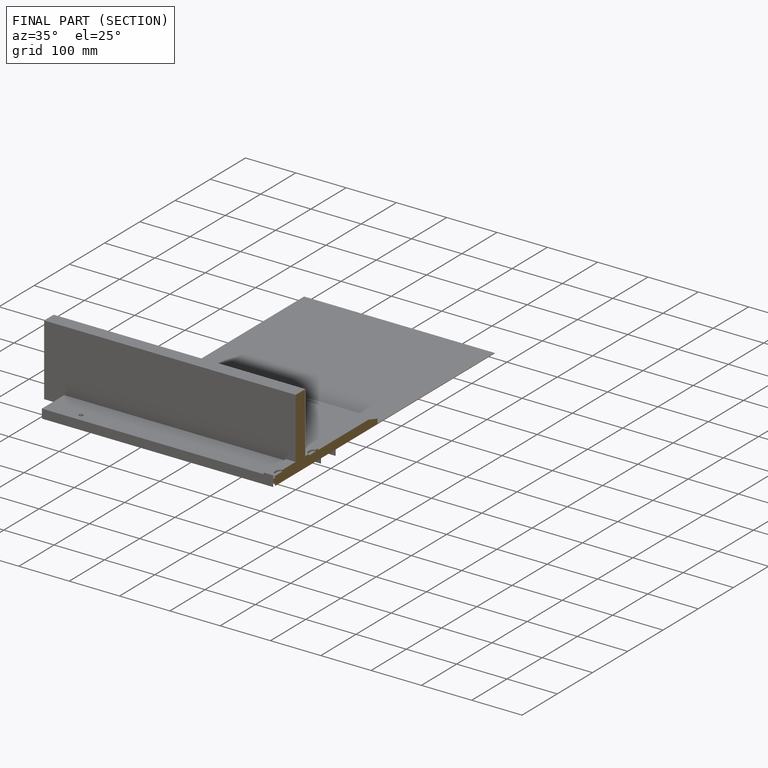
[diagram: finished part — half-section view (interior)]
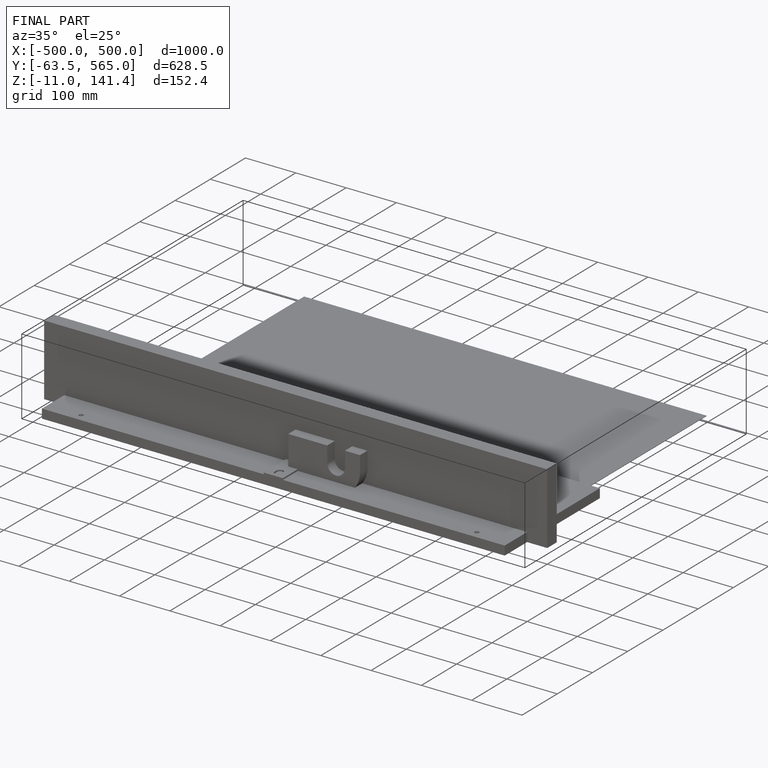
[diagram: finished part — iso view with bounding-box wireframe]
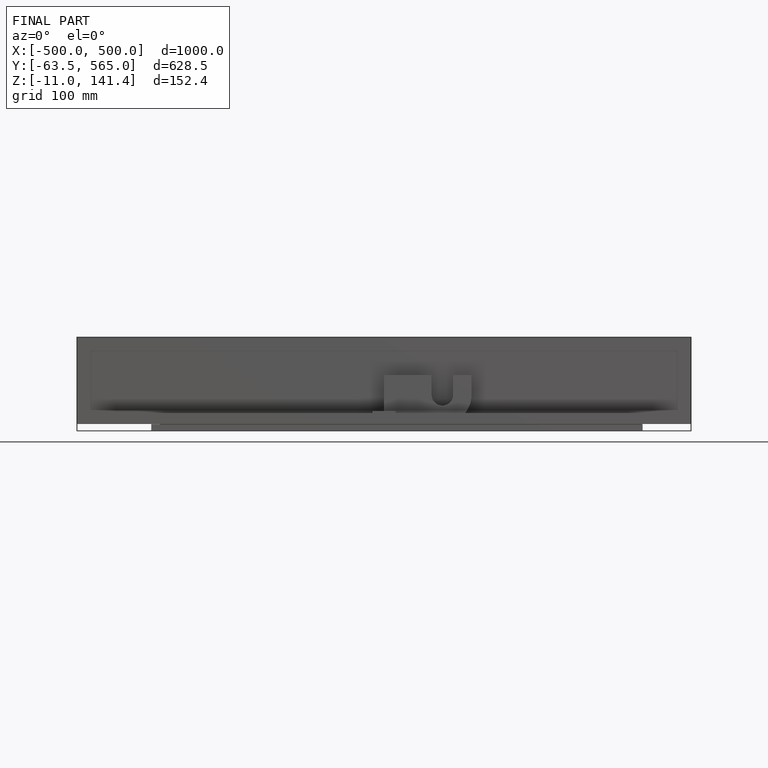
[diagram: finished part — front view with bounding-box wireframe]
